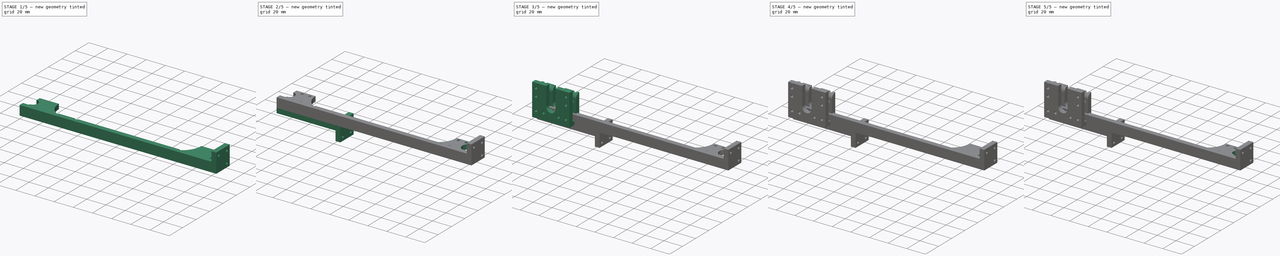
[diagram: build sequence overview — one tinted view per stage of 5, left to right]
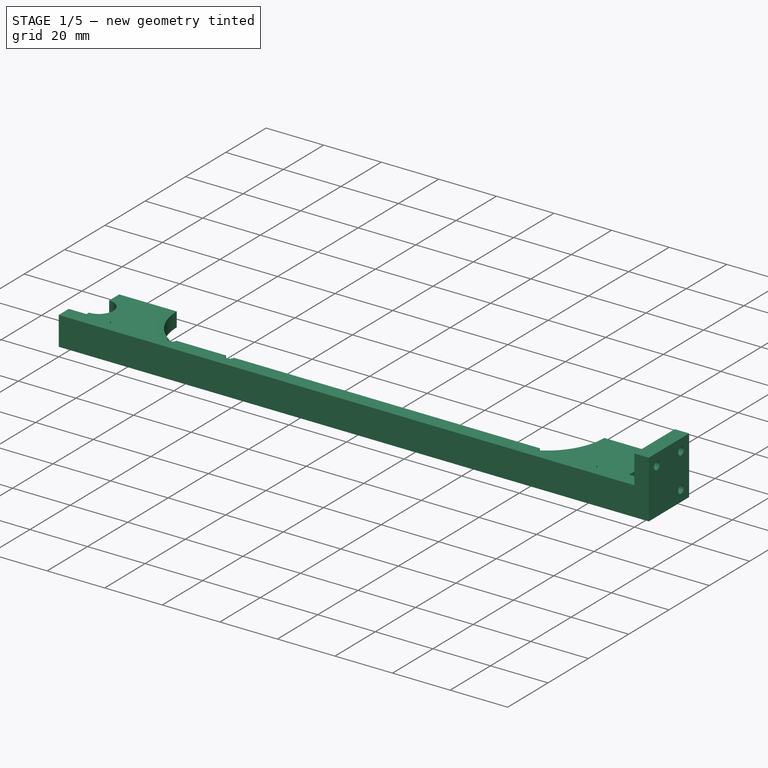
[diagram: stage 1 of 5 — iso view after this stage's code; geometry added in this stage tinted green]
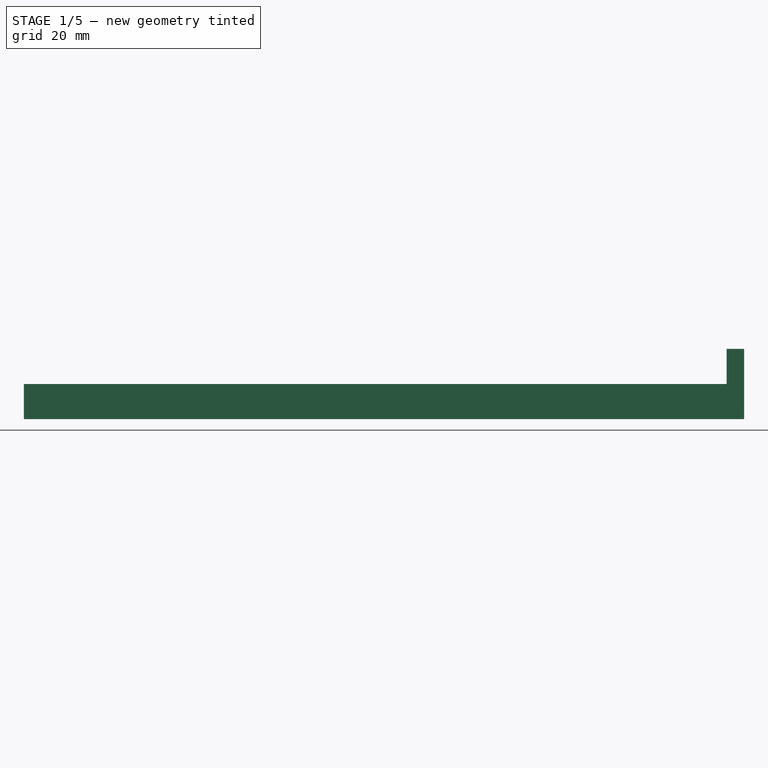
[diagram: stage 1 of 5 — front view after this stage's code; geometry added in this stage tinted green]
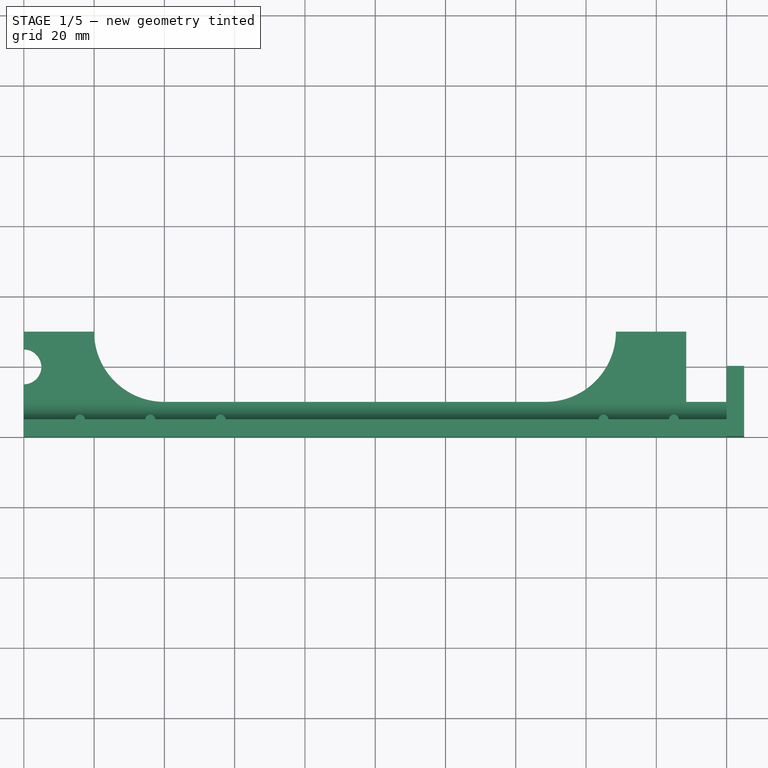
[diagram: stage 1 of 5 — top view after this stage's code; geometry added in this stage tinted green]
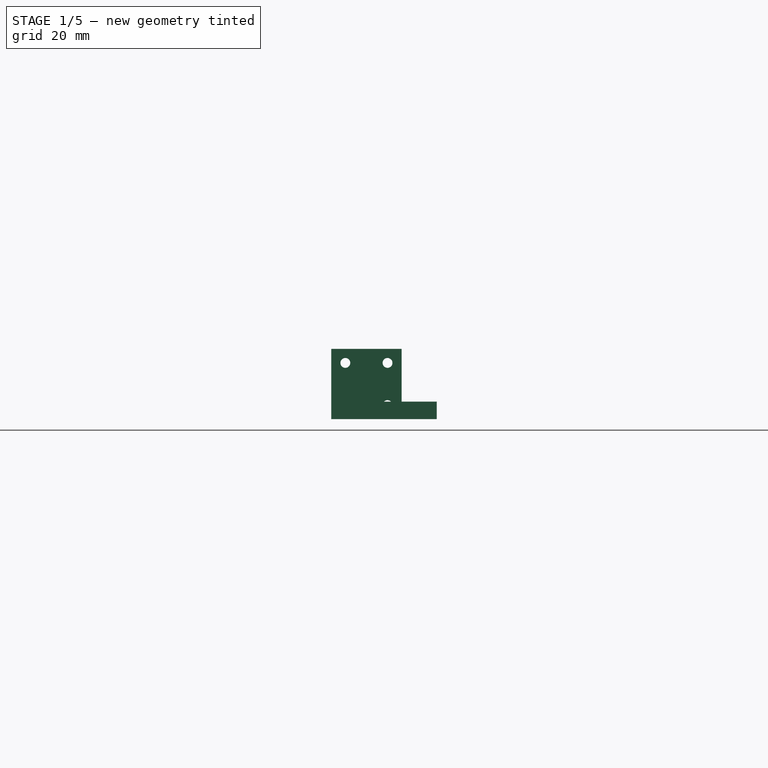
[diagram: stage 1 of 5 — right view after this stage's code; geometry added in this stage tinted green]
FCSTD DOCUMENT  (FreeCAD 0.20R29177 +426 (Git))
Label: kitchenCupHolderLineSupport
License: All rights reserved
LicenseURL: http://en.wikipedia.org/wiki/All_rights_reserved
objects: Sketcher::SketchObject×36, PartDesign::Pad×22, PartDesign::Pocket×10, PartDesign::Body×8, Spreadsheet::Sheet×1
note: 108 computed .brp shape members not serialized (recipe doc carries the construction recipe); baked Part::Feature solids carry a one-line shape summary decoded from their .brp

FEATURE [PartDesign::Body] Body005  label="Body002Top001Small"
  Group = -> [Sketch023,Pad013,Sketch024,Pad014,Sketch025,Pocket007,Sketch026,Pad015]
  Origin = -> Origin005
  Placement = pos=(-188.5,0,5) rot=(0,1,0;3.14159rad)
  Tip = -> Pad015
  expr: .Placement.Base.x = -Spreadsheet.midHeight
  expr: .Placement.Base.z = Spreadsheet.pad
FEATURE [Sketcher::SketchObject] Sketch029
  FullyConstrained = true
  MapMode = 5
  Placement = pos=(0,0,0) rot=(0.57735,0.57735,0.57735;2.0944rad)
  Support = -> [YZ_Plane006]
  expr: Constraints[5] = Spreadsheet.pad
  expr: Constraints[6] = Spreadsheet.pad
  expr: Constraints[7] = Spreadsheet.pad
  sketch-geometry (3):
    g0: LineSegment StartX=5 StartY=5 StartZ=0 EndX=10 EndY=5 EndZ=0
    g1: LineSegment StartX=5 StartY=10 StartZ=0 EndX=5 EndY=5 EndZ=0
    g2: ArcOfCircle CenterX=10 CenterY=10 CenterZ=0 NormalX=0 NormalY=0 NormalZ=1 AngleXU=0 Radius=5 StartAngle=3.14159 EndAngle=4.71239
  constraints (8):
    c: Coincident(g1,g0)
    c: Horizontal(g0)
    c: Vertical(g1)
    c: Tangent(g2,g1) = -1.5708
    c: Tangent(g0,g2) = -1.5708
    c: DistanceY(g-1,g0) = 5
    c: DistanceX(g-1,g0) = 5
    c: Radius(g2) = 5
FEATURE [Sketcher::SketchObject] Sketch030  label="Sketch003_BaseShape002"
  FullyConstrained = true
  MapMode = 5
  Support = -> [XY_Plane006]
  expr: Constraints[101] = Spreadsheet.screwHoleToEdgeX
  expr: Constraints[102] = Spreadsheet.screwHoleToEdge
  expr: Constraints[103] = Spreadsheet.screwHoleToEdgeX
  expr: Constraints[104] = Spreadsheet.screwHoleToEdge
  expr: Constraints[10] = Spreadsheet.width
  expr: Constraints[110] = Spreadsheet.screwHoleToEdgeX * 2
  expr: Constraints[116] = Spreadsheet.screwHoleToEdgeX * 2
  expr: Constraints[20] = Spreadsheet.RodSupportWidth
  expr: Constraints[21] = Spreadsheet.RodSupportWidth
  expr: Constraints[31] = Spreadsheet.RodSupportWidth
  expr: Constraints[32] = Spreadsheet.RodSupportWidth
  expr: Constraints[34] = Spreadsheet.bigRodR
  expr: Constraints[36] = Spreadsheet.smallRodR
  expr: Constraints[37] = Spreadsheet.RodSupportWidth / 2
  expr: Constraints[41] = Spreadsheet.m3ScrewRTight
  expr: Constraints[49] = Spreadsheet.width / 2
  expr: Constraints[9] = Spreadsheet.midHeight
  sketch-geometry (44):
    g0: LineSegment StartX=0 StartY=0 StartZ=0 EndX=188.5 EndY=0 EndZ=0
    g1: LineSegment StartX=188.5 StartY=0 StartZ=0 EndX=188.5 EndY=10 EndZ=0
    g2: LineSegment StartX=188.5 StartY=10 StartZ=0 EndX=0 EndY=10 EndZ=0
    g3: LineSegment StartX=0 StartY=10 StartZ=0 EndX=0 EndY=0 EndZ=0
    g4: LineSegment StartX=0 StartY=10 StartZ=0 EndX=20 EndY=10 EndZ=0
    g5: LineSegment StartX=20 StartY=10 StartZ=0 EndX=20 EndY=30 EndZ=0
    g6: LineSegment StartX=20 StartY=30 StartZ=0 EndX=0 EndY=30 EndZ=0
    g7: LineSegment StartX=0 StartY=30 StartZ=0 EndX=0 EndY=10 EndZ=0
    g8: LineSegment StartX=20 StartY=10 StartZ=0 EndX=40 EndY=10 EndZ=0
    g9: LineSegment StartX=40 StartY=10 StartZ=0 EndX=40 EndY=30 EndZ=0
    g10: LineSegment StartX=40 StartY=30 StartZ=0 EndX=20 EndY=30 EndZ=0
    g11: LineSegment StartX=20 StartY=30 StartZ=0 EndX=20 EndY=10 EndZ=0
    g12: Circle CenterX=0 CenterY=20 CenterZ=0 NormalX=0 NormalY=0 NormalZ=1 AngleXU=0 Radius=7
    g13: Circle CenterX=0 CenterY=20 CenterZ=0 NormalX=0 NormalY=0 NormalZ=1 AngleXU=0 Radius=5
    g14: LineSegment StartX=0 StartY=20 StartZ=0 EndX=40 EndY=20 EndZ=0
    g15: Circle CenterX=5 CenterY=27 CenterZ=0 NormalX=0 NormalY=0 NormalZ=1 AngleXU=0 Radius=1.4
    g16: LineSegment StartX=5 StartY=27 StartZ=0 EndX=5 EndY=30 EndZ=0
    g17: LineSegment StartX=5 StartY=27 StartZ=0 EndX=5 EndY=13 EndZ=0
    g18: LineSegment StartX=5 StartY=13 StartZ=0 EndX=5 EndY=5 EndZ=0
    g19: LineSegment StartX=5 StartY=5 StartZ=0 EndX=183.5 EndY=5 EndZ=0
    g20: LineSegment StartX=183.5 StartY=5 StartZ=0 EndX=188.5 EndY=5 EndZ=0
    g21: GeomPoint X=94.25 Y=5 Z=0
    g22: GeomPoint X=49.625 Y=5 Z=0
    g23: GeomPoint X=138.875 Y=5 Z=0
    g24: LineSegment StartX=49.625 StartY=5 StartZ=0 EndX=49.625 EndY=0 EndZ=0
    g25: LineSegment StartX=138.875 StartY=5 StartZ=0 EndX=138.875 EndY=0 EndZ=0
    g26: LineSegment StartX=188.5 StartY=10 StartZ=0 EndX=168.5 EndY=10 EndZ=0
    g27: LineSegment StartX=168.5 StartY=10 StartZ=0 EndX=168.5 EndY=30 EndZ=0
    g28: LineSegment StartX=168.5 StartY=30 StartZ=0 EndX=188.5 EndY=30 EndZ=0
    g29: LineSegment StartX=188.5 StartY=30 StartZ=0 EndX=188.5 EndY=10 EndZ=0
    g30: LineSegment StartX=168.5 StartY=30 StartZ=0 EndX=148.5 EndY=30 EndZ=0
    g31: LineSegment StartX=148.5 StartY=30 StartZ=0 EndX=148.5 EndY=10 EndZ=0
    g32: LineSegment StartX=148.5 StartY=10 StartZ=0 EndX=168.5 EndY=10 EndZ=0
    g33: LineSegment StartX=168.5 StartY=10 StartZ=0 EndX=168.5 EndY=30 EndZ=0
    g34: LineSegment StartX=40 StartY=20 StartZ=0 EndX=188.5 EndY=20 EndZ=0
    g35: Circle CenterX=188.5 CenterY=20 CenterZ=0 NormalX=0 NormalY=0 NormalZ=1 AngleXU=0 Radius=7
    g36: Circle CenterX=188.5 CenterY=20 CenterZ=0 NormalX=0 NormalY=0 NormalZ=1 AngleXU=0 Radius=5
    g37: LineSegment StartX=183.5 StartY=5 StartZ=0 EndX=183.5 EndY=27 EndZ=0
    g38: LineSegment StartX=183.5 StartY=27 StartZ=0 EndX=183.5 EndY=30 EndZ=0
    g39: LineSegment StartX=5 StartY=13 StartZ=0 EndX=183.5 EndY=13 EndZ=0
    g40: LineSegment StartX=15 StartY=27 StartZ=0 EndX=15 EndY=13 EndZ=0
    g41: LineSegment StartX=15 StartY=27 StartZ=0 EndX=5 EndY=27 EndZ=0
    g42: LineSegment StartX=183.5 StartY=27 StartZ=0 EndX=173.5 EndY=27 EndZ=0
    g43: LineSegment StartX=173.5 StartY=27 StartZ=0 EndX=173.5 EndY=13 EndZ=0
  constraints (117):
    c: Coincident(g0,g1)
    c: Coincident(g1,g2)
    c: Coincident(g2,g3)
    c: Coincident(g3,g0)
    c: Horizontal(g0)
    c: Horizontal(g2)
    c: Vertical(g1)
    c: Vertical(g3)
    c: Coincident(g0,g-1)
    c: DistanceX(g2,g2) = 188.5
    c: DistanceY(g1,g1) = 10
    c: Coincident(g4,g5)
    c: Coincident(g5,g6)
    c: Coincident(g6,g7)
    c: Coincident(g7,g4)
    c: Horizontal(g4)
    c: Horizontal(g6)
    c: Vertical(g5)
    c: Vertical(g7)
    c: Coincident(g4,g2)
    c: DistanceX(g6,g6) = 20
    c: DistanceY(g5,g5) = 20
    c: Coincident(g8,g9)
    c: Coincident(g9,g10)
    c: Coincident(g10,g11)
    c: Coincident(g11,g8)
    c: Horizontal(g8)
    c: Horizontal(g10)
    c: Vertical(g9)
    c: Vertical(g11)
    c: Coincident(g8,g4)
    c: DistanceX(g10,g10) = 20
    c: DistanceY(g9,g9) = 20
    c: PointOnObject(g12,g7)
    c: Radius(g12) = 7
    c: Coincident(g13,g12)
    c: Radius(g13) = 5
    c: DistanceY(g12,g6) = 10
    c: Coincident(g14,g12)
    c: PointOnObject(g14,g9)
    c: Horizontal(g14)
    c: Radius(g15) = 1.4
    c: Coincident(g16,g15)
    c: PointOnObject(g16,g6)
    c: Vertical(g16)
    c: Coincident(g17,g15)
    c: Symmetric(g15,g17,g14)
    c: Coincident(g18,g17)
    c: Vertical(g18)
    c: DistanceY(g0,g18) = 5
    c: Coincident(g19,g18)
    c: Horizontal(g19)
    c: Coincident(g20,g19)
    c: PointOnObject(g20,g1)
    c: Horizontal(g20)
    c: Symmetric(g18,g19,g21)
    c: Symmetric(g18,g21,g22)
    c: Symmetric(g21,g19,g23)
    c: Coincident(g24,g22)
    c: PointOnObject(g24,g0)
    c: Vertical(g24)
    c: Coincident(g25,g23)
    c: PointOnObject(g25,g0)
    c: Vertical(g25)
    c: Coincident(g26,g27)
    c: Coincident(g27,g28)
    c: Coincident(g28,g29)
    c: Coincident(g29,g26)
    c: Horizontal(g26)
    c: Horizontal(g28)
    c: Vertical(g27)
    c: Vertical(g29)
    c: Coincident(g26,g1)
    c: Equal(g28,g10)
    c: Equal(g27,g9)
    c: Coincident(g30,g31)
    c: Coincident(g31,g32)
    c: Coincident(g32,g33)
    c: Coincident(g33,g30)
    c: Horizontal(g30)
    c: Horizontal(g32)
    c: Vertical(g31)
    c: Vertical(g33)
    c: Coincident(g30,g27)
    c: PointOnObject(g31,g2)
    c: Equal(g30,g10)
    c: Coincident(g34,g14)
    c: PointOnObject(g34,g29)
    c: Horizontal(g34)
    c: Coincident(g35,g34)
    c: Coincident(g36,g34)
    c: Equal(g13,g36)
    c: Equal(g35,g12)
    c: Coincident(g37,g19)
    c: Vertical(g37)
    c: Coincident(g38,g37)
    c: PointOnObject(g38,g28)
    c: Vertical(g38)
    c: Coincident(g39,g17)
    c: PointOnObject(g39,g37)
    c: Horizontal(g39)
    c: DistanceX(g6,g16) = 5
    c: DistanceY(g15,g6) = 3
    c: DistanceX(g38,g28) = 5
    c: DistanceY(g38,g38) = 3
    c: PointOnObject(g40,g39)
    c: Vertical(g40)
    c: Coincident(g41,g40)
    c: Coincident(g41,g15)
    c: Horizontal(g41)
    c: DistanceX(g41,g41) = 10
    c: Coincident(g42,g37)
    c: Horizontal(g42)
    c: Coincident(g43,g42)
    c: PointOnObject(g43,g39)
    c: Vertical(g43)
    c: DistanceX(g42,g42) = 10
FEATURE [Sketcher::SketchObject] Sketch027
  ExternalGeometry = -> [Sketch030]
  FullyConstrained = true
  MapMode = 5
  Support = -> [XY_Plane006]
  expr: Constraints[11] = Spreadsheet.smallRodR
  expr: Constraints[12] = Spreadsheet.RodSupportWidth / 2
  expr: Constraints[14] = Spreadsheet.RodSupportWidth + Spreadsheet.width
  expr: Constraints[17] = Spreadsheet.RodSupportWidth
  expr: Constraints[6] = Spreadsheet.RodSupportWidth
  sketch-geometry (10):
    g0: LineSegment StartX=40 StartY=10 StartZ=0 EndX=148.5 EndY=10 EndZ=0
    g1: LineSegment StartX=188.5 StartY=0 StartZ=0 EndX=0 EndY=0 EndZ=0
    g2: LineSegment StartX=-9e-16 StartY=0 StartZ=0 EndX=-9e-16 EndY=15 EndZ=0
    g3: LineSegment StartX=20 StartY=30 StartZ=0 EndX=0 EndY=30 EndZ=0
    g4: ArcOfCircle CenterX=0 CenterY=20 CenterZ=0 NormalX=0 NormalY=0 NormalZ=1 AngleXU=0 Radius=5 StartAngle=4.71239 EndAngle=7.85398
    g5: LineSegment StartX=0 StartY=25 StartZ=0 EndX=0 EndY=30 EndZ=0
    g6: ArcOfCircle CenterX=40 CenterY=30 CenterZ=0 NormalX=0 NormalY=0 NormalZ=1 AngleXU=0 Radius=20 StartAngle=3.14159 EndAngle=4.71239
    g7: LineSegment StartX=188.5 StartY=30 StartZ=0 EndX=168.5 EndY=30 EndZ=0
    g8: LineSegment StartX=188.5 StartY=0 StartZ=0 EndX=188.5 EndY=30 EndZ=0
    g9: ArcOfCircle CenterX=148.5 CenterY=30 CenterZ=0 NormalX=0 NormalY=0 NormalZ=1 AngleXU=0 Radius=20 StartAngle=4.71239 EndAngle=6.28319
  constraints (26):
    c: Coincident(g1,g2)
    c: Horizontal(g0)
    c: Vertical(g2)
    c: PointOnObject(g5,g-2)
    c: Horizontal(g3)
    c: Coincident(g5,g3)
    c: DistanceX(g3,g3) = 20
    c: PointOnObject(g4,g2)
    c: Coincident(g2,g4)
    c: Coincident(g5,g4)
    c: Vertical(g5)
    c: Radius(g4) = 5
    c: DistanceY(g4,g3) = 10
    c: Coincident(g1,g-1)
    c: DistanceY(g1,g6) = 30
    c: Tangent(g6,g0) = -1.5708
    c: Coincident(g6,g3)
    c: DistanceY(g-3,g3) = 20
    c: Coincident(g8,g1)
    c: Coincident(g8,g7)
    c: Coincident(g1,g-3)
    c: Coincident(g7,g-5)
    c: Coincident(g9,g-6)
    c: Tangent(g9,g0) = -1.5708
    c: Coincident(g7,g9)
    c: Coincident(g7,g-5)
FEATURE [PartDesign::Pad] Pad016
  Direction = (0,0,1)
  Length = 5
  Length2 = 10
  Profile = -> Sketch027
  ReferenceAxis = -> Sketch027 [N_Axis]
  Type = 0
  expr: Length = Spreadsheet.pad
FEATURE [PartDesign::Body] Body006  label="Body001Mid001Small"
  Group = -> [Sketch027,Pad016,Sketch028,Pad017,Sketch029,Pad018,Sketch030,Sketch031,Pocket008]
  Origin = -> Origin006
  Placement = pos=(-188.5,0,0) rot=(0,0,1;0rad)
  Tip = -> Pocket008
  expr: .Placement.Base.x = -Spreadsheet.midHeight
  expr: .Placement.Base.z = 0
FEATURE [Sketcher::SketchObject] Sketch032
  FullyConstrained = true
  MapMode = 5
  Support = -> [XY_Plane007]
  expr: Constraints[12] = Spreadsheet.RodSupportWidth
  expr: Constraints[17] = Spreadsheet.bigRodR
  expr: Constraints[18] = Spreadsheet.RodSupportWidth / 2
  expr: Constraints[20] = Spreadsheet.RodSupportWidth + Spreadsheet.width
  expr: Constraints[23] = Spreadsheet.RodSupportWidth
  expr: Constraints[8] = Spreadsheet.bottomHeight
  expr: Constraints[9] = Spreadsheet.width
  sketch-geometry (8):
    g0: LineSegment StartX=40 StartY=10 StartZ=0 EndX=205 EndY=10 EndZ=0
    g1: LineSegment StartX=205 StartY=10 StartZ=0 EndX=205 EndY=0 EndZ=0
    g2: LineSegment StartX=205 StartY=0 StartZ=0 EndX=2.84e-14 EndY=0 EndZ=0
    g3: LineSegment StartX=1.74e-14 StartY=0 StartZ=0 EndX=1.74e-14 EndY=13 EndZ=0
    g4: LineSegment StartX=20 StartY=30 StartZ=0 EndX=0 EndY=30 EndZ=0
    g5: ArcOfCircle CenterX=0 CenterY=20 CenterZ=0 NormalX=0 NormalY=0 NormalZ=1 AngleXU=0 Radius=7 StartAngle=4.71239 EndAngle=7.85398
    g6: LineSegment StartX=0 StartY=27 StartZ=0 EndX=0 EndY=30 EndZ=0
    g7: ArcOfCircle CenterX=40 CenterY=30 CenterZ=0 NormalX=0 NormalY=0 NormalZ=1 AngleXU=0 Radius=20 StartAngle=3.14159 EndAngle=4.71239
  constraints (24):
    c: Coincident(g0,g1)
    c: Coincident(g1,g2)
    c: Coincident(g2,g3)
    c: Horizontal(g0)
    c: Horizontal(g2)
    c: Vertical(g1)
    c: Vertical(g3)
    c: PointOnObject(g6,g-2)
    c: DistanceX(g2,g2) = 205
    c: DistanceY(g1,g1) = 10
    c: Horizontal(g4)
    c: Coincident(g6,g4)
    c: DistanceX(g4,g4) = 20
    c: PointOnObject(g5,g3)
    c: Coincident(g3,g5)
    c: Coincident(g6,g5)
    c: Vertical(g6)
    c: Radius(g5) = 7
    c: DistanceY(g5,g4) = 10
    c: Coincident(g2,g-1)
    c: DistanceY(g2,g7) = 30
    c: Tangent(g7,g0) = -1.5708
    c: Coincident(g7,g4)
    c: DistanceY(g0,g4) = 20
FEATURE [PartDesign::Pad] Pad019
  Direction = (0,0,1)
  Length = 5
  Length2 = 10
  Profile = -> Sketch032
  ReferenceAxis = -> Sketch032 [N_Axis]
  Type = 0
  expr: Length = Spreadsheet.pad
FEATURE [Sketcher::SketchObject] Sketch033
  AttachmentOffset = pos=(0,0,5) rot=(0,0,1;0rad)
  FullyConstrained = true
  MapMode = 5
  Placement = pos=(0,0,5) rot=(0,0,1;0rad)
  Support = -> [XY_Plane007]
  expr: .AttachmentOffset.Base.z = Spreadsheet.pad
  expr: Constraints[10] = Spreadsheet.bottomHeight
  expr: Constraints[9] = Spreadsheet.pad
  sketch-geometry (4):
    g0: LineSegment StartX=0 StartY=0 StartZ=0 EndX=205 EndY=0 EndZ=0
    g1: LineSegment StartX=205 StartY=0 StartZ=0 EndX=205 EndY=5 EndZ=0
    g2: LineSegment StartX=205 StartY=5 StartZ=0 EndX=0 EndY=5 EndZ=0
    g3: LineSegment StartX=0 StartY=5 StartZ=0 EndX=0 EndY=0 EndZ=0
  constraints (11):
    c: Coincident(g0,g1)
    c: Coincident(g1,g2)
    c: Coincident(g2,g3)
    c: Coincident(g3,g0)
    c: Horizontal(g0)
    c: Horizontal(g2)
    c: Vertical(g1)
    c: Vertical(g3)
    c: Coincident(g0,g-1)
    c: DistanceY(g1,g1) = 5
    c: DistanceX(g2,g2) = 205
FEATURE [PartDesign::Pad] Pad020
  BaseFeature = -> Pad019
  Direction = (0,0,1)
  Length = 5
  Length2 = 10
  Profile = -> Sketch033
  ReferenceAxis = -> Sketch033 [N_Axis]
  Type = 0
  expr: Length = Spreadsheet.pad
FEATURE [Sketcher::SketchObject] Sketch034
  FullyConstrained = true
  MapMode = 5
  Placement = pos=(0,0,0) rot=(0.57735,0.57735,0.57735;2.0944rad)
  Support = -> [YZ_Plane007]
  expr: Constraints[5] = Spreadsheet.pad
  expr: Constraints[6] = Spreadsheet.pad
  expr: Constraints[7] = Spreadsheet.pad
  sketch-geometry (3):
    g0: LineSegment StartX=5 StartY=5 StartZ=0 EndX=10 EndY=5 EndZ=0
    g1: LineSegment StartX=5 StartY=10 StartZ=0 EndX=5 EndY=5 EndZ=0
    g2: ArcOfCircle CenterX=10 CenterY=10 CenterZ=0 NormalX=0 NormalY=0 NormalZ=1 AngleXU=0 Radius=5 StartAngle=3.14159 EndAngle=4.71239
  constraints (8):
    c: Coincident(g1,g0)
    c: Horizontal(g0)
    c: Vertical(g1)
    c: Tangent(g2,g1) = -1.5708
    c: Tangent(g0,g2) = -1.5708
    c: DistanceY(g-1,g0) = 5
    c: DistanceX(g-1,g0) = 5
    c: Radius(g2) = 5
FEATURE [PartDesign::Pad] Pad021
  BaseFeature = -> Pad020
  Direction = (1,-2e-16,3e-16)
  Length = 205
  Length2 = 10
  Profile = -> Sketch034
  ReferenceAxis = -> Sketch034 [N_Axis]
  Type = 0
  expr: Length = Spreadsheet.bottomHeight
FEATURE [Sketcher::SketchObject] Sketch035  label="Sketch003_BaseShape003"
  FullyConstrained = false
  MapMode = 5
  Support = -> [XY_Plane007]
  expr: Constraints[10] = Spreadsheet.width
  expr: Constraints[20] = Spreadsheet.RodSupportWidth
  expr: Constraints[21] = Spreadsheet.RodSupportWidth
  expr: Constraints[31] = Spreadsheet.RodSupportWidth
  expr: Constraints[32] = Spreadsheet.RodSupportWidth
  expr: Constraints[34] = Spreadsheet.bigRodR
  expr: Constraints[36] = Spreadsheet.smallRodR
  expr: Constraints[37] = Spreadsheet.RodSupportWidth / 2
  expr: Constraints[46] = Spreadsheet.screwHoleToEdgeX
  expr: Constraints[49] = Spreadsheet.width / 2
  expr: Constraints[9] = Spreadsheet.bottomHeight
  sketch-geometry (26):
    g0: LineSegment StartX=0 StartY=0 StartZ=0 EndX=205 EndY=0 EndZ=0
    g1: LineSegment StartX=205 StartY=0 StartZ=0 EndX=205 EndY=10 EndZ=0
    g2: LineSegment StartX=205 StartY=10 StartZ=0 EndX=0 EndY=10 EndZ=0
    g3: LineSegment StartX=0 StartY=10 StartZ=0 EndX=0 EndY=0 EndZ=0
    g4: LineSegment StartX=0 StartY=10 StartZ=0 EndX=20 EndY=10 EndZ=0
    g5: LineSegment StartX=20 StartY=10 StartZ=0 EndX=20 EndY=30 EndZ=0
    g6: LineSegment StartX=20 StartY=30 StartZ=0 EndX=0 EndY=30 EndZ=0
    g7: LineSegment StartX=0 StartY=30 StartZ=0 EndX=0 EndY=10 EndZ=0
    g8: LineSegment StartX=20 StartY=10 StartZ=0 EndX=40 EndY=10 EndZ=0
    g9: LineSegment StartX=40 StartY=10 StartZ=0 EndX=40 EndY=30 EndZ=0
    g10: LineSegment StartX=40 StartY=30 StartZ=0 EndX=20 EndY=30 EndZ=0
    g11: LineSegment StartX=20 StartY=30 StartZ=0 EndX=20 EndY=10 EndZ=0
    g12: Circle CenterX=0 CenterY=20 CenterZ=0 NormalX=0 NormalY=0 NormalZ=1 AngleXU=0 Radius=7
    g13: Circle CenterX=0 CenterY=20 CenterZ=0 NormalX=0 NormalY=0 NormalZ=1 AngleXU=0 Radius=5
    g14: LineSegment StartX=0 StartY=20 StartZ=0 EndX=40 EndY=20 EndZ=0
    g15: LineSegment StartX=5 StartY=28.0263 StartZ=0 EndX=0 EndY=28.0263 EndZ=0
    g16: LineSegment StartX=5 StartY=25 StartZ=0 EndX=5 EndY=30 EndZ=0
    g17: LineSegment StartX=5 StartY=25 StartZ=0 EndX=5 EndY=15 EndZ=0
    g18: LineSegment StartX=5 StartY=15 StartZ=0 EndX=5 EndY=5 EndZ=0
    g19: LineSegment StartX=5 StartY=5 StartZ=0 EndX=200 EndY=5 EndZ=0
    g20: LineSegment StartX=200 StartY=5 StartZ=0 EndX=205 EndY=5 EndZ=0
    g21: GeomPoint X=102.5 Y=5 Z=0
    g22: GeomPoint X=53.75 Y=5 Z=0
    g23: GeomPoint X=151.25 Y=5 Z=0
    g24: LineSegment StartX=53.75 StartY=5 StartZ=0 EndX=53.75 EndY=0 EndZ=0
    g25: LineSegment StartX=151.25 StartY=5 StartZ=0 EndX=151.25 EndY=0 EndZ=0
  constraints (65):
    c: Coincident(g0,g1)
    c: Coincident(g1,g2)
    c: Coincident(g2,g3)
    c: Coincident(g3,g0)
    c: Horizontal(g0)
    c: Horizontal(g2)
    c: Vertical(g1)
    c: Vertical(g3)
    c: Coincident(g0,g-1)
    c: DistanceX(g2,g2) = 205
    c: DistanceY(g1,g1) = 10
    c: Coincident(g4,g5)
    c: Coincident(g5,g6)
    c: Coincident(g6,g7)
    c: Coincident(g7,g4)
    c: Horizontal(g4)
    c: Horizontal(g6)
    c: Vertical(g5)
    c: Vertical(g7)
    c: Coincident(g4,g2)
    c: DistanceX(g6,g6) = 20
    c: DistanceY(g5,g5) = 20
    c: Coincident(g8,g9)
    c: Coincident(g9,g10)
    c: Coincident(g10,g11)
    c: Coincident(g11,g8)
    c: Horizontal(g8)
    c: Horizontal(g10)
    c: Vertical(g9)
    c: Vertical(g11)
    c: Coincident(g8,g4)
    c: DistanceX(g10,g10) = 20
    c: DistanceY(g9,g9) = 20
    c: PointOnObject(g12,g7)
    c: Radius(g12) = 7
    c: Coincident(g13,g12)
    c: Radius(g13) = 5
    c: DistanceY(g12,g6) = 10
    c: Coincident(g14,g12)
    c: PointOnObject(g14,g9)
    c: Horizontal(g14)
    c: PointOnObject(g15,g7)
    c: Horizontal(g15)
    c: PointOnObject(g16,g6)
    c: Vertical(g16)
    c: Equal(g16,g15)
    c: DistanceX(g15,g15) = 5
    c: Coincident(g18,g17)
    c: Vertical(g18)
    c: DistanceY(g0,g18) = 5
    c: Coincident(g19,g18)
    c: Horizontal(g19)
    c: Coincident(g20,g19)
    c: PointOnObject(g20,g1)
    c: Horizontal(g20)
    c: Equal(g20,g15)
    c: Symmetric(g18,g19,g21)
    c: Symmetric(g18,g21,g22)
    c: Symmetric(g21,g19,g23)
    c: Coincident(g24,g22)
    c: PointOnObject(g24,g0)
    c: Vertical(g24)
    c: Coincident(g25,g23)
    c: PointOnObject(g25,g0)
    c: Vertical(g25)
FEATURE [Sketcher::SketchObject] Sketch036
  FullyConstrained = true
  MapMode = 5
  Support = -> [XY_Plane007]
  expr: Constraints[14] = Spreadsheet.totalRodSideSupportWidth
  expr: Constraints[16] = Spreadsheet.m3ScrewRTight
  expr: Constraints[18] = Spreadsheet.toLastScrewHole
  expr: Constraints[19] = Spreadsheet.toSecondScrewHole
  expr: Constraints[21] = Spreadsheet.screwInBetween
  expr: Constraints[37] = Spreadsheet.onLongSupportHoleBetween
  expr: Constraints[38] = Spreadsheet.onLongSupportHoleBetween
  expr: Constraints[3] = Spreadsheet.toBaseScrewHole
  expr: Constraints[41] = Spreadsheet.bottomHeight
  expr: Constraints[46] = Spreadsheet.onLongSupportHoleBetween
  expr: Constraints[47] = Spreadsheet.onLongSupportHoleBetween
  expr: Constraints[4] = Spreadsheet.screwHoleToEdgeXBigHoleSide
  sketch-geometry (20):
    g0: Circle CenterX=8 CenterY=27 CenterZ=0 NormalX=0 NormalY=0 NormalZ=1 AngleXU=0 Radius=1.4
    g1: Circle CenterX=8 CenterY=5 CenterZ=0 NormalX=0 NormalY=0 NormalZ=1 AngleXU=0 Radius=1.4
    g2: LineSegment StartX=8 StartY=27 StartZ=0 EndX=8 EndY=5 EndZ=0
    g3: LineSegment StartX=8 StartY=27 StartZ=0 EndX=16 EndY=27 EndZ=0
    g4: LineSegment StartX=16 StartY=27 StartZ=0 EndX=16 EndY=13 EndZ=0
    g5: LineSegment StartX=16 StartY=13 StartZ=0 EndX=8 EndY=13 EndZ=0
    g6: LineSegment StartX=0 StartY=0 StartZ=0 EndX=0 EndY=30 EndZ=0
    g7: Circle CenterX=8 CenterY=13 CenterZ=0 NormalX=0 NormalY=0 NormalZ=1 AngleXU=0 Radius=1.4
    g8: Circle CenterX=16 CenterY=27 CenterZ=0 NormalX=0 NormalY=0 NormalZ=1 AngleXU=0 Radius=1.4
    g9: Circle CenterX=16 CenterY=13 CenterZ=0 NormalX=0 NormalY=0 NormalZ=1 AngleXU=0 Radius=1.4
    g10: LineSegment StartX=16 StartY=13 StartZ=0 EndX=16 EndY=5 EndZ=0
    g11: LineSegment StartX=8 StartY=5 StartZ=0 EndX=16 EndY=5 EndZ=0
    g12: Circle CenterX=16 CenterY=5 CenterZ=0 NormalX=0 NormalY=0 NormalZ=1 AngleXU=0 Radius=1.4
    g13: LineSegment StartX=16 StartY=5 StartZ=0 EndX=36 EndY=5 EndZ=0
    g14: LineSegment StartX=36 StartY=5 StartZ=0 EndX=56 EndY=5 EndZ=0
    g15: LineSegment StartX=56 StartY=5 StartZ=0 EndX=205 EndY=5 EndZ=0
    g16: Circle CenterX=36 CenterY=5 CenterZ=0 NormalX=0 NormalY=0 NormalZ=1 AngleXU=0 Radius=1.4
    g17: Circle CenterX=56 CenterY=5 CenterZ=0 NormalX=0 NormalY=0 NormalZ=1 AngleXU=0 Radius=1.4
    g18: Circle CenterX=185 CenterY=5 CenterZ=0 NormalX=0 NormalY=0 NormalZ=1 AngleXU=0 Radius=1.4
    g19: Circle CenterX=165 CenterY=5 CenterZ=0 NormalX=0 NormalY=0 NormalZ=1 AngleXU=0 Radius=1.4
  constraints (52):
    c: Coincident(g2,g0)
    c: Coincident(g2,g1)
    c: Vertical(g2)
    c: DistanceY(g-1,g1) = 5
    c: DistanceX(g-1,g0) = 8
    c: Coincident(g3,g0)
    c: Horizontal(g3)
    c: Coincident(g4,g3)
    c: Vertical(g4)
    c: Coincident(g5,g4)
    c: PointOnObject(g5,g2)
    c: Horizontal(g5)
    c: Coincident(g6,g-1)
    c: PointOnObject(g6,g-2)
    c: DistanceY(g6,g6) = 30
    c: Equal(g1,g0)
    c: Radius(g0) = 1.4
    c: Equal(g7,g0)
    c: DistanceY(g6,g0) = 27
    c: DistanceY(g6,g7) = 13
    c: Coincident(g5,g7)
    c: DistanceX(g3,g3) = 8
    c: Coincident(g8,g3)
    c: Coincident(g9,g4)
    c: Equal(g8,g0)
    c: Equal(g9,g0)
    c: Coincident(g10,g9)
    c: Vertical(g10)
    c: Coincident(g11,g1)
    c: Horizontal(g11)
    c: Coincident(g10,g11)
    c: Coincident(g12,g10)
    c: Equal(g12,g7)
    c: Coincident(g13,g12)
    c: Horizontal(g13)
    c: Coincident(g14,g13)
    c: Horizontal(g14)
    c: DistanceX(g13,g13) = 20
    c: DistanceX(g14,g14) = 20
    c: Coincident(g15,g14)
    c: Horizontal(g15)
    c: DistanceX(g6,g15) = 205
    c: Coincident(g16,g13)
    c: Coincident(g17,g14)
    c: PointOnObject(g18,g15)
    c: PointOnObject(g19,g15)
    c: DistanceX(g18,g15) = 20
    c: DistanceX(g19,g18) = 20
    c: Equal(g16,g0)
    c: Equal(g17,g0)
    c: Equal(g19,g0)
    c: Equal(g18,g0)
FEATURE [PartDesign::Pocket] Pocket009
  BaseFeature = -> Pad021
  Direction = (0,0,-1)
  Length = 5
  Length2 = 5
  Midplane = true
  Profile = -> Sketch036
  ReferenceAxis = -> Sketch036 [N_Axis]
  Type = 1
FEATURE [Sketcher::SketchObject] Sketch037
  AttachmentOffset = pos=(0,0,205) rot=(0,0,1;0rad)
  FullyConstrained = false
  MapMode = 5
  Placement = pos=(205,-4.55e-14,4.55e-14) rot=(0.57735,0.57735,0.57735;2.0944rad)
  Support = -> [YZ_Plane007]
  expr: .AttachmentOffset.Base.z = Spreadsheet.bottomHeight
  expr: Constraints[57] = Spreadsheet.m3ScrewRTight
  expr: Constraints[9] = Spreadsheet.footerSize
  sketch-geometry (25):
    g0: LineSegment StartX=0 StartY=0 StartZ=0 EndX=20 EndY=0 EndZ=0
    g1: LineSegment StartX=20 StartY=0 StartZ=0 EndX=20 EndY=20 EndZ=0
    g2: LineSegment StartX=20 StartY=20 StartZ=0 EndX=0 EndY=20 EndZ=0
    g3: LineSegment StartX=0 StartY=20 StartZ=0 EndX=0 EndY=0 EndZ=0
    g4: LineSegment StartX=8 StartY=12 StartZ=0 EndX=12 EndY=12 EndZ=0
    g5: LineSegment StartX=12 StartY=12 StartZ=0 EndX=12 EndY=8 EndZ=0
    g6: LineSegment StartX=12 StartY=8 StartZ=0 EndX=8 EndY=8 EndZ=0
    g7: LineSegment StartX=8 StartY=8 StartZ=0 EndX=8 EndY=12 EndZ=0
    g8: LineSegment StartX=8 StartY=12 StartZ=0 EndX=8 EndY=20 EndZ=0
    g9: LineSegment StartX=12 StartY=8 StartZ=0 EndX=20 EndY=8 EndZ=0
    g10: LineSegment StartX=8 StartY=8 StartZ=0 EndX=0 EndY=8 EndZ=0
    g11: LineSegment StartX=8 StartY=8 StartZ=0 EndX=8 EndY=0 EndZ=0
    g12: LineSegment StartX=8 StartY=16 StartZ=0 EndX=0 EndY=16 EndZ=0
    g13: LineSegment StartX=12 StartY=12 StartZ=0 EndX=12 EndY=20 EndZ=0
    g14: LineSegment StartX=12 StartY=16 StartZ=0 EndX=20 EndY=16 EndZ=0
    g15: LineSegment StartX=8 StartY=16 StartZ=0 EndX=12 EndY=16 EndZ=0
    g16: LineSegment StartX=16 StartY=8 StartZ=0 EndX=16 EndY=20 EndZ=0
    g17: LineSegment StartX=12 StartY=10 StartZ=0 EndX=20 EndY=10 EndZ=0
    g18: LineSegment StartX=4 StartY=16 StartZ=0 EndX=4 EndY=20 EndZ=0
    g19: Circle CenterX=4 CenterY=16 CenterZ=0 NormalX=0 NormalY=0 NormalZ=1 AngleXU=0 Radius=1.4
    g20: Circle CenterX=16 CenterY=16 CenterZ=0 NormalX=0 NormalY=0 NormalZ=1 AngleXU=0 Radius=1.4
    g21: LineSegment StartX=16 StartY=8 StartZ=0 EndX=16 EndY=0 EndZ=0
    g22: LineSegment StartX=20 StartY=4 StartZ=0 EndX=16 EndY=4 EndZ=0
    g23: Circle CenterX=16 CenterY=4 CenterZ=0 NormalX=0 NormalY=0 NormalZ=1 AngleXU=0 Radius=1.4
    g24: LineSegment StartX=9.84462 StartY=12 StartZ=0 EndX=9.84462 EndY=16 EndZ=0
  constraints (72):
    c: Coincident(g0,g1)
    c: Coincident(g1,g2)
    c: Coincident(g2,g3)
    c: Coincident(g3,g0)
    c: Horizontal(g0)
    c: Horizontal(g2)
    c: Vertical(g1)
    c: Vertical(g3)
    c: Coincident(g0,g-1)
    c: DistanceX(g2,g2) = 20
    c: Equal(g2,g1)
    c: Coincident(g4,g5)
    c: Coincident(g5,g6)
    c: Coincident(g6,g7)
    c: Coincident(g7,g4)
    c: Horizontal(g4)
    c: Horizontal(g6)
    c: Vertical(g5)
    c: Vertical(g7)
    c: Coincident(g8,g4)
    c: PointOnObject(g8,g2)
    c: Vertical(g8)
    c: Coincident(g9,g5)
    c: PointOnObject(g9,g1)
    c: Horizontal(g9)
    c: Equal(g4,g7)
    c: Coincident(g10,g6)
    c: PointOnObject(g10,g3)
    c: Horizontal(g10)
    c: Coincident(g11,g6)
    c: PointOnObject(g11,g0)
    c: Vertical(g11)
    c: Equal(g8,g10)
    c: PointOnObject(g12,g3)
    c: Horizontal(g12)
    c: Symmetric(g8,g4,g12)
    c: Coincident(g13,g4)
    c: PointOnObject(g13,g2)
    c: Vertical(g13)
    c: PointOnObject(g14,g13)
    c: PointOnObject(g14,g1)
    c: Horizontal(g14)
    c: Coincident(g15,g14)
    c: Horizontal(g15)
    c: PointOnObject(g16,g2)
    c: Vertical(g16)
    c: Symmetric(g5,g9,g16)
    c: PointOnObject(g17,g1)
    c: Horizontal(g17)
    c: Symmetric(g4,g5,g17)
    c: PointOnObject(g18,g2)
    c: Vertical(g18)
    c: Symmetric(g12,g12,g18)
    c: Coincident(g19,g18)
    c: PointOnObject(g20,g14)
    c: PointOnObject(g20,g16)
    c: Equal(g19,g20)
    c: Radius(g19) = 1.4
    c: Coincident(g12,g15)
    c: Coincident(g21,g16)
    c: PointOnObject(g21,g0)
    c: Vertical(g21)
    c: PointOnObject(g22,g1)
    c: Horizontal(g22)
    c: Symmetric(g16,g21,g22)
    c: Coincident(g23,g22)
    c: Equal(g20,g23)
    c: Equal(g11,g10)
    c: PointOnObject(g24,g4)
    c: PointOnObject(g24,g15)
    c: Vertical(g24)
    c: Equal(g24,g4)
FEATURE [PartDesign::Pad] Pad022
  BaseFeature = -> Pocket009
  Direction = (1,-2e-16,3e-16)
  Length = 5
  Length2 = 10
  Profile = -> Sketch037
  ReferenceAxis = -> Sketch037 [N_Axis]
  Reversed = true
  Type = 0
  expr: Length = Spreadsheet.pad
FEATURE [PartDesign::Body] Body007  label="Body007BottomSmall"
  Group = -> [Sketch032,Pad019,Sketch033,Pad020,Sketch034,Pad021,Sketch035,Sketch036,Pocket009,Sketch037,Pad022]
  Origin = -> Origin007
  Tip = -> Pad022
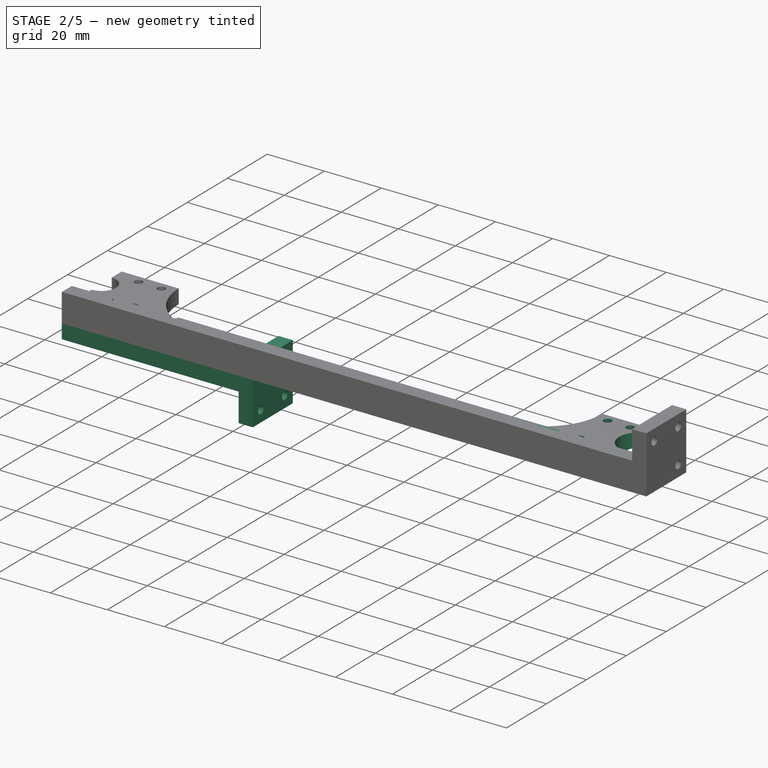
[diagram: stage 2 of 5 — iso view after this stage's code; geometry added in this stage tinted green]
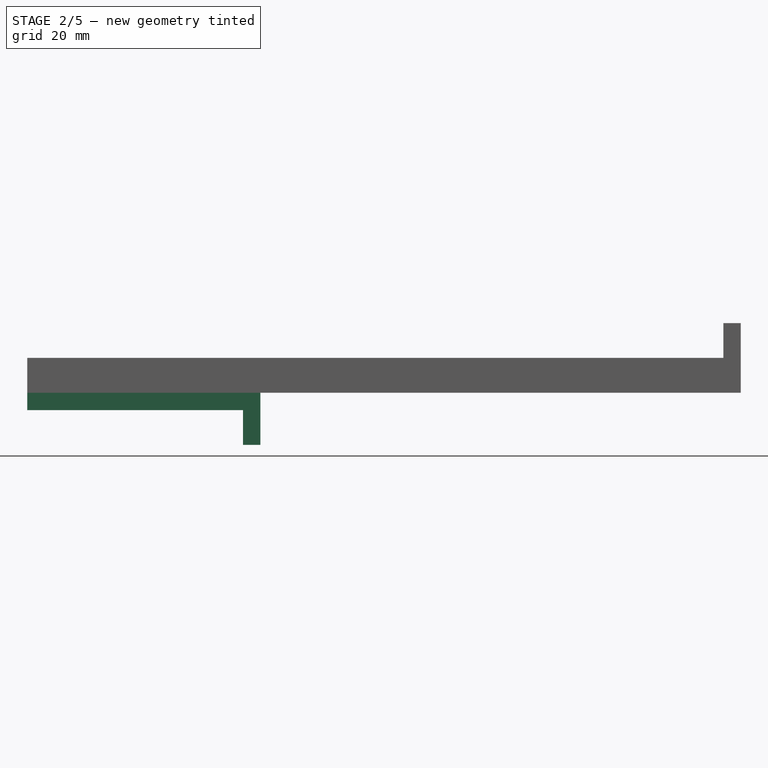
[diagram: stage 2 of 5 — front view after this stage's code; geometry added in this stage tinted green]
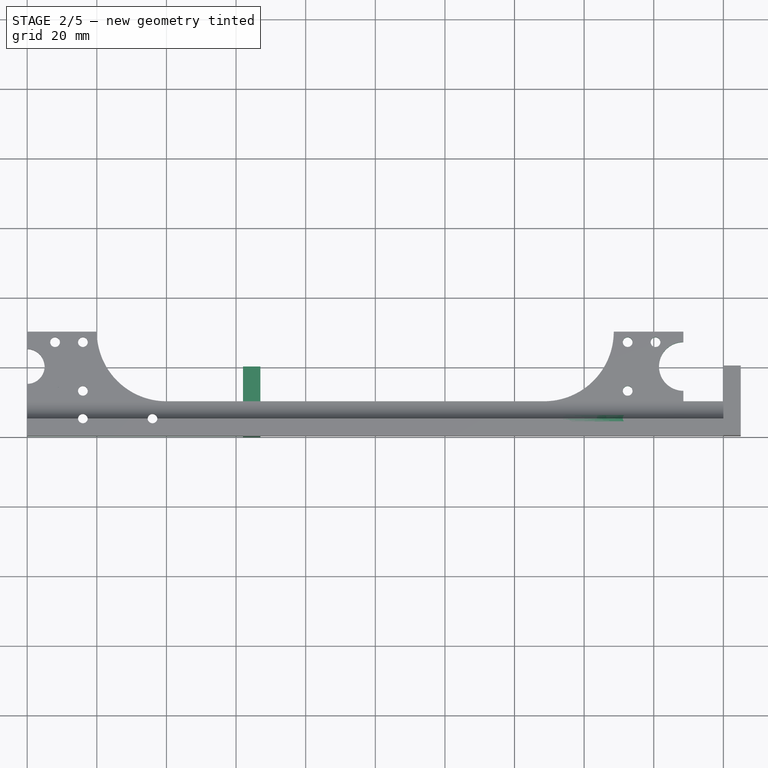
[diagram: stage 2 of 5 — top view after this stage's code; geometry added in this stage tinted green]
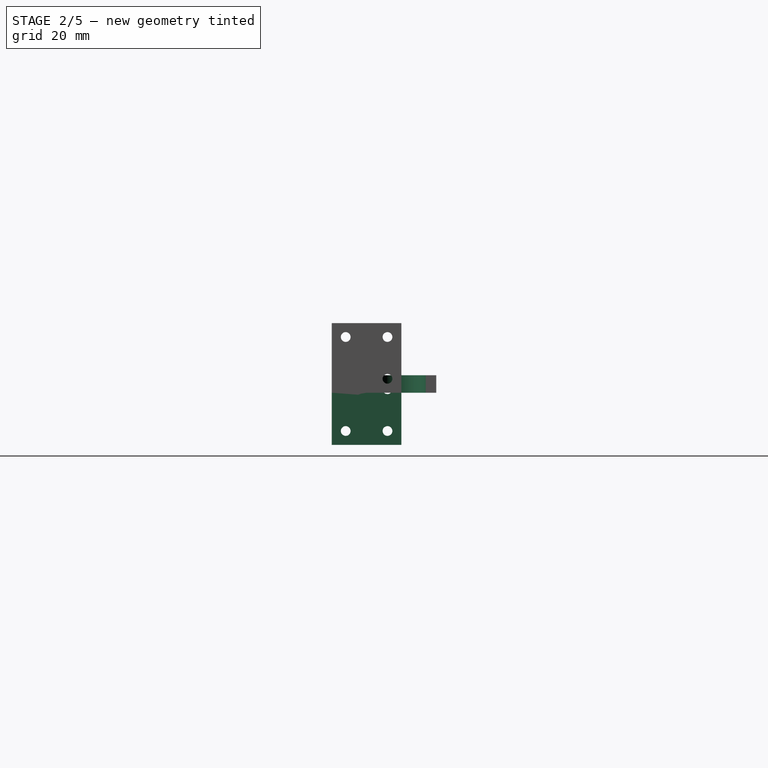
[diagram: stage 2 of 5 — right view after this stage's code; geometry added in this stage tinted green]
FEATURE [PartDesign::Body] Body004  label="Body003RodConnector001Small"
  Group = -> [Sketch020,Pad012,Sketch021,Pocket005,Sketch022,Pocket006]
  Origin = -> Origin004
  Placement = pos=(-20,34,2.5) rot=(1,0,0;1.5708rad)
  Tip = -> Pocket006
  expr: .Placement.Base.x = -Spreadsheet.RodSupportWidth
  expr: .Placement.Base.y = Spreadsheet.connectorTotalDepth
FEATURE [Sketcher::SketchObject] Sketch023
  FullyConstrained = true
  MapMode = 5
  Support = -> [XY_Plane005]
  expr: Constraints[12] = Spreadsheet.RodSupportWidth
  expr: Constraints[17] = Spreadsheet.smallRodR
  expr: Constraints[18] = Spreadsheet.RodSupportWidth / 2
  expr: Constraints[20] = Spreadsheet.RodSupportWidth + Spreadsheet.width
  expr: Constraints[23] = Spreadsheet.RodSupportWidth
  expr: Constraints[8] = Spreadsheet.topHeight
  expr: Constraints[9] = Spreadsheet.width
  sketch-geometry (8):
    g0: LineSegment StartX=40 StartY=10 StartZ=0 EndX=67 EndY=10 EndZ=0
    g1: LineSegment StartX=67 StartY=10 StartZ=0 EndX=67 EndY=0 EndZ=0
    g2: LineSegment StartX=67 StartY=0 StartZ=0 EndX=0 EndY=0 EndZ=0
    g3: LineSegment StartX=0 StartY=0 StartZ=0 EndX=0 EndY=15 EndZ=0
    g4: LineSegment StartX=20 StartY=30 StartZ=0 EndX=1.599e-13 EndY=30 EndZ=0
    g5: ArcOfCircle CenterX=0 CenterY=20 CenterZ=0 NormalX=0 NormalY=0 NormalZ=1 AngleXU=0 Radius=5 StartAngle=4.71239 EndAngle=7.85398
    g6: LineSegment StartX=1.614e-13 StartY=25 StartZ=0 EndX=1.614e-13 EndY=30 EndZ=0
    g7: ArcOfCircle CenterX=40 CenterY=30 CenterZ=0 NormalX=0 NormalY=0 NormalZ=1 AngleXU=0 Radius=20 StartAngle=3.14159 EndAngle=4.71239
  constraints (24):
    c: Coincident(g0,g1)
    c: Coincident(g1,g2)
    c: Coincident(g2,g3)
    c: Horizontal(g0)
    c: Horizontal(g2)
    c: Vertical(g1)
    c: Vertical(g3)
    c: PointOnObject(g6,g-2)
    c: DistanceX(g2,g2) = 67
    c: DistanceY(g1,g1) = 10
    c: Horizontal(g4)
    c: Coincident(g6,g4)
    c: DistanceX(g4,g4) = 20
    c: PointOnObject(g5,g3)
    c: Coincident(g3,g5)
    c: Coincident(g6,g5)
    c: Vertical(g6)
    c: Radius(g5) = 5
    c: DistanceY(g5,g4) = 10
    c: Coincident(g2,g-1)
    c: DistanceY(g2,g7) = 30
    c: Tangent(g7,g0) = -1.5708
    c: Coincident(g7,g4)
    c: DistanceY(g0,g4) = 20
FEATURE [PartDesign::Pad] Pad013
  Direction = (0,0,1)
  Length = 5
  Length2 = 10
  Profile = -> Sketch023
  ReferenceAxis = -> Sketch023 [N_Axis]
  Type = 0
  expr: Length = Spreadsheet.pad
FEATURE [Sketcher::SketchObject] Sketch024
  FullyConstrained = true
  MapMode = 5
  Placement = pos=(0,0,0) rot=(0.57735,0.57735,0.57735;2.0944rad)
  Support = -> [YZ_Plane005]
  expr: Constraints[10] = Spreadsheet.pad
  expr: Constraints[8] = Spreadsheet.pad
  expr: Constraints[9] = Spreadsheet.pad * 2
  sketch-geometry (4):
    g0: LineSegment StartX=10 StartY=0 StartZ=0 EndX=0 EndY=0 EndZ=0
    g1: LineSegment StartX=0 StartY=0 StartZ=0 EndX=0 EndY=-5 EndZ=0
    g2: LineSegment StartX=0 StartY=-5 StartZ=0 EndX=5 EndY=-5 EndZ=0
    g3: ArcOfCircle CenterX=10 CenterY=-5 CenterZ=0 NormalX=0 NormalY=0 NormalZ=1 AngleXU=0 Radius=5 StartAngle=1.5708 EndAngle=3.14159
  constraints (11):
    c: Horizontal(g0)
    c: Vertical(g1)
    c: Horizontal(g2)
    c: Coincident(g1,g0)
    c: Coincident(g1,g2)
    c: Coincident(g3,g2)
    c: Tangent(g3,g0) = -1.5708
    c: Coincident(g0,g-1)
    c: DistanceX(g2,g2) = 5
    c: DistanceX(g0,g0) = 10
    c: DistanceY(g1,g1) = 5
FEATURE [PartDesign::Pad] Pad014
  BaseFeature = -> Pad013
  Direction = (1,-2e-16,3e-16)
  Length = 67
  Length2 = 10
  Profile = -> Sketch024
  ReferenceAxis = -> Sketch024 [N_Axis]
  Type = 0
  expr: Length = Spreadsheet.topHeight
FEATURE [Sketcher::SketchObject] Sketch025
  FullyConstrained = false
  MapMode = 5
  Support = -> [XY_Plane005]
  expr: Constraints[10] = Spreadsheet.RodSupportWidth + Spreadsheet.width
  expr: Constraints[13] = Spreadsheet.toSecondScrewHole
  expr: Constraints[31] = Spreadsheet.screwInBetween
  expr: Constraints[32] = Spreadsheet.onLongSupportHoleBetween
  expr: Constraints[33] = Spreadsheet.toLastScrewHole
  expr: Constraints[4] = Spreadsheet.screwHoleToEdgeXBigHoleSide
  expr: Constraints[5] = Spreadsheet.toBaseScrewHole
  expr: Constraints[9] = Spreadsheet.m3ScrewRTight
  sketch-geometry (13):
    g0: Circle CenterX=8 CenterY=27 CenterZ=0 NormalX=0 NormalY=0 NormalZ=1 AngleXU=0 Radius=1.4
    g1: Circle CenterX=8 CenterY=13 CenterZ=0 NormalX=0 NormalY=0 NormalZ=1 AngleXU=0 Radius=1.4
    g2: Circle CenterX=8 CenterY=5 CenterZ=0 NormalX=0 NormalY=0 NormalZ=1 AngleXU=0 Radius=1.4
    g3: LineSegment StartX=8 StartY=27 StartZ=0 EndX=8 EndY=5 EndZ=0
    g4: LineSegment StartX=8 StartY=27 StartZ=0 EndX=8 EndY=30 EndZ=0
    g5: LineSegment StartX=8 StartY=5 StartZ=0 EndX=57 EndY=5 EndZ=0
    g6: LineSegment StartX=8 StartY=27 StartZ=0 EndX=16 EndY=27 EndZ=0
    g7: LineSegment StartX=16 StartY=27 StartZ=0 EndX=16 EndY=5 EndZ=0
    g8: LineSegment StartX=8 StartY=13 StartZ=0 EndX=16 EndY=13 EndZ=0
    g9: Circle CenterX=16 CenterY=27 CenterZ=0 NormalX=0 NormalY=0 NormalZ=1 AngleXU=0 Radius=1.4
    g10: Circle CenterX=16 CenterY=13 CenterZ=0 NormalX=0 NormalY=0 NormalZ=1 AngleXU=0 Radius=1.4
    g11: Circle CenterX=16 CenterY=5 CenterZ=0 NormalX=0 NormalY=0 NormalZ=1 AngleXU=0 Radius=1.4
    g12: Circle CenterX=36 CenterY=5 CenterZ=0 NormalX=0 NormalY=0 NormalZ=1 AngleXU=0 Radius=1.4
  constraints (34):
    c: Equal(g1,g2)
    c: Equal(g1,g0)
    c: Coincident(g3,g0)
    c: Vertical(g3)
    c: DistanceX(g-1,g0) = 8
    c: DistanceY(g-1,g3) = 5
    c: Coincident(g2,g3)
    c: Coincident(g4,g0)
    c: Vertical(g4)
    c: Radius(g0) = 1.4
    c: DistanceY(g-1,g4) = 30
    c: Coincident(g5,g2)
    c: Horizontal(g5)
    c: DistanceY(g-1,g1) = 13
    c: PointOnObject(g1,g3)
    c: Coincident(g6,g0)
    c: Horizontal(g6)
    c: PointOnObject(g7,g5)
    c: Vertical(g7)
    c: Coincident(g8,g1)
    c: PointOnObject(g8,g7)
    c: Horizontal(g8)
    c: Coincident(g6,g7)
    c: Coincident(g9,g6)
    c: Coincident(g10,g8)
    c: Coincident(g11,g7)
    c: PointOnObject(g12,g5)
    c: Equal(g0,g9)
    c: Equal(g10,g0)
    c: Equal(g11,g1)
    c: Equal(g12,g0)
    c: DistanceX(g6,g6) = 8
    c: DistanceX(g11,g12) = 20
    c: DistanceY(g-1,g0) = 27
FEATURE [PartDesign::Pocket] Pocket007
  BaseFeature = -> Pad014
  Direction = (0,0,-1)
  Length = 5
  Length2 = 5
  Midplane = true
  Profile = -> Sketch025
  ReferenceAxis = -> Sketch025 [N_Axis]
  Type = 1
FEATURE [Sketcher::SketchObject] Sketch026
  AttachmentOffset = pos=(0,0,67) rot=(0,0,1;0rad)
  FullyConstrained = false
  MapMode = 5
  Placement = pos=(67,-1.49e-14,1.49e-14) rot=(0.57735,0.57735,0.57735;2.0944rad)
  Support = -> [YZ_Plane005]
  expr: .AttachmentOffset.Base.z = Spreadsheet.topHeight
  expr: Constraints[75] = Spreadsheet.m3ScrewRTight
  expr: Constraints[76] = Spreadsheet.m3ScrewRTight
  expr: Constraints[78] = Spreadsheet.pad
  expr: Constraints[7] = Spreadsheet.footerSize
  sketch-geometry (27):
    g0: LineSegment StartX=0 StartY=-15 StartZ=0 EndX=20 EndY=-15 EndZ=0
    g1: LineSegment StartX=20 StartY=-15 StartZ=0 EndX=20 EndY=5 EndZ=0
    g2: LineSegment StartX=20 StartY=5 StartZ=0 EndX=0 EndY=5 EndZ=0
    g3: LineSegment StartX=0 StartY=5 StartZ=0 EndX=0 EndY=-15 EndZ=0
    g4: LineSegment StartX=8 StartY=-3 StartZ=0 EndX=12 EndY=-3 EndZ=0
    g5: LineSegment StartX=12 StartY=-3 StartZ=0 EndX=12 EndY=-7 EndZ=0
    g6: LineSegment StartX=12 StartY=-7 StartZ=0 EndX=8 EndY=-7 EndZ=0
    g7: LineSegment StartX=8 StartY=-7 StartZ=0 EndX=8 EndY=-3 EndZ=0
    g8: LineSegment StartX=8 StartY=-3 StartZ=0 EndX=8 EndY=5 EndZ=0
    g9: LineSegment StartX=12 StartY=-7 StartZ=0 EndX=20 EndY=-7 EndZ=0
    g10: LineSegment StartX=8 StartY=-7 StartZ=0 EndX=0 EndY=-7 EndZ=0
    g11: LineSegment StartX=8 StartY=-7 StartZ=0 EndX=8 EndY=-15 EndZ=0
    g12: LineSegment StartX=8 StartY=1 StartZ=0 EndX=0 EndY=1 EndZ=0
    g13: LineSegment StartX=12 StartY=-3 StartZ=0 EndX=12 EndY=5 EndZ=0
    g14: LineSegment StartX=12 StartY=1 StartZ=0 EndX=20 EndY=1 EndZ=0
    g15: LineSegment StartX=8 StartY=1 StartZ=0 EndX=12 EndY=1 EndZ=0
    g16: LineSegment StartX=16 StartY=-7 StartZ=0 EndX=16 EndY=5 EndZ=0
    g17: LineSegment StartX=12 StartY=-5 StartZ=0 EndX=20 EndY=-5 EndZ=0
    g18: LineSegment StartX=4 StartY=1 StartZ=0 EndX=4 EndY=5 EndZ=0
    g19: Circle CenterX=16 CenterY=1 CenterZ=0 NormalX=0 NormalY=0 NormalZ=1 AngleXU=0 Radius=1.4
    g20: LineSegment StartX=16 StartY=-7 StartZ=0 EndX=16 EndY=-15 EndZ=0
    g21: LineSegment StartX=20 StartY=-11 StartZ=0 EndX=16 EndY=-11 EndZ=0
    g22: Circle CenterX=16 CenterY=-11 CenterZ=0 NormalX=0 NormalY=0 NormalZ=1 AngleXU=0 Radius=1.4
    g23: LineSegment StartX=9.84462 StartY=-3 StartZ=0 EndX=9.84462 EndY=1 EndZ=0
    g24: LineSegment StartX=16 StartY=-11 StartZ=0 EndX=0 EndY=-11 EndZ=0
    g25: LineSegment StartX=4 StartY=1 StartZ=0 EndX=4 EndY=-11 EndZ=0
    g26: Circle CenterX=4 CenterY=-11 CenterZ=0 NormalX=0 NormalY=0 NormalZ=1 AngleXU=0 Radius=1.4
  constraints (79):
    c: Coincident(g0,g1)
    c: Coincident(g1,g2)
    c: Coincident(g2,g3)
    c: Horizontal(g0)
    c: Horizontal(g2)
    c: Vertical(g1)
    c: Vertical(g3)
    c: DistanceX(g2,g2) = 20
    c: Equal(g2,g1)
    c: Coincident(g4,g5)
    c: Coincident(g5,g6)
    c: Coincident(g6,g7)
    c: Coincident(g7,g4)
    c: Horizontal(g4)
    c: Horizontal(g6)
    c: Vertical(g5)
    c: Vertical(g7)
    c: Coincident(g8,g4)
    c: PointOnObject(g8,g2)
    c: Vertical(g8)
    c: Coincident(g9,g5)
    c: PointOnObject(g9,g1)
    c: Horizontal(g9)
    c: Equal(g4,g7)
    c: Coincident(g10,g6)
    c: PointOnObject(g10,g3)
    c: Horizontal(g10)
    c: Coincident(g11,g6)
    c: PointOnObject(g11,g0)
    c: Vertical(g11)
    c: Equal(g8,g10)
    c: PointOnObject(g12,g3)
    c: Horizontal(g12)
    c: Symmetric(g8,g4,g12)
    c: Coincident(g13,g4)
    c: PointOnObject(g13,g2)
    c: Vertical(g13)
    c: PointOnObject(g14,g13)
    c: PointOnObject(g14,g1)
    c: Horizontal(g14)
    c: Coincident(g15,g14)
    c: Horizontal(g15)
    c: PointOnObject(g16,g2)
    c: Vertical(g16)
    c: Symmetric(g5,g9,g16)
    c: PointOnObject(g17,g1)
    c: Horizontal(g17)
    c: Symmetric(g4,g5,g17)
    c: PointOnObject(g18,g2)
    c: Vertical(g18)
    c: Symmetric(g12,g12,g18)
    c: PointOnObject(g19,g14)
    c: PointOnObject(g19,g16)
    c: Coincident(g12,g15)
    c: Coincident(g20,g16)
    c: PointOnObject(g20,g0)
    c: Vertical(g20)
    c: PointOnObject(g21,g1)
    c: Horizontal(g21)
    c: Symmetric(g16,g20,g21)
    c: Coincident(g22,g21)
    c: Equal(g19,g22)
    c: Equal(g11,g10)
    c: PointOnObject(g23,g4)
    c: PointOnObject(g23,g15)
    c: Vertical(g23)
    c: Equal(g23,g4)
    c: Coincident(g0,g3)
    c: Coincident(g24,g22)
    c: PointOnObject(g24,g3)
    c: Horizontal(g24)
    c: Coincident(g25,g18)
    c: Vertical(g25)
    c: PointOnObject(g25,g24)
    c: Coincident(g26,g25)
    c: Radius(g26) = 1.4
    c: Radius(g22) = 1.4
    c: PointOnObject(g2,g-2)
    c: DistanceY(g-1,g2) = 5
FEATURE [PartDesign::Pad] Pad015
  BaseFeature = -> Pocket007
  Direction = (1,-2e-16,3e-16)
  Length = 5
  Length2 = 10
  Profile = -> Sketch026
  ReferenceAxis = -> Sketch026 [N_Axis]
  Reversed = true
  Type = 0
  expr: Length = Spreadsheet.pad
FEATURE [Sketcher::SketchObject] Sketch028
  AttachmentOffset = pos=(0,0,5) rot=(0,0,1;0rad)
  ExternalGeometry = -> [Sketch030]
  FullyConstrained = true
  MapMode = 5
  Placement = pos=(0,0,5) rot=(0,0,1;0rad)
  Support = -> [XY_Plane006]
  expr: .AttachmentOffset.Base.z = Spreadsheet.pad
  expr: Constraints[10] = Spreadsheet.midHeight
  expr: Constraints[4] = Spreadsheet.pad
  sketch-geometry (4):
    g0: LineSegment StartX=0 StartY=0 StartZ=0 EndX=188.5 EndY=0 EndZ=0
    g1: LineSegment StartX=188.5 StartY=5 StartZ=0 EndX=0 EndY=5 EndZ=0
    g2: LineSegment StartX=0 StartY=5 StartZ=0 EndX=0 EndY=0 EndZ=0
    g3: LineSegment StartX=188.5 StartY=0 StartZ=0 EndX=188.5 EndY=5 EndZ=0
  constraints (11):
    c: Coincident(g2,g0)
    c: Coincident(g0,g-1)
    c: Coincident(g3,g0)
    c: Coincident(g3,g1)
    c: DistanceY(g3,g3) = 5
    c: Vertical(g3)
    c: Horizontal(g0)
    c: Horizontal(g1)
    c: Coincident(g2,g1)
    c: Vertical(g2)
    c: DistanceX(g1,g1) = 188.5
FEATURE [PartDesign::Pad] Pad017
  BaseFeature = -> Pad016
  Direction = (0,0,1)
  Length = 5
  Length2 = 10
  Profile = -> Sketch028
  ReferenceAxis = -> Sketch028 [N_Axis]
  Type = 0
  expr: Length = Spreadsheet.pad
FEATURE [PartDesign::Pad] Pad018
  BaseFeature = -> Pad017
  Direction = (1,-2e-16,3e-16)
  Length = 188.5
  Length2 = 10
  Profile = -> Sketch029
  ReferenceAxis = -> Sketch029 [N_Axis]
  Type = 0
  expr: Length = Spreadsheet.midHeight
FEATURE [Sketcher::SketchObject] Sketch031
  FullyConstrained = true
  MapMode = 5
  Support = -> [XY_Plane006]
  expr: Constraints[52] = Spreadsheet.totalRodSideSupportWidth
  expr: Constraints[53] = Spreadsheet.width / 2
  expr: Constraints[54] = Spreadsheet.screwHoleToEdgeXBigHoleSide
  expr: Constraints[55] = Spreadsheet.toSecondScrewHole
  expr: Constraints[56] = Spreadsheet.m3ScrewRTight
  expr: Constraints[58] = Spreadsheet.screwInBetween
  expr: Constraints[62] = Spreadsheet.midHeight
  expr: Constraints[63] = Spreadsheet.screwHoleToEdgeXBigHoleSide
  expr: Constraints[66] = Spreadsheet.screwInBetween
  expr: Constraints[67] = Spreadsheet.width + Spreadsheet.RodSupportWidth / 2
  expr: Constraints[68] = Spreadsheet.smallRodR
  expr: Constraints[69] = Spreadsheet.bigRodR
  expr: Constraints[84] = Spreadsheet.screwInBetween
  expr: Constraints[85] = Spreadsheet.onLongSupportHoleBetween
  expr: Constraints[89] = Spreadsheet.onLongSupportHoleBetween
  expr: Constraints[90] = Spreadsheet.toLastScrewHole
  sketch-geometry (36):
    g0: Circle CenterX=8 CenterY=5 CenterZ=0 NormalX=0 NormalY=0 NormalZ=1 AngleXU=0 Radius=1.4
    g1: Circle CenterX=8 CenterY=13 CenterZ=0 NormalX=0 NormalY=0 NormalZ=1 AngleXU=0 Radius=1.4
    g2: Circle CenterX=0 CenterY=20 CenterZ=0 NormalX=0 NormalY=0 NormalZ=1 AngleXU=0 Radius=5
    g3: Circle CenterX=188.5 CenterY=20 CenterZ=0 NormalX=0 NormalY=0 NormalZ=1 AngleXU=0 Radius=7
    g4: Circle CenterX=172.5 CenterY=27 CenterZ=0 NormalX=0 NormalY=0 NormalZ=1 AngleXU=0 Radius=1.4
    g5: Circle CenterX=8 CenterY=27 CenterZ=0 NormalX=0 NormalY=0 NormalZ=1 AngleXU=0 Radius=1.4
    g6: Circle CenterX=16 CenterY=27 CenterZ=0 NormalX=0 NormalY=0 NormalZ=1 AngleXU=0 Radius=1.4
    g7: Circle CenterX=180.5 CenterY=5 CenterZ=0 NormalX=0 NormalY=0 NormalZ=1 AngleXU=0 Radius=1.4
    g8: Circle CenterX=180.5 CenterY=13 CenterZ=0 NormalX=0 NormalY=0 NormalZ=1 AngleXU=0 Radius=1.4
    g9: Circle CenterX=16 CenterY=13 CenterZ=0 NormalX=0 NormalY=0 NormalZ=1 AngleXU=0 Radius=1.4
    g10: LineSegment StartX=8 StartY=5 StartZ=0 EndX=180.5 EndY=5 EndZ=0
    g11: LineSegment StartX=8 StartY=5 StartZ=0 EndX=8 EndY=13 EndZ=0
    g12: LineSegment StartX=8 StartY=13 StartZ=0 EndX=16 EndY=13 EndZ=0
    g13: LineSegment StartX=16 StartY=13 StartZ=0 EndX=16 EndY=27 EndZ=0
    g14: LineSegment StartX=16 StartY=27 StartZ=0 EndX=8 EndY=27 EndZ=0
    g15: LineSegment StartX=8 StartY=27 StartZ=0 EndX=8 EndY=13 EndZ=0
    g16: LineSegment StartX=172.5 StartY=27 StartZ=0 EndX=180.5 EndY=27 EndZ=0
    g17: LineSegment StartX=180.5 StartY=27 StartZ=0 EndX=180.5 EndY=13 EndZ=0
    g18: LineSegment StartX=180.5 StartY=13 StartZ=0 EndX=172.5 EndY=13 EndZ=0
    g19: LineSegment StartX=172.5 StartY=13 StartZ=0 EndX=172.5 EndY=27 EndZ=0
    g20: LineSegment StartX=172.5 StartY=27 StartZ=0 EndX=16 EndY=27 EndZ=0
    g21: LineSegment StartX=16 StartY=13 StartZ=0 EndX=172.5 EndY=13 EndZ=0
    g22: LineSegment StartX=0 StartY=20 StartZ=0 EndX=0 EndY=0 EndZ=0
    g23: LineSegment StartX=188.5 StartY=20 StartZ=0 EndX=188.5 EndY=0 EndZ=0
    g24: LineSegment StartX=0 StartY=20 StartZ=0 EndX=188.5 EndY=20 EndZ=0
    g25: LineSegment StartX=0 StartY=20 StartZ=0 EndX=0 EndY=30 EndZ=0
    g26: LineSegment StartX=0 StartY=30 StartZ=0 EndX=8 EndY=30 EndZ=0
    g27: LineSegment StartX=8 StartY=30 StartZ=0 EndX=8 EndY=27 EndZ=0
    g28: LineSegment StartX=180.5 StartY=13 StartZ=0 EndX=180.5 EndY=5 EndZ=0
    g29: Circle CenterX=180.5 CenterY=27 CenterZ=0 NormalX=0 NormalY=0 NormalZ=1 AngleXU=0 Radius=1.4
    g30: Circle CenterX=172.5 CenterY=13 CenterZ=0 NormalX=0 NormalY=0 NormalZ=1 AngleXU=0 Radius=1.4
    g31: Circle CenterX=16 CenterY=5 CenterZ=0 NormalX=0 NormalY=0 NormalZ=1 AngleXU=0 Radius=1.4
    g32: Circle CenterX=36 CenterY=5 CenterZ=0 NormalX=0 NormalY=0 NormalZ=1 AngleXU=0 Radius=1.4
    g33: Circle CenterX=172.5 CenterY=5 CenterZ=0 NormalX=0 NormalY=0 NormalZ=1 AngleXU=0 Radius=1.4
    g34: Circle CenterX=152.5 CenterY=5 CenterZ=0 NormalX=0 NormalY=0 NormalZ=1 AngleXU=0 Radius=1.4
    g35: LineSegment StartX=172.5 StartY=13 StartZ=0 EndX=172.5 EndY=5 EndZ=0
  constraints (91):
    c: Equal(g0,g1)
    c: Equal(g4,g0)
    c: Equal(g5,g4)
    c: Equal(g6,g5)
    c: Equal(g6,g7)
    c: Equal(g9,g5)
    c: Coincident(g10,g0)
    c: Coincident(g10,g7)
    c: Horizontal(g10)
    c: Coincident(g11,g0)
    c: Coincident(g11,g1)
    c: Coincident(g12,g1)
    c: Coincident(g12,g9)
    c: Coincident(g13,g9)
    c: Coincident(g13,g6)
    c: Vertical(g13)
    c: Coincident(g14,g6)
    c: Coincident(g14,g5)
    c: Horizontal(g14)
    c: Coincident(g15,g5)
    c: Coincident(g15,g1)
    c: Vertical(g15)
    c: Coincident(g16,g4)
    c: Horizontal(g16)
    c: Coincident(g17,g8)
    c: Vertical(g17)
    c: Coincident(g18,g8)
    c: Horizontal(g18)
    c: Coincident(g19,g4)
    c: Vertical(g19)
    c: Coincident(g20,g4)
    c: Coincident(g20,g6)
    c: Horizontal(g20)
    c: Coincident(g21,g9)
    c: Horizontal(g21)
    c: Coincident(g22,g2)
    c: Coincident(g22,g-1)
    c: Vertical(g22)
    c: Coincident(g23,g3)
    c: PointOnObject(g23,g-1)
    c: Vertical(g23)
    c: Coincident(g24,g2)
    c: Coincident(g24,g3)
    c: Horizontal(g24)
    c: Horizontal(g12)
    c: Coincident(g25,g2)
    c: PointOnObject(g25,g-2)
    c: Coincident(g26,g25)
    c: Horizontal(g26)
    c: Coincident(g27,g26)
    c: Coincident(g27,g5)
    c: Vertical(g27)
    c: DistanceY(g22,g25) = 30
    c: DistanceY(g22,g0) = 5
    c: DistanceX(g22,g5) = 8
    c: DistanceY(g22,g1) = 13
    c: Radius(g5) = 1.4
    c: Vertical(g11)
    c: DistanceX(g14,g14) = 8
    c: Coincident(g28,g8)
    c: Coincident(g28,g7)
    c: Vertical(g28)
    c: DistanceX(g22,g23) = 188.5
    c: DistanceX(g7,g23) = 8
    c: Equal(g7,g8)
    c: Equal(g29,g8)
    c: DistanceX(g16,g16) = 8
    c: DistanceY(g22,g2) = 20
    c: Radius(g2) = 5
    c: Radius(g3) = 7
    c: Coincident(g18,g21)
    c: Coincident(g19,g18)
    c: Coincident(g16,g29)
    c: Coincident(g17,g29)
    c: Coincident(g30,g18)
    c: Equal(g8,g30)
    c: PointOnObject(g31,g10)
    c: PointOnObject(g32,g10)
    c: PointOnObject(g33,g10)
    c: PointOnObject(g34,g10)
    c: Equal(g31,g0)
    c: Equal(g32,g0)
    c: Equal(g34,g0)
    c: Equal(g33,g0)
    c: DistanceX(g0,g31) = 8
    c: DistanceX(g31,g32) = 20
    c: Coincident(g35,g30)
    c: Coincident(g35,g33)
    c: Vertical(g35)
    c: DistanceX(g34,g33) = 20
    c: DistanceY(g22,g5) = 27
FEATURE [PartDesign::Pocket] Pocket008
  BaseFeature = -> Pad018
  Direction = (0,0,-1)
  Length = 5
  Length2 = 5
  Midplane = true
  Profile = -> Sketch031
  ReferenceAxis = -> Sketch031 [N_Axis]
  Type = 1
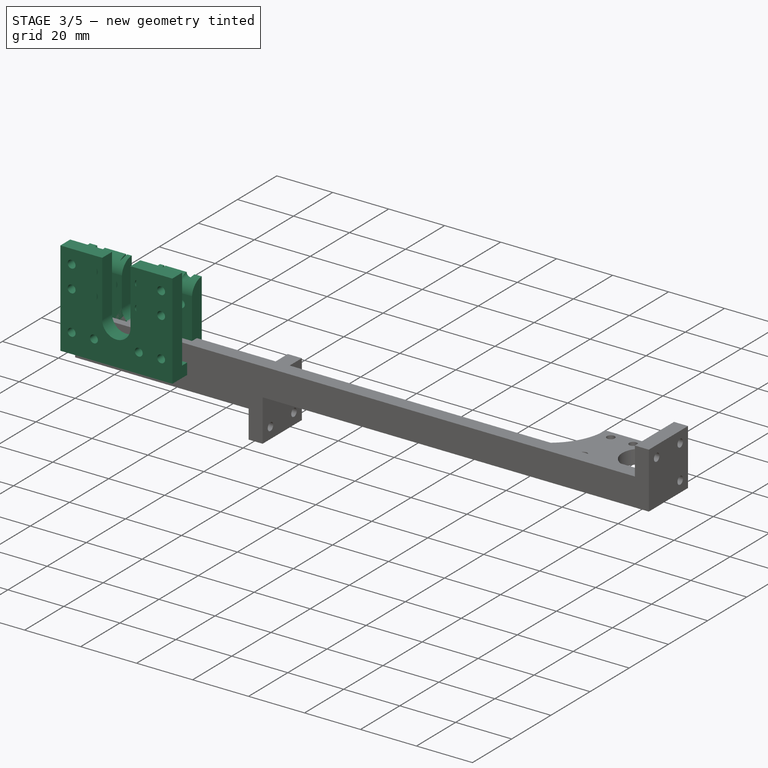
[diagram: stage 3 of 5 — iso view after this stage's code; geometry added in this stage tinted green]
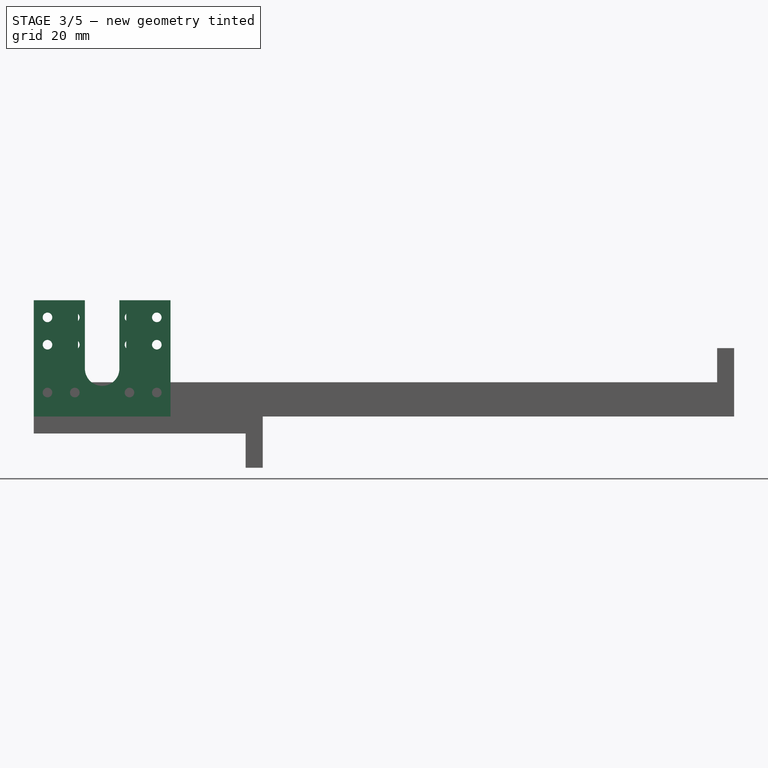
[diagram: stage 3 of 5 — front view after this stage's code; geometry added in this stage tinted green]
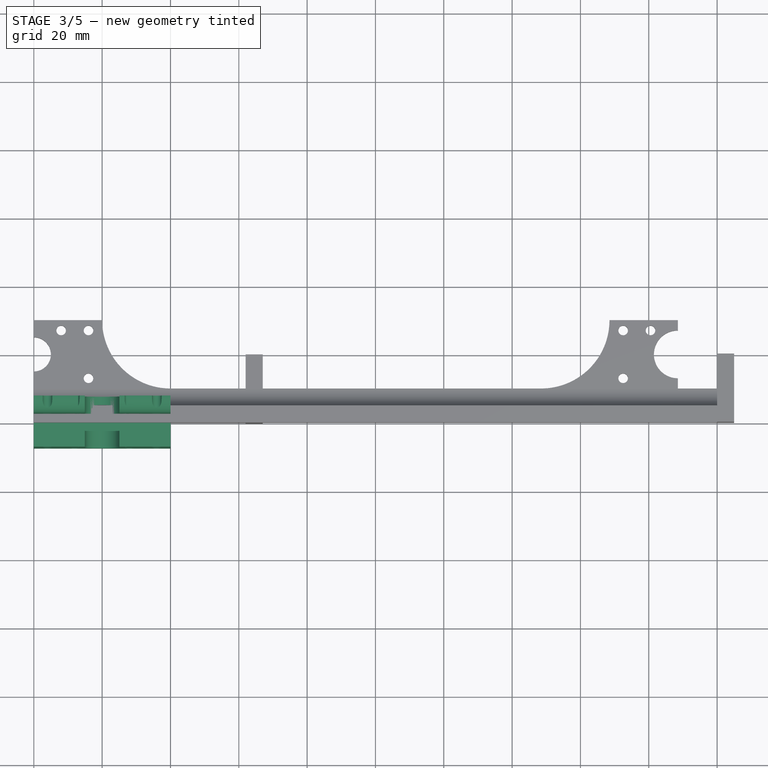
[diagram: stage 3 of 5 — top view after this stage's code; geometry added in this stage tinted green]
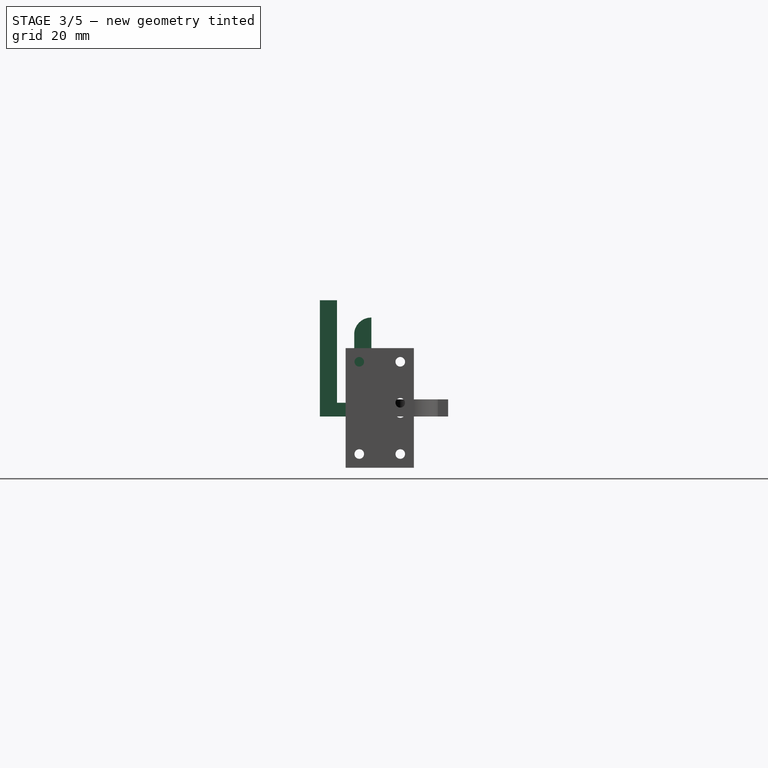
[diagram: stage 3 of 5 — right view after this stage's code; geometry added in this stage tinted green]
FEATURE [PartDesign::Body] Body002  label="Body002TopBig"
  Group = -> [Sketch011,Pad007,Sketch013,Pad009,Sketch015,Pocket002,Sketch016,Pad010]
  Origin = -> Origin002
  Placement = pos=(-188.5,0,5) rot=(0,1,0;3.14159rad)
  Tip = -> Pad010
  expr: .Placement.Base.x = -Spreadsheet.midHeight
  expr: .Placement.Base.z = Spreadsheet.pad
FEATURE [Sketcher::SketchObject] Sketch017
  FullyConstrained = true
  MapMode = 5
  Placement = pos=(0,0,0) rot=(0.57735,0.57735,0.57735;2.0944rad)
  Support = -> [YZ_Plane003]
  expr: Constraints[13] = Spreadsheet.connectorTotalDepth
  expr: Constraints[14] = Spreadsheet.connectorInnerDepth
  expr: Constraints[15] = Spreadsheet.connectorInnerDepth
  expr: Constraints[16] = Spreadsheet.pad
  expr: Constraints[17] = Spreadsheet.pad
  expr: Constraints[22] = Spreadsheet.connectorWidth
  sketch-geometry (8):
    g0: LineSegment StartX=-7.525 StartY=1e-16 StartZ=0 EndX=-7.525 EndY=34 EndZ=0
    g1: LineSegment StartX=-7.525 StartY=34 StartZ=0 EndX=-2.525 EndY=34 EndZ=0
    g2: LineSegment StartX=-2.525 StartY=34 StartZ=0 EndX=-2.525 EndY=4 EndZ=0
    g3: LineSegment StartX=-2.525 StartY=4 StartZ=0 EndX=2.525 EndY=4 EndZ=0
    g4: LineSegment StartX=2.525 StartY=4 StartZ=0 EndX=2.525 EndY=34 EndZ=0
    g5: LineSegment StartX=2.525 StartY=34 StartZ=0 EndX=7.525 EndY=34 EndZ=0
    g6: LineSegment StartX=7.525 StartY=34 StartZ=0 EndX=7.525 EndY=0 EndZ=0
    g7: LineSegment StartX=7.525 StartY=0 StartZ=0 EndX=-7.525 EndY=1e-16 EndZ=0
  constraints (23):
    c: Horizontal(g1)
    c: Coincident(g2,g1)
    c: Vertical(g2)
    c: Coincident(g3,g2)
    c: Horizontal(g3)
    c: Coincident(g4,g3)
    c: Vertical(g4)
    c: Coincident(g5,g4)
    c: Horizontal(g5)
    c: Coincident(g6,g5)
    c: PointOnObject(g6,g-1)
    c: Vertical(g6)
    c: Coincident(g7,g6)
    c: DistanceY(g0,g0) = 34
    c: DistanceY(g2,g2) = 30
    c: DistanceY(g4,g4) = 30
    c: DistanceX(g1,g1) = 5
    c: DistanceX(g5,g5) = 5
    c: Coincident(g0,g1)
    c: Vertical(g0)
    c: Coincident(g0,g7)
    c: Symmetric(g6,g0,g-2)
    c: DistanceX(g3,g3) = 5.05
FEATURE [PartDesign::Pad] Pad011
  Direction = (1,-2e-16,3e-16)
  Length = 40
  Length2 = 10
  Placement = pos=(0,0,0) rot=(0.57735,0.57735,0.57735;2.0944rad)
  Profile = -> Sketch017
  ReferenceAxis = -> Sketch017 [N_Axis]
  Type = 0
  expr: Length = Spreadsheet.RodSupportWidth * 2
FEATURE [Sketcher::SketchObject] Sketch018
  AttachmentOffset = pos=(20,0,0) rot=(0,0,1;0rad)
  FullyConstrained = true
  MapMode = 5
  Placement = pos=(20,0,0) rot=(1,0,0;1.5708rad)
  Support = -> [XZ_Plane003]
  expr: .AttachmentOffset.Base.x = Spreadsheet.RodSupportWidth
  expr: Constraints[12] = Spreadsheet.connectorBackDepth + Spreadsheet.totalRodSideSupportWidth - Spreadsheet.toLastScrewHole
  expr: Constraints[13] = Spreadsheet.toLastScrewHole - Spreadsheet.toSecondScrewHole
  expr: Constraints[22] = Spreadsheet.screwHoleToEdgeXBigHoleSide
  expr: Constraints[25] = Spreadsheet.screwInBetween
  expr: Constraints[26] = Spreadsheet.toSecondScrewHole - Spreadsheet.toBaseScrewHole
  expr: Constraints[48] = Spreadsheet.m3ScrewRTight
  expr: Constraints[59] = Spreadsheet.bigRodR + Spreadsheet.connectorAdj
  expr: Constraints[60] = Spreadsheet.connectorBackDepth + Spreadsheet.RodSupportWidth / 2
  expr: Constraints[61] = Spreadsheet.connectorTotalDepth
  sketch-geometry (25):
    g0: LineSegment StartX=-16 StartY=21 StartZ=0 EndX=16 EndY=21 EndZ=0
    g1: LineSegment StartX=16 StartY=21 StartZ=0 EndX=16 EndY=7 EndZ=0
    g2: LineSegment StartX=16 StartY=7 StartZ=0 EndX=-16 EndY=7 EndZ=0
    g3: LineSegment StartX=-16 StartY=7 StartZ=0 EndX=-16 EndY=21 EndZ=0
    g4: LineSegment StartX=8 StartY=21 StartZ=0 EndX=8 EndY=7 EndZ=0
    g5: LineSegment StartX=-8 StartY=21 StartZ=0 EndX=-8 EndY=7 EndZ=0
    g6: LineSegment StartX=-16 StartY=21 StartZ=0 EndX=16 EndY=21 EndZ=0
    g7: LineSegment StartX=16 StartY=21 StartZ=0 EndX=16 EndY=29 EndZ=0
    g8: LineSegment StartX=16 StartY=29 StartZ=0 EndX=-16 EndY=29 EndZ=0
    g9: LineSegment StartX=-16 StartY=29 StartZ=0 EndX=-16 EndY=21 EndZ=0
    g10: LineSegment StartX=-8 StartY=21 StartZ=0 EndX=-8 EndY=29 EndZ=0
    g11: LineSegment StartX=8 StartY=21 StartZ=0 EndX=8 EndY=29 EndZ=0
    g12: Circle CenterX=-16 CenterY=21 CenterZ=0 NormalX=0 NormalY=0 NormalZ=1 AngleXU=0 Radius=1.4
    g13: Circle CenterX=-16 CenterY=7 CenterZ=0 NormalX=0 NormalY=0 NormalZ=1 AngleXU=0 Radius=1.4
    g14: Circle CenterX=-8 CenterY=7 CenterZ=0 NormalX=0 NormalY=0 NormalZ=1 AngleXU=0 Radius=1.4
    g15: Circle CenterX=-16 CenterY=29 CenterZ=0 NormalX=0 NormalY=0 NormalZ=1 AngleXU=0 Radius=1.4
    g16: Circle CenterX=16 CenterY=29 CenterZ=0 NormalX=0 NormalY=0 NormalZ=1 AngleXU=0 Radius=1.4
    g17: Circle CenterX=16 CenterY=21 CenterZ=0 NormalX=0 NormalY=0 NormalZ=1 AngleXU=0 Radius=1.4
    g18: Circle CenterX=16 CenterY=7 CenterZ=0 NormalX=0 NormalY=0 NormalZ=1 AngleXU=0 Radius=1.4
    g19: Circle CenterX=8 CenterY=7 CenterZ=0 NormalX=0 NormalY=0 NormalZ=1 AngleXU=0 Radius=1.4
    g20: LineSegment StartX=0 StartY=7 StartZ=0 EndX=0 EndY=21 EndZ=0
    g21: ArcOfCircle CenterX=0 CenterY=14 CenterZ=0 NormalX=0 NormalY=0 NormalZ=1 AngleXU=0 Radius=7.05 StartAngle=3.14159 EndAngle=6.28319
    g22: LineSegment StartX=-7.05 StartY=14 StartZ=0 EndX=-7.05 EndY=34 EndZ=0
    g23: LineSegment StartX=-7.05 StartY=34 StartZ=0 EndX=7.05 EndY=34 EndZ=0
    g24: LineSegment StartX=7.05 StartY=34 StartZ=0 EndX=7.05 EndY=14 EndZ=0
  constraints (64):
    c: Coincident(g0,g1)
    c: Coincident(g1,g2)
    c: Coincident(g2,g3)
    c: Coincident(g3,g0)
    c: Horizontal(g0)
    c: Vertical(g1)
    c: Vertical(g3)
    c: PointOnObject(g4,g0)
    c: PointOnObject(g4,g2)
    c: Vertical(g4)
    c: PointOnObject(g5,g0)
    c: Vertical(g5)
    c: DistanceY(g-1,g1) = 7
    c: DistanceY(g1,g0) = 14
    c: Coincident(g6,g7)
    c: Coincident(g7,g8)
    c: Coincident(g8,g9)
    c: Coincident(g9,g6)
    c: Vertical(g7)
    c: Coincident(g6,g0)
    c: Coincident(g6,g0)
    c: Symmetric(g7,g8,g-2)
    c: DistanceX(g-1,g4) = 8
    c: Symmetric(g4,g5,g-2)
    c: Symmetric(g1,g2,g-2)
    c: DistanceX(g4,g1) = 8
    c: DistanceY(g0,g7) = 8
    c: Coincident(g10,g5)
    c: PointOnObject(g10,g8)
    c: Vertical(g10)
    c: Coincident(g11,g4)
    c: Vertical(g11)
    c: PointOnObject(g11,g8)
    c: Coincident(g12,g0)
    c: Coincident(g13,g2)
    c: Coincident(g14,g5)
    c: Coincident(g15,g8)
    c: Coincident(g16,g7)
    c: Coincident(g17,g0)
    c: Coincident(g18,g1)
    c: Coincident(g19,g4)
    c: Equal(g12,g15)
    c: Equal(g13,g15)
    c: Equal(g14,g15)
    c: Equal(g19,g15)
    c: Equal(g16,g15)
    c: Equal(g17,g15)
    c: Equal(g18,g15)
    c: Radius(g15) = 1.4
    c: PointOnObject(g20,g2)
    c: PointOnObject(g20,g0)
    c: Vertical(g20)
    c: PointOnObject(g20,g-2)
    c: PointOnObject(g21,g20)
    c: Vertical(g22)
    c: Coincident(g23,g22)
    c: Horizontal(g23)
    c: Coincident(g24,g23)
    c: Vertical(g24)
    c: Radius(g21) = 7.05
    c: DistanceY(g-1,g21) = 14
    c: DistanceY(g-1,g23) = 34
    c: Tangent(g21,g22) = 1.5708
    c: Tangent(g21,g24) = 1.5708
FEATURE [PartDesign::Pocket] Pocket003
  BaseFeature = -> Pad011
  Direction = (0,1,2e-16)
  Length = 5
  Length2 = 5
  Midplane = true
  Placement = pos=(0,0,0) rot=(0.57735,0.57735,0.57735;2.0944rad)
  Profile = -> Sketch018
  ReferenceAxis = -> Sketch018 [N_Axis]
  Type = 1
FEATURE [Sketcher::SketchObject] Sketch019
  FullyConstrained = true
  MapMode = 5
  Placement = pos=(0,0,0) rot=(0.57735,0.57735,0.57735;2.0944rad)
  Support = -> [YZ_Plane003]
  expr: Constraints[12] = Spreadsheet.pad + Spreadsheet.connectorAdj
  expr: Constraints[6] = Spreadsheet.connectorTotalDepth
  expr: Constraints[7] = Spreadsheet.pad / 2
  expr: Constraints[8] = Spreadsheet.pad
  expr: Constraints[9] = Spreadsheet.pad + Spreadsheet.connectorAdj
  sketch-geometry (4):
    g0: LineSegment StartX=2.5 StartY=34 StartZ=0 EndX=7.55 EndY=34 EndZ=0
    g1: LineSegment StartX=7.55 StartY=34 StartZ=0 EndX=7.55 EndY=28.95 EndZ=0
    g2: LineSegment StartX=2.5 StartY=34 StartZ=0 EndX=2.5 EndY=23.9503 EndZ=0
    g3: ArcOfCircle CenterX=7.5 CenterY=23.9503 CenterZ=0 NormalX=0 NormalY=0 NormalZ=1 AngleXU=0 Radius=5 StartAngle=1.5608 EndAngle=3.14159
  constraints (13):
    c: Horizontal(g0)
    c: Coincident(g1,g0)
    c: Vertical(g1)
    c: Coincident(g2,g0)
    c: Tangent(g3,g2) = -1.5708
    c: Coincident(g3,g1)
    c: DistanceY(g-1,g0) = 34
    c: DistanceX(g-1,g0) = 2.5
    c: Radius(g3) = 5
    c: DistanceX(g0,g0) = 5.05
    c: Coincident(g3,g2)
    c: Vertical(g2)
    c: DistanceY(g1,g1) = 5.05
FEATURE [PartDesign::Pocket] Pocket004
  BaseFeature = -> Pocket003
  Direction = (-1,2e-16,-3e-16)
  Length = 5
  Length2 = 5
  Placement = pos=(0,0,0) rot=(0.57735,0.57735,0.57735;2.0944rad)
  Profile = -> Sketch019
  ReferenceAxis = -> Sketch019 [N_Axis]
  Reversed = true
  Type = 1
FEATURE [PartDesign::Body] Body003  label="Body003RodConnectorBig"
  Group = -> [Sketch017,Pad011,Sketch018,Pocket003,Sketch019,Pocket004]
  Origin = -> Origin003
  Placement = pos=(-208.5,34,2.5) rot=(1,0,0;1.5708rad)
  Tip = -> Pocket004
  expr: .Placement.Base.x = -Spreadsheet.midHeight - Spreadsheet.RodSupportWidth
  expr: .Placement.Base.y = Spreadsheet.connectorTotalDepth
FEATURE [Sketcher::SketchObject] Sketch020
  FullyConstrained = true
  MapMode = 5
  Placement = pos=(0,0,0) rot=(0.57735,0.57735,0.57735;2.0944rad)
  Support = -> [YZ_Plane004]
  expr: Constraints[13] = Spreadsheet.connectorTotalDepth
  expr: Constraints[14] = Spreadsheet.connectorInnerDepth
  expr: Constraints[15] = Spreadsheet.connectorInnerDepth
  expr: Constraints[16] = Spreadsheet.pad
  expr: Constraints[17] = Spreadsheet.pad
  expr: Constraints[22] = Spreadsheet.connectorWidth
  sketch-geometry (8):
    g0: LineSegment StartX=-7.525 StartY=1e-16 StartZ=0 EndX=-7.525 EndY=34 EndZ=0
    g1: LineSegment StartX=-7.525 StartY=34 StartZ=0 EndX=-2.525 EndY=34 EndZ=0
    g2: LineSegment StartX=-2.525 StartY=34 StartZ=0 EndX=-2.525 EndY=4 EndZ=0
    g3: LineSegment StartX=-2.525 StartY=4 StartZ=0 EndX=2.525 EndY=4 EndZ=0
    g4: LineSegment StartX=2.525 StartY=4 StartZ=0 EndX=2.525 EndY=34 EndZ=0
    g5: LineSegment StartX=2.525 StartY=34 StartZ=0 EndX=7.525 EndY=34 EndZ=0
    g6: LineSegment StartX=7.525 StartY=34 StartZ=0 EndX=7.525 EndY=0 EndZ=0
    g7: LineSegment StartX=7.525 StartY=0 StartZ=0 EndX=-7.525 EndY=1e-16 EndZ=0
  constraints (23):
    c: Horizontal(g1)
    c: Coincident(g2,g1)
    c: Vertical(g2)
    c: Coincident(g3,g2)
    c: Horizontal(g3)
    c: Coincident(g4,g3)
    c: Vertical(g4)
    c: Coincident(g5,g4)
    c: Horizontal(g5)
    c: Coincident(g6,g5)
    c: PointOnObject(g6,g-1)
    c: Vertical(g6)
    c: Coincident(g7,g6)
    c: DistanceY(g0,g0) = 34
    c: DistanceY(g2,g2) = 30
    c: DistanceY(g4,g4) = 30
    c: DistanceX(g1,g1) = 5
    c: DistanceX(g5,g5) = 5
    c: Coincident(g0,g1)
    c: Vertical(g0)
    c: Coincident(g0,g7)
    c: Symmetric(g6,g0,g-2)
    c: DistanceX(g3,g3) = 5.05
FEATURE [PartDesign::Pad] Pad012
  Direction = (1,-2e-16,3e-16)
  Length = 40
  Length2 = 10
  Placement = pos=(0,0,0) rot=(0.57735,0.57735,0.57735;2.0944rad)
  Profile = -> Sketch020
  ReferenceAxis = -> Sketch020 [N_Axis]
  Type = 0
  expr: Length = Spreadsheet.RodSupportWidth * 2
FEATURE [Sketcher::SketchObject] Sketch021
  AttachmentOffset = pos=(20,0,0) rot=(0,0,1;0rad)
  FullyConstrained = true
  MapMode = 5
  Placement = pos=(20,0,0) rot=(1,0,0;1.5708rad)
  Support = -> [XZ_Plane004]
  expr: .AttachmentOffset.Base.x = Spreadsheet.RodSupportWidth
  expr: Constraints[12] = Spreadsheet.connectorBackDepth + Spreadsheet.totalRodSideSupportWidth - Spreadsheet.toLastScrewHole
  expr: Constraints[13] = Spreadsheet.toLastScrewHole - Spreadsheet.toSecondScrewHole
  expr: Constraints[22] = Spreadsheet.screwHoleToEdgeXBigHoleSide
  expr: Constraints[25] = Spreadsheet.screwInBetween
  expr: Constraints[26] = Spreadsheet.toSecondScrewHole - Spreadsheet.toBaseScrewHole
  expr: Constraints[48] = Spreadsheet.m3ScrewRTight
  expr: Constraints[59] = Spreadsheet.smallRodR + Spreadsheet.connectorAdj
  expr: Constraints[60] = Spreadsheet.connectorBackDepth + Spreadsheet.RodSupportWidth / 2
  expr: Constraints[61] = Spreadsheet.connectorTotalDepth
  sketch-geometry (29):
    g0: LineSegment StartX=-16 StartY=21 StartZ=0 EndX=16 EndY=21 EndZ=0
    g1: LineSegment StartX=16 StartY=21 StartZ=0 EndX=16 EndY=7 EndZ=0
    g2: LineSegment StartX=16 StartY=7 StartZ=0 EndX=-16 EndY=7 EndZ=0
    g3: LineSegment StartX=-16 StartY=7 StartZ=0 EndX=-16 EndY=21 EndZ=0
    g4: LineSegment StartX=8 StartY=21 StartZ=0 EndX=8 EndY=7 EndZ=0
    g5: LineSegment StartX=-8 StartY=21 StartZ=0 EndX=-8 EndY=7 EndZ=0
    g6: LineSegment StartX=-16 StartY=21 StartZ=0 EndX=16 EndY=21 EndZ=0
    g7: LineSegment StartX=16 StartY=21 StartZ=0 EndX=16 EndY=29 EndZ=0
    g8: LineSegment StartX=16 StartY=29 StartZ=0 EndX=-16 EndY=29 EndZ=0
    g9: LineSegment StartX=-16 StartY=29 StartZ=0 EndX=-16 EndY=21 EndZ=0
    g10: LineSegment StartX=-8 StartY=21 StartZ=0 EndX=-8 EndY=29 EndZ=0
    g11: LineSegment StartX=8 StartY=21 StartZ=0 EndX=8 EndY=29 EndZ=0
    g12: Circle CenterX=-16 CenterY=21 CenterZ=0 NormalX=0 NormalY=0 NormalZ=1 AngleXU=0 Radius=1.4
    g13: Circle CenterX=-16 CenterY=7 CenterZ=0 NormalX=0 NormalY=0 NormalZ=1 AngleXU=0 Radius=1.4
    g14: Circle CenterX=-8 CenterY=7 CenterZ=0 NormalX=0 NormalY=0 NormalZ=1 AngleXU=0 Radius=1.4
    g15: Circle CenterX=-16 CenterY=29 CenterZ=0 NormalX=0 NormalY=0 NormalZ=1 AngleXU=0 Radius=1.4
    g16: Circle CenterX=16 CenterY=29 CenterZ=0 NormalX=0 NormalY=0 NormalZ=1 AngleXU=0 Radius=1.4
    g17: Circle CenterX=16 CenterY=21 CenterZ=0 NormalX=0 NormalY=0 NormalZ=1 AngleXU=0 Radius=1.4
    g18: Circle CenterX=16 CenterY=7 CenterZ=0 NormalX=0 NormalY=0 NormalZ=1 AngleXU=0 Radius=1.4
    g19: Circle CenterX=8 CenterY=7 CenterZ=0 NormalX=0 NormalY=0 NormalZ=1 AngleXU=0 Radius=1.4
    g20: LineSegment StartX=0 StartY=7 StartZ=0 EndX=0 EndY=21 EndZ=0
    g21: ArcOfCircle CenterX=0 CenterY=14 CenterZ=0 NormalX=0 NormalY=0 NormalZ=1 AngleXU=0 Radius=5.05 StartAngle=3.14159 EndAngle=6.28319
    g22: LineSegment StartX=-5.05 StartY=14 StartZ=0 EndX=-5.05 EndY=34 EndZ=0
    g23: LineSegment StartX=-5.05 StartY=34 StartZ=0 EndX=5.05 EndY=34 EndZ=0
    g24: LineSegment StartX=5.05 StartY=34 StartZ=0 EndX=5.05 EndY=14 EndZ=0
    g25: Circle CenterX=-8 CenterY=21 CenterZ=0 NormalX=0 NormalY=0 NormalZ=1 AngleXU=0 Radius=1.4
    g26: Circle CenterX=-8 CenterY=29 CenterZ=0 NormalX=0 NormalY=0 NormalZ=1 AngleXU=0 Radius=1.4
    g27: Circle CenterX=8 CenterY=29 CenterZ=0 NormalX=0 NormalY=0 NormalZ=1 AngleXU=0 Radius=1.4
    g28: Circle CenterX=8 CenterY=21 CenterZ=0 NormalX=0 NormalY=0 NormalZ=1 AngleXU=0 Radius=1.4
  constraints (72):
    c: Coincident(g0,g1)
    c: Coincident(g1,g2)
    c: Coincident(g2,g3)
    c: Coincident(g3,g0)
    c: Horizontal(g0)
    c: Vertical(g1)
    c: Vertical(g3)
    c: PointOnObject(g4,g0)
    c: PointOnObject(g4,g2)
    c: Vertical(g4)
    c: PointOnObject(g5,g0)
    c: Vertical(g5)
    c: DistanceY(g-1,g1) = 7
    c: DistanceY(g1,g0) = 14
    c: Coincident(g6,g7)
    c: Coincident(g7,g8)
    c: Coincident(g8,g9)
    c: Coincident(g9,g6)
    c: Vertical(g7)
    c: Coincident(g6,g0)
    c: Coincident(g6,g0)
    c: Symmetric(g7,g8,g-2)
    c: DistanceX(g-1,g4) = 8
    c: Symmetric(g4,g5,g-2)
    c: Symmetric(g1,g2,g-2)
    c: DistanceX(g4,g1) = 8
    c: DistanceY(g0,g7) = 8
    c: Coincident(g10,g5)
    c: PointOnObject(g10,g8)
    c: Vertical(g10)
    c: Coincident(g11,g4)
    c: Vertical(g11)
    c: PointOnObject(g11,g8)
    c: Coincident(g12,g0)
    c: Coincident(g13,g2)
    c: Coincident(g14,g5)
    c: Coincident(g15,g8)
    c: Coincident(g16,g7)
    c: Coincident(g17,g0)
    c: Coincident(g18,g1)
    c: Coincident(g19,g4)
    c: Equal(g12,g15)
    c: Equal(g13,g15)
    c: Equal(g14,g15)
    c: Equal(g19,g15)
    c: Equal(g16,g15)
    c: Equal(g17,g15)
    c: Equal(g18,g15)
    c: Radius(g15) = 1.4
    c: PointOnObject(g20,g2)
    c: PointOnObject(g20,g0)
    c: Vertical(g20)
    c: PointOnObject(g20,g-2)
    c: PointOnObject(g21,g20)
    c: Vertical(g22)
    c: Coincident(g23,g22)
    c: Horizontal(g23)
    c: Coincident(g24,g23)
    c: Vertical(g24)
    c: Radius(g21) = 5.05
    c: DistanceY(g-1,g21) = 14
    c: DistanceY(g-1,g23) = 34
    c: Tangent(g21,g22) = 1.5708
    c: Tangent(g21,g24) = 1.5708
    c: Coincident(g25,g5)
    c: Coincident(g26,g10)
    c: Coincident(g27,g11)
    c: Coincident(g28,g4)
    c: Equal(g26,g15)
    c: Equal(g25,g15)
    c: Equal(g28,g15)
    c: Equal(g27,g15)
FEATURE [PartDesign::Pocket] Pocket005
  BaseFeature = -> Pad012
  Direction = (0,1,2e-16)
  Length = 5
  Length2 = 5
  Midplane = true
  Placement = pos=(0,0,0) rot=(0.57735,0.57735,0.57735;2.0944rad)
  Profile = -> Sketch021
  ReferenceAxis = -> Sketch021 [N_Axis]
  Type = 1
FEATURE [Sketcher::SketchObject] Sketch022
  FullyConstrained = true
  MapMode = 5
  Placement = pos=(0,0,0) rot=(0.57735,0.57735,0.57735;2.0944rad)
  Support = -> [YZ_Plane004]
  expr: Constraints[12] = Spreadsheet.pad + Spreadsheet.connectorAdj
  expr: Constraints[6] = Spreadsheet.connectorTotalDepth
  expr: Constraints[7] = Spreadsheet.pad / 2
  expr: Constraints[8] = Spreadsheet.pad
  expr: Constraints[9] = Spreadsheet.pad + Spreadsheet.connectorAdj
  sketch-geometry (4):
    g0: LineSegment StartX=2.5 StartY=34 StartZ=0 EndX=7.55 EndY=34 EndZ=0
    g1: LineSegment StartX=7.55 StartY=34 StartZ=0 EndX=7.55 EndY=28.95 EndZ=0
    g2: LineSegment StartX=2.5 StartY=34 StartZ=0 EndX=2.5 EndY=23.9503 EndZ=0
    g3: ArcOfCircle CenterX=7.5 CenterY=23.9503 CenterZ=0 NormalX=0 NormalY=0 NormalZ=1 AngleXU=0 Radius=5 StartAngle=1.5608 EndAngle=3.14159
  constraints (13):
    c: Horizontal(g0)
    c: Coincident(g1,g0)
    c: Vertical(g1)
    c: Coincident(g2,g0)
    c: Tangent(g3,g2) = -1.5708
    c: Coincident(g3,g1)
    c: DistanceY(g-1,g0) = 34
    c: DistanceX(g-1,g0) = 2.5
    c: Radius(g3) = 5
    c: DistanceX(g0,g0) = 5.05
    c: Coincident(g3,g2)
    c: Vertical(g2)
    c: DistanceY(g1,g1) = 5.05
FEATURE [PartDesign::Pocket] Pocket006
  BaseFeature = -> Pocket005
  Direction = (-1,2e-16,-3e-16)
  Length = 5
  Length2 = 5
  Placement = pos=(0,0,0) rot=(0.57735,0.57735,0.57735;2.0944rad)
  Profile = -> Sketch022
  ReferenceAxis = -> Sketch022 [N_Axis]
  Reversed = true
  Type = 1
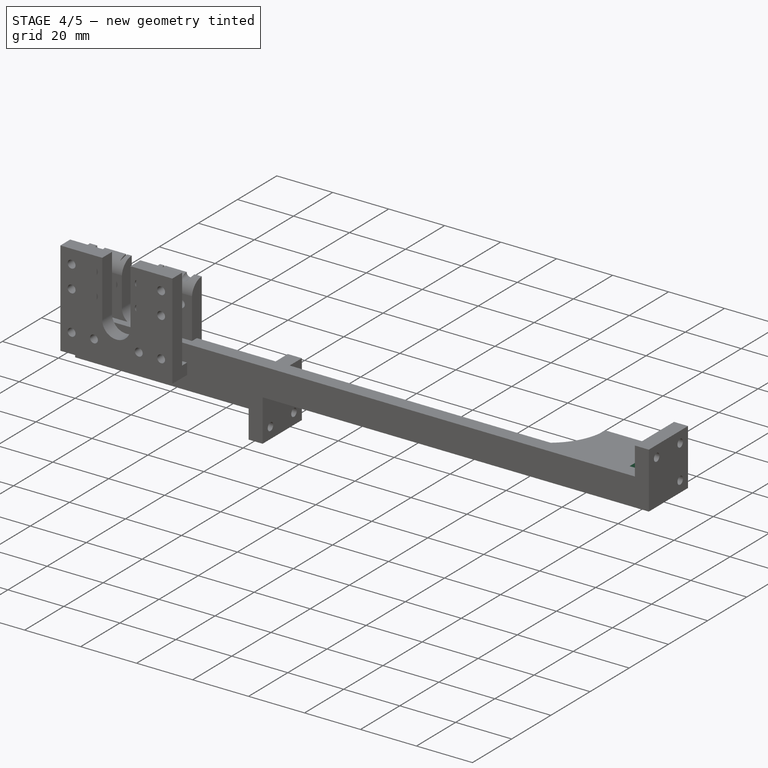
[diagram: stage 4 of 5 — iso view after this stage's code; geometry added in this stage tinted green]
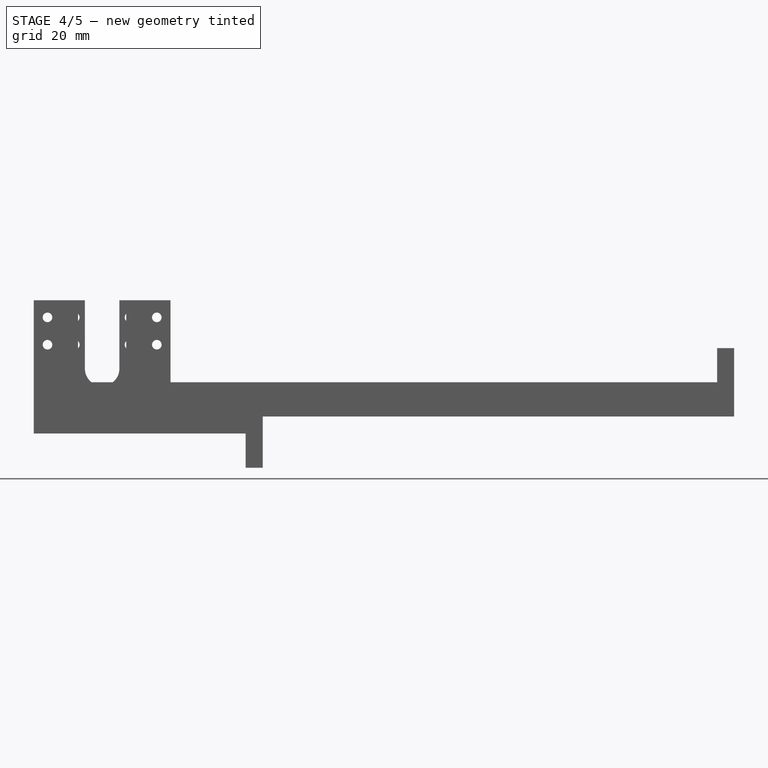
[diagram: stage 4 of 5 — front view after this stage's code; geometry added in this stage tinted green]
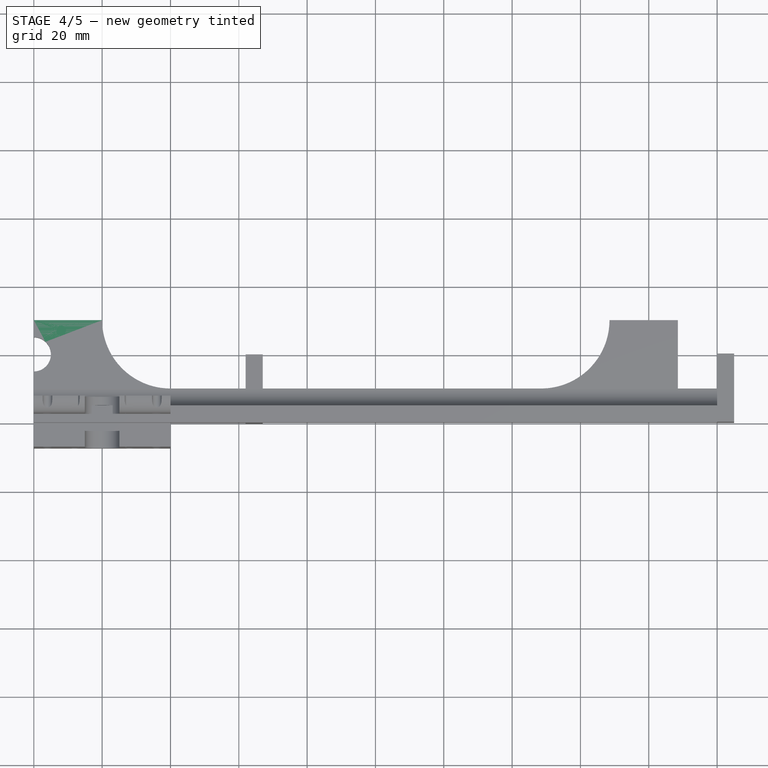
[diagram: stage 4 of 5 — top view after this stage's code; geometry added in this stage tinted green]
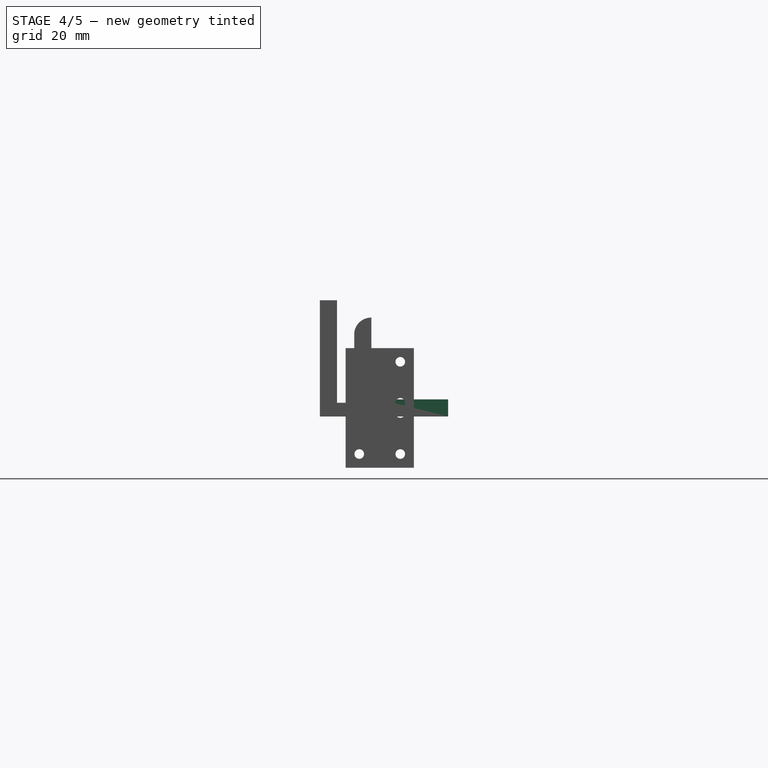
[diagram: stage 4 of 5 — right view after this stage's code; geometry added in this stage tinted green]
FEATURE [PartDesign::Body] Body
  Group = -> [Sketch,Pad,Sketch001,Pad001,Sketch002,Pad002,Sketch003,Sketch004,Pocket,Sketch005,Pad003]
  Origin = -> Origin
  Tip = -> Pad003
FEATURE [Sketcher::SketchObject] Sketch008
  FullyConstrained = true
  MapMode = 5
  Placement = pos=(0,0,0) rot=(0.57735,0.57735,0.57735;2.0944rad)
  Support = -> [YZ_Plane001]
  expr: Constraints[5] = Spreadsheet.pad
  expr: Constraints[6] = Spreadsheet.pad
  expr: Constraints[7] = Spreadsheet.pad
  sketch-geometry (3):
    g0: LineSegment StartX=5 StartY=5 StartZ=0 EndX=10 EndY=5 EndZ=0
    g1: LineSegment StartX=5 StartY=10 StartZ=0 EndX=5 EndY=5 EndZ=0
    g2: ArcOfCircle CenterX=10 CenterY=10 CenterZ=0 NormalX=0 NormalY=0 NormalZ=1 AngleXU=0 Radius=5 StartAngle=3.14159 EndAngle=4.71239
  constraints (8):
    c: Coincident(g1,g0)
    c: Horizontal(g0)
    c: Vertical(g1)
    c: Tangent(g2,g1) = -1.5708
    c: Tangent(g0,g2) = -1.5708
    c: DistanceY(g-1,g0) = 5
    c: DistanceX(g-1,g0) = 5
    c: Radius(g2) = 5
FEATURE [Sketcher::SketchObject] Sketch009  label="Sketch003_BaseShape001"
  FullyConstrained = true
  MapMode = 5
  Support = -> [XY_Plane001]
  expr: Constraints[101] = Spreadsheet.screwHoleToEdgeX
  expr: Constraints[102] = Spreadsheet.screwHoleToEdge
  expr: Constraints[103] = Spreadsheet.screwHoleToEdgeX
  expr: Constraints[104] = Spreadsheet.screwHoleToEdge
  expr: Constraints[10] = Spreadsheet.width
  expr: Constraints[110] = Spreadsheet.screwHoleToEdgeX * 2
  expr: Constraints[116] = Spreadsheet.screwHoleToEdgeX * 2
  expr: Constraints[20] = Spreadsheet.RodSupportWidth
  expr: Constraints[21] = Spreadsheet.RodSupportWidth
  expr: Constraints[31] = Spreadsheet.RodSupportWidth
  expr: Constraints[32] = Spreadsheet.RodSupportWidth
  expr: Constraints[34] = Spreadsheet.bigRodR
  expr: Constraints[36] = Spreadsheet.smallRodR
  expr: Constraints[37] = Spreadsheet.RodSupportWidth / 2
  expr: Constraints[41] = Spreadsheet.m3ScrewRTight
  expr: Constraints[49] = Spreadsheet.width / 2
  expr: Constraints[9] = Spreadsheet.midHeight
  sketch-geometry (44):
    g0: LineSegment StartX=0 StartY=0 StartZ=0 EndX=188.5 EndY=0 EndZ=0
    g1: LineSegment StartX=188.5 StartY=0 StartZ=0 EndX=188.5 EndY=10 EndZ=0
    g2: LineSegment StartX=188.5 StartY=10 StartZ=0 EndX=0 EndY=10 EndZ=0
    g3: LineSegment StartX=0 StartY=10 StartZ=0 EndX=0 EndY=0 EndZ=0
    g4: LineSegment StartX=0 StartY=10 StartZ=0 EndX=20 EndY=10 EndZ=0
    g5: LineSegment StartX=20 StartY=10 StartZ=0 EndX=20 EndY=30 EndZ=0
    g6: LineSegment StartX=20 StartY=30 StartZ=0 EndX=0 EndY=30 EndZ=0
    g7: LineSegment StartX=0 StartY=30 StartZ=0 EndX=0 EndY=10 EndZ=0
    g8: LineSegment StartX=20 StartY=10 StartZ=0 EndX=40 EndY=10 EndZ=0
    g9: LineSegment StartX=40 StartY=10 StartZ=0 EndX=40 EndY=30 EndZ=0
    g10: LineSegment StartX=40 StartY=30 StartZ=0 EndX=20 EndY=30 EndZ=0
    g11: LineSegment StartX=20 StartY=30 StartZ=0 EndX=20 EndY=10 EndZ=0
    g12: Circle CenterX=0 CenterY=20 CenterZ=0 NormalX=0 NormalY=0 NormalZ=1 AngleXU=0 Radius=7
    g13: Circle CenterX=0 CenterY=20 CenterZ=0 NormalX=0 NormalY=0 NormalZ=1 AngleXU=0 Radius=5
    g14: LineSegment StartX=0 StartY=20 StartZ=0 EndX=40 EndY=20 EndZ=0
    g15: Circle CenterX=5 CenterY=27 CenterZ=0 NormalX=0 NormalY=0 NormalZ=1 AngleXU=0 Radius=1.4
    g16: LineSegment StartX=5 StartY=27 StartZ=0 EndX=5 EndY=30 EndZ=0
    g17: LineSegment StartX=5 StartY=27 StartZ=0 EndX=5 EndY=13 EndZ=0
    g18: LineSegment StartX=5 StartY=13 StartZ=0 EndX=5 EndY=5 EndZ=0
    g19: LineSegment StartX=5 StartY=5 StartZ=0 EndX=183.5 EndY=5 EndZ=0
    g20: LineSegment StartX=183.5 StartY=5 StartZ=0 EndX=188.5 EndY=5 EndZ=0
    g21: GeomPoint X=94.25 Y=5 Z=0
    g22: GeomPoint X=49.625 Y=5 Z=0
    g23: GeomPoint X=138.875 Y=5 Z=0
    g24: LineSegment StartX=49.625 StartY=5 StartZ=0 EndX=49.625 EndY=0 EndZ=0
    g25: LineSegment StartX=138.875 StartY=5 StartZ=0 EndX=138.875 EndY=0 EndZ=0
    g26: LineSegment StartX=188.5 StartY=10 StartZ=0 EndX=168.5 EndY=10 EndZ=0
    g27: LineSegment StartX=168.5 StartY=10 StartZ=0 EndX=168.5 EndY=30 EndZ=0
    g28: LineSegment StartX=168.5 StartY=30 StartZ=0 EndX=188.5 EndY=30 EndZ=0
    g29: LineSegment StartX=188.5 StartY=30 StartZ=0 EndX=188.5 EndY=10 EndZ=0
    g30: LineSegment StartX=168.5 StartY=30 StartZ=0 EndX=148.5 EndY=30 EndZ=0
    g31: LineSegment StartX=148.5 StartY=30 StartZ=0 EndX=148.5 EndY=10 EndZ=0
    g32: LineSegment StartX=148.5 StartY=10 StartZ=0 EndX=168.5 EndY=10 EndZ=0
    g33: LineSegment StartX=168.5 StartY=10 StartZ=0 EndX=168.5 EndY=30 EndZ=0
    g34: LineSegment StartX=40 StartY=20 StartZ=0 EndX=188.5 EndY=20 EndZ=0
    g35: Circle CenterX=188.5 CenterY=20 CenterZ=0 NormalX=0 NormalY=0 NormalZ=1 AngleXU=0 Radius=7
    g36: Circle CenterX=188.5 CenterY=20 CenterZ=0 NormalX=0 NormalY=0 NormalZ=1 AngleXU=0 Radius=5
    g37: LineSegment StartX=183.5 StartY=5 StartZ=0 EndX=183.5 EndY=27 EndZ=0
    g38: LineSegment StartX=183.5 StartY=27 StartZ=0 EndX=183.5 EndY=30 EndZ=0
    g39: LineSegment StartX=5 StartY=13 StartZ=0 EndX=183.5 EndY=13 EndZ=0
    g40: LineSegment StartX=15 StartY=27 StartZ=0 EndX=15 EndY=13 EndZ=0
    g41: LineSegment StartX=15 StartY=27 StartZ=0 EndX=5 EndY=27 EndZ=0
    g42: LineSegment StartX=183.5 StartY=27 StartZ=0 EndX=173.5 EndY=27 EndZ=0
    g43: LineSegment StartX=173.5 StartY=27 StartZ=0 EndX=173.5 EndY=13 EndZ=0
  constraints (117):
    c: Coincident(g0,g1)
    c: Coincident(g1,g2)
    c: Coincident(g2,g3)
    c: Coincident(g3,g0)
    c: Horizontal(g0)
    c: Horizontal(g2)
    c: Vertical(g1)
    c: Vertical(g3)
    c: Coincident(g0,g-1)
    c: DistanceX(g2,g2) = 188.5
    c: DistanceY(g1,g1) = 10
    c: Coincident(g4,g5)
    c: Coincident(g5,g6)
    c: Coincident(g6,g7)
    c: Coincident(g7,g4)
    c: Horizontal(g4)
    c: Horizontal(g6)
    c: Vertical(g5)
    c: Vertical(g7)
    c: Coincident(g4,g2)
    c: DistanceX(g6,g6) = 20
    c: DistanceY(g5,g5) = 20
    c: Coincident(g8,g9)
    c: Coincident(g9,g10)
    c: Coincident(g10,g11)
    c: Coincident(g11,g8)
    c: Horizontal(g8)
    c: Horizontal(g10)
    c: Vertical(g9)
    c: Vertical(g11)
    c: Coincident(g8,g4)
    c: DistanceX(g10,g10) = 20
    c: DistanceY(g9,g9) = 20
    c: PointOnObject(g12,g7)
    c: Radius(g12) = 7
    c: Coincident(g13,g12)
    c: Radius(g13) = 5
    c: DistanceY(g12,g6) = 10
    c: Coincident(g14,g12)
    c: PointOnObject(g14,g9)
    c: Horizontal(g14)
    c: Radius(g15) = 1.4
    c: Coincident(g16,g15)
    c: PointOnObject(g16,g6)
    c: Vertical(g16)
    c: Coincident(g17,g15)
    c: Symmetric(g15,g17,g14)
    c: Coincident(g18,g17)
    c: Vertical(g18)
    c: DistanceY(g0,g18) = 5
    c: Coincident(g19,g18)
    c: Horizontal(g19)
    c: Coincident(g20,g19)
    c: PointOnObject(g20,g1)
    c: Horizontal(g20)
    c: Symmetric(g18,g19,g21)
    c: Symmetric(g18,g21,g22)
    c: Symmetric(g21,g19,g23)
    c: Coincident(g24,g22)
    c: PointOnObject(g24,g0)
    c: Vertical(g24)
    c: Coincident(g25,g23)
    c: PointOnObject(g25,g0)
    c: Vertical(g25)
    c: Coincident(g26,g27)
    c: Coincident(g27,g28)
    c: Coincident(g28,g29)
    c: Coincident(g29,g26)
    c: Horizontal(g26)
    c: Horizontal(g28)
    c: Vertical(g27)
    c: Vertical(g29)
    c: Coincident(g26,g1)
    c: Equal(g28,g10)
    c: Equal(g27,g9)
    c: Coincident(g30,g31)
    c: Coincident(g31,g32)
    c: Coincident(g32,g33)
    c: Coincident(g33,g30)
    c: Horizontal(g30)
    c: Horizontal(g32)
    c: Vertical(g31)
    c: Vertical(g33)
    c: Coincident(g30,g27)
    c: PointOnObject(g31,g2)
    c: Equal(g30,g10)
    c: Coincident(g34,g14)
    c: PointOnObject(g34,g29)
    c: Horizontal(g34)
    c: Coincident(g35,g34)
    c: Coincident(g36,g34)
    c: Equal(g13,g36)
    c: Equal(g35,g12)
    c: Coincident(g37,g19)
    c: Vertical(g37)
    c: Coincident(g38,g37)
    c: PointOnObject(g38,g28)
    c: Vertical(g38)
    c: Coincident(g39,g17)
    c: PointOnObject(g39,g37)
    c: Horizontal(g39)
    c: DistanceX(g6,g16) = 5
    c: DistanceY(g15,g6) = 3
    c: DistanceX(g38,g28) = 5
    c: DistanceY(g38,g38) = 3
    c: PointOnObject(g40,g39)
    c: Vertical(g40)
    c: Coincident(g41,g40)
    c: Coincident(g41,g15)
    c: Horizontal(g41)
    c: DistanceX(g41,g41) = 10
    c: Coincident(g42,g37)
    c: Horizontal(g42)
    c: Coincident(g43,g42)
    c: PointOnObject(g43,g39)
    c: Vertical(g43)
    c: DistanceX(g42,g42) = 10
FEATURE [Sketcher::SketchObject] Sketch006
  ExternalGeometry = -> [Sketch009]
  FullyConstrained = true
  MapMode = 5
  Support = -> [XY_Plane001]
  expr: Constraints[11] = Spreadsheet.smallRodR
  expr: Constraints[12] = Spreadsheet.RodSupportWidth / 2
  expr: Constraints[14] = Spreadsheet.RodSupportWidth + Spreadsheet.width
  expr: Constraints[17] = Spreadsheet.RodSupportWidth
  expr: Constraints[6] = Spreadsheet.RodSupportWidth
  sketch-geometry (10):
    g0: LineSegment StartX=40 StartY=10 StartZ=0 EndX=148.5 EndY=10 EndZ=0
    g1: LineSegment StartX=188.5 StartY=0 StartZ=0 EndX=0 EndY=0 EndZ=0
    g2: LineSegment StartX=-9e-16 StartY=0 StartZ=0 EndX=-9e-16 EndY=15 EndZ=0
    g3: LineSegment StartX=20 StartY=30 StartZ=0 EndX=0 EndY=30 EndZ=0
    g4: ArcOfCircle CenterX=0 CenterY=20 CenterZ=0 NormalX=0 NormalY=0 NormalZ=1 AngleXU=0 Radius=5 StartAngle=4.71239 EndAngle=7.85398
    g5: LineSegment StartX=1.5e-15 StartY=25 StartZ=0 EndX=1.5e-15 EndY=30 EndZ=0
    g6: ArcOfCircle CenterX=40 CenterY=30 CenterZ=0 NormalX=0 NormalY=0 NormalZ=1 AngleXU=0 Radius=20 StartAngle=3.14159 EndAngle=4.71239
    g7: LineSegment StartX=188.5 StartY=30 StartZ=0 EndX=168.5 EndY=30 EndZ=0
    g8: LineSegment StartX=188.5 StartY=0 StartZ=0 EndX=188.5 EndY=30 EndZ=0
    g9: ArcOfCircle CenterX=148.5 CenterY=30 CenterZ=0 NormalX=0 NormalY=0 NormalZ=1 AngleXU=0 Radius=20 StartAngle=4.71239 EndAngle=6.28319
  constraints (26):
    c: Coincident(g1,g2)
    c: Horizontal(g0)
    c: Vertical(g2)
    c: PointOnObject(g5,g-2)
    c: Horizontal(g3)
    c: Coincident(g5,g3)
    c: DistanceX(g3,g3) = 20
    c: PointOnObject(g4,g2)
    c: Coincident(g2,g4)
    c: Coincident(g5,g4)
    c: Vertical(g5)
    c: Radius(g4) = 5
    c: DistanceY(g4,g3) = 10
    c: Coincident(g1,g-1)
    c: DistanceY(g1,g6) = 30
    c: Tangent(g6,g0) = -1.5708
    c: Coincident(g6,g3)
    c: DistanceY(g-3,g3) = 20
    c: Coincident(g8,g1)
    c: Coincident(g8,g7)
    c: Coincident(g1,g-3)
    c: Coincident(g7,g-5)
    c: Coincident(g9,g-6)
    c: Tangent(g9,g0) = -1.5708
    c: Coincident(g7,g9)
    c: Coincident(g7,g-5)
FEATURE [PartDesign::Pad] Pad004
  Direction = (0,0,1)
  Length = 5
  Length2 = 10
  Profile = -> Sketch006
  ReferenceAxis = -> Sketch006 [N_Axis]
  Type = 0
  expr: Length = Spreadsheet.pad
FEATURE [Sketcher::SketchObject] Sketch007
  AttachmentOffset = pos=(0,0,5) rot=(0,0,1;0rad)
  ExternalGeometry = -> [Sketch009]
  FullyConstrained = true
  MapMode = 5
  Placement = pos=(0,0,5) rot=(0,0,1;0rad)
  Support = -> [XY_Plane001]
  expr: .AttachmentOffset.Base.z = Spreadsheet.pad
  expr: Constraints[10] = Spreadsheet.midHeight
  expr: Constraints[4] = Spreadsheet.pad
  sketch-geometry (4):
    g0: LineSegment StartX=0 StartY=0 StartZ=0 EndX=188.5 EndY=0 EndZ=0
    g1: LineSegment StartX=188.5 StartY=5 StartZ=0 EndX=0 EndY=5 EndZ=0
    g2: LineSegment StartX=0 StartY=5 StartZ=0 EndX=0 EndY=0 EndZ=0
    g3: LineSegment StartX=188.5 StartY=0 StartZ=0 EndX=188.5 EndY=5 EndZ=0
  constraints (11):
    c: Coincident(g2,g0)
    c: Coincident(g0,g-1)
    c: Coincident(g3,g0)
    c: Coincident(g3,g1)
    c: DistanceY(g3,g3) = 5
    c: Vertical(g3)
    c: Horizontal(g0)
    c: Horizontal(g1)
    c: Coincident(g2,g1)
    c: Vertical(g2)
    c: DistanceX(g1,g1) = 188.5
FEATURE [PartDesign::Pad] Pad005
  BaseFeature = -> Pad004
  Direction = (0,0,1)
  Length = 5
  Length2 = 10
  Profile = -> Sketch007
  ReferenceAxis = -> Sketch007 [N_Axis]
  Type = 0
  expr: Length = Spreadsheet.pad
FEATURE [PartDesign::Pad] Pad006
  BaseFeature = -> Pad005
  Direction = (1,-2e-16,3e-16)
  Length = 188.5
  Length2 = 10
  Profile = -> Sketch008
  ReferenceAxis = -> Sketch008 [N_Axis]
  Type = 0
  expr: Length = Spreadsheet.midHeight
FEATURE [PartDesign::Body] Body001  label="Body001Mid"
  Group = -> [Sketch006,Pad004,Sketch007,Pad005,Sketch008,Pad006,Sketch009,Sketch010,Pocket001]
  Origin = -> Origin001
  Placement = pos=(-188.5,0,0) rot=(0,0,1;0rad)
  Tip = -> Pocket001
  expr: .Placement.Base.x = -Spreadsheet.midHeight
  expr: .Placement.Base.z = 0
FEATURE [Sketcher::SketchObject] Sketch011
  FullyConstrained = true
  MapMode = 5
  Support = -> [XY_Plane002]
  expr: Constraints[12] = Spreadsheet.RodSupportWidth
  expr: Constraints[17] = Spreadsheet.bigRodR
  expr: Constraints[18] = Spreadsheet.RodSupportWidth / 2
  expr: Constraints[20] = Spreadsheet.RodSupportWidth + Spreadsheet.width
  expr: Constraints[23] = Spreadsheet.RodSupportWidth
  expr: Constraints[8] = Spreadsheet.topHeight
  expr: Constraints[9] = Spreadsheet.width
  sketch-geometry (8):
    g0: LineSegment StartX=40 StartY=10 StartZ=0 EndX=67 EndY=10 EndZ=0
    g1: LineSegment StartX=67 StartY=10 StartZ=0 EndX=67 EndY=0 EndZ=0
    g2: LineSegment StartX=67 StartY=0 StartZ=0 EndX=0 EndY=0 EndZ=0
    g3: LineSegment StartX=0 StartY=0 StartZ=0 EndX=0 EndY=13 EndZ=0
    g4: LineSegment StartX=20 StartY=30 StartZ=0 EndX=3.6e-15 EndY=30 EndZ=0
    g5: ArcOfCircle CenterX=0 CenterY=20 CenterZ=0 NormalX=0 NormalY=0 NormalZ=1 AngleXU=0 Radius=7 StartAngle=4.71239 EndAngle=7.85398
    g6: LineSegment StartX=3.6e-15 StartY=27 StartZ=0 EndX=3.6e-15 EndY=30 EndZ=0
    g7: ArcOfCircle CenterX=40 CenterY=30 CenterZ=0 NormalX=0 NormalY=0 NormalZ=1 AngleXU=0 Radius=20 StartAngle=3.14159 EndAngle=4.71239
  constraints (24):
    c: Coincident(g0,g1)
    c: Coincident(g1,g2)
    c: Coincident(g2,g3)
    c: Horizontal(g0)
    c: Horizontal(g2)
    c: Vertical(g1)
    c: Vertical(g3)
    c: PointOnObject(g6,g-2)
    c: DistanceX(g2,g2) = 67
    c: DistanceY(g1,g1) = 10
    c: Horizontal(g4)
    c: Coincident(g6,g4)
    c: DistanceX(g4,g4) = 20
    c: PointOnObject(g5,g3)
    c: Coincident(g3,g5)
    c: Coincident(g6,g5)
    c: Vertical(g6)
    c: Radius(g5) = 7
    c: DistanceY(g5,g4) = 10
    c: Coincident(g2,g-1)
    c: DistanceY(g2,g7) = 30
    c: Tangent(g7,g0) = -1.5708
    c: Coincident(g7,g4)
    c: DistanceY(g0,g4) = 20
FEATURE [PartDesign::Pad] Pad007
  Direction = (0,0,1)
  Length = 5
  Length2 = 10
  Profile = -> Sketch011
  ReferenceAxis = -> Sketch011 [N_Axis]
  Type = 0
  expr: Length = Spreadsheet.pad
FEATURE [Sketcher::SketchObject] Sketch013
  FullyConstrained = true
  MapMode = 5
  Placement = pos=(0,0,0) rot=(0.57735,0.57735,0.57735;2.0944rad)
  Support = -> [YZ_Plane002]
  expr: Constraints[10] = Spreadsheet.pad
  expr: Constraints[8] = Spreadsheet.pad
  expr: Constraints[9] = Spreadsheet.pad * 2
  sketch-geometry (4):
    g0: LineSegment StartX=10 StartY=0 StartZ=0 EndX=0 EndY=0 EndZ=0
    g1: LineSegment StartX=0 StartY=0 StartZ=0 EndX=0 EndY=-5 EndZ=0
    g2: LineSegment StartX=0 StartY=-5 StartZ=0 EndX=5 EndY=-5 EndZ=0
    g3: ArcOfCircle CenterX=10 CenterY=-5 CenterZ=0 NormalX=0 NormalY=0 NormalZ=1 AngleXU=0 Radius=5 StartAngle=1.5708 EndAngle=3.14159
  constraints (11):
    c: Horizontal(g0)
    c: Vertical(g1)
    c: Horizontal(g2)
    c: Coincident(g1,g0)
    c: Coincident(g1,g2)
    c: Coincident(g3,g2)
    c: Tangent(g3,g0) = -1.5708
    c: Coincident(g0,g-1)
    c: DistanceX(g2,g2) = 5
    c: DistanceX(g0,g0) = 10
    c: DistanceY(g1,g1) = 5
FEATURE [PartDesign::Pad] Pad009
  BaseFeature = -> Pad007
  Direction = (1,-2e-16,3e-16)
  Length = 67
  Length2 = 10
  Profile = -> Sketch013
  ReferenceAxis = -> Sketch013 [N_Axis]
  Type = 0
  expr: Length = Spreadsheet.topHeight
FEATURE [Sketcher::SketchObject] Sketch015
  FullyConstrained = false
  MapMode = 5
  Support = -> [XY_Plane002]
  expr: Constraints[10] = Spreadsheet.RodSupportWidth + Spreadsheet.width
  expr: Constraints[13] = Spreadsheet.toSecondScrewHole
  expr: Constraints[31] = Spreadsheet.screwInBetween
  expr: Constraints[32] = Spreadsheet.onLongSupportHoleBetween
  expr: Constraints[33] = Spreadsheet.toLastScrewHole
  expr: Constraints[4] = Spreadsheet.screwHoleToEdgeXBigHoleSide
  expr: Constraints[5] = Spreadsheet.toBaseScrewHole
  expr: Constraints[9] = Spreadsheet.m3ScrewRTight
  sketch-geometry (13):
    g0: Circle CenterX=8 CenterY=27 CenterZ=0 NormalX=0 NormalY=0 NormalZ=1 AngleXU=0 Radius=1.4
    g1: Circle CenterX=8 CenterY=13 CenterZ=0 NormalX=0 NormalY=0 NormalZ=1 AngleXU=0 Radius=1.4
    g2: Circle CenterX=8 CenterY=5 CenterZ=0 NormalX=0 NormalY=0 NormalZ=1 AngleXU=0 Radius=1.4
    g3: LineSegment StartX=8 StartY=27 StartZ=0 EndX=8 EndY=5 EndZ=0
    g4: LineSegment StartX=8 StartY=27 StartZ=0 EndX=8 EndY=30 EndZ=0
    g5: LineSegment StartX=8 StartY=5 StartZ=0 EndX=57 EndY=5 EndZ=0
    g6: LineSegment StartX=8 StartY=27 StartZ=0 EndX=16 EndY=27 EndZ=0
    g7: LineSegment StartX=16 StartY=27 StartZ=0 EndX=16 EndY=5 EndZ=0
    g8: LineSegment StartX=8 StartY=13 StartZ=0 EndX=16 EndY=13 EndZ=0
    g9: Circle CenterX=16 CenterY=27 CenterZ=0 NormalX=0 NormalY=0 NormalZ=1 AngleXU=0 Radius=1.4
    g10: Circle CenterX=16 CenterY=13 CenterZ=0 NormalX=0 NormalY=0 NormalZ=1 AngleXU=0 Radius=1.4
    g11: Circle CenterX=16 CenterY=5 CenterZ=0 NormalX=0 NormalY=0 NormalZ=1 AngleXU=0 Radius=1.4
    g12: Circle CenterX=36 CenterY=5 CenterZ=0 NormalX=0 NormalY=0 NormalZ=1 AngleXU=0 Radius=1.4
  constraints (34):
    c: Equal(g1,g2)
    c: Equal(g1,g0)
    c: Coincident(g3,g0)
    c: Vertical(g3)
    c: DistanceX(g-1,g0) = 8
    c: DistanceY(g-1,g3) = 5
    c: Coincident(g2,g3)
    c: Coincident(g4,g0)
    c: Vertical(g4)
    c: Radius(g0) = 1.4
    c: DistanceY(g-1,g4) = 30
    c: Coincident(g5,g2)
    c: Horizontal(g5)
    c: DistanceY(g-1,g1) = 13
    c: PointOnObject(g1,g3)
    c: Coincident(g6,g0)
    c: Horizontal(g6)
    c: PointOnObject(g7,g5)
    c: Vertical(g7)
    c: Coincident(g8,g1)
    c: PointOnObject(g8,g7)
    c: Horizontal(g8)
    c: Coincident(g6,g7)
    c: Coincident(g9,g6)
    c: Coincident(g10,g8)
    c: Coincident(g11,g7)
    c: PointOnObject(g12,g5)
    c: Equal(g0,g9)
    c: Equal(g10,g0)
    c: Equal(g11,g1)
    c: Equal(g12,g0)
    c: DistanceX(g6,g6) = 8
    c: DistanceX(g11,g12) = 20
    c: DistanceY(g-1,g0) = 27
FEATURE [PartDesign::Pocket] Pocket002
  BaseFeature = -> Pad009
  Direction = (0,0,-1)
  Length = 5
  Length2 = 5
  Midplane = true
  Profile = -> Sketch015
  ReferenceAxis = -> Sketch015 [N_Axis]
  Type = 1
FEATURE [Sketcher::SketchObject] Sketch016
  AttachmentOffset = pos=(0,0,67) rot=(0,0,1;0rad)
  FullyConstrained = false
  MapMode = 5
  Placement = pos=(67,-1.49e-14,1.49e-14) rot=(0.57735,0.57735,0.57735;2.0944rad)
  Support = -> [YZ_Plane002]
  expr: .AttachmentOffset.Base.z = Spreadsheet.topHeight
  expr: Constraints[75] = Spreadsheet.m3ScrewRTight
  expr: Constraints[76] = Spreadsheet.m3ScrewRTight
  expr: Constraints[78] = Spreadsheet.pad
  expr: Constraints[7] = Spreadsheet.footerSize
  sketch-geometry (27):
    g0: LineSegment StartX=0 StartY=-15 StartZ=0 EndX=20 EndY=-15 EndZ=0
    g1: LineSegment StartX=20 StartY=-15 StartZ=0 EndX=20 EndY=5 EndZ=0
    g2: LineSegment StartX=20 StartY=5 StartZ=0 EndX=0 EndY=5 EndZ=0
    g3: LineSegment StartX=0 StartY=5 StartZ=0 EndX=0 EndY=-15 EndZ=0
    g4: LineSegment StartX=8 StartY=-3 StartZ=0 EndX=12 EndY=-3 EndZ=0
    g5: LineSegment StartX=12 StartY=-3 StartZ=0 EndX=12 EndY=-7 EndZ=0
    g6: LineSegment StartX=12 StartY=-7 StartZ=0 EndX=8 EndY=-7 EndZ=0
    g7: LineSegment StartX=8 StartY=-7 StartZ=0 EndX=8 EndY=-3 EndZ=0
    g8: LineSegment StartX=8 StartY=-3 StartZ=0 EndX=8 EndY=5 EndZ=0
    g9: LineSegment StartX=12 StartY=-7 StartZ=0 EndX=20 EndY=-7 EndZ=0
    g10: LineSegment StartX=8 StartY=-7 StartZ=0 EndX=0 EndY=-7 EndZ=0
    g11: LineSegment StartX=8 StartY=-7 StartZ=0 EndX=8 EndY=-15 EndZ=0
    g12: LineSegment StartX=8 StartY=1 StartZ=0 EndX=0 EndY=1 EndZ=0
    g13: LineSegment StartX=12 StartY=-3 StartZ=0 EndX=12 EndY=5 EndZ=0
    g14: LineSegment StartX=12 StartY=1 StartZ=0 EndX=20 EndY=1 EndZ=0
    g15: LineSegment StartX=8 StartY=1 StartZ=0 EndX=12 EndY=1 EndZ=0
    g16: LineSegment StartX=16 StartY=-7 StartZ=0 EndX=16 EndY=5 EndZ=0
    g17: LineSegment StartX=12 StartY=-5 StartZ=0 EndX=20 EndY=-5 EndZ=0
    g18: LineSegment StartX=4 StartY=1 StartZ=0 EndX=4 EndY=5 EndZ=0
    g19: Circle CenterX=16 CenterY=1 CenterZ=0 NormalX=0 NormalY=0 NormalZ=1 AngleXU=0 Radius=1.4
    g20: LineSegment StartX=16 StartY=-7 StartZ=0 EndX=16 EndY=-15 EndZ=0
    g21: LineSegment StartX=20 StartY=-11 StartZ=0 EndX=16 EndY=-11 EndZ=0
    g22: Circle CenterX=16 CenterY=-11 CenterZ=0 NormalX=0 NormalY=0 NormalZ=1 AngleXU=0 Radius=1.4
    g23: LineSegment StartX=9.84462 StartY=-3 StartZ=0 EndX=9.84462 EndY=1 EndZ=0
    g24: LineSegment StartX=16 StartY=-11 StartZ=0 EndX=0 EndY=-11 EndZ=0
    g25: LineSegment StartX=4 StartY=1 StartZ=0 EndX=4 EndY=-11 EndZ=0
    g26: Circle CenterX=4 CenterY=-11 CenterZ=0 NormalX=0 NormalY=0 NormalZ=1 AngleXU=0 Radius=1.4
  constraints (79):
    c: Coincident(g0,g1)
    c: Coincident(g1,g2)
    c: Coincident(g2,g3)
    c: Horizontal(g0)
    c: Horizontal(g2)
    c: Vertical(g1)
    c: Vertical(g3)
    c: DistanceX(g2,g2) = 20
    c: Equal(g2,g1)
    c: Coincident(g4,g5)
    c: Coincident(g5,g6)
    c: Coincident(g6,g7)
    c: Coincident(g7,g4)
    c: Horizontal(g4)
    c: Horizontal(g6)
    c: Vertical(g5)
    c: Vertical(g7)
    c: Coincident(g8,g4)
    c: PointOnObject(g8,g2)
    c: Vertical(g8)
    c: Coincident(g9,g5)
    c: PointOnObject(g9,g1)
    c: Horizontal(g9)
    c: Equal(g4,g7)
    c: Coincident(g10,g6)
    c: PointOnObject(g10,g3)
    c: Horizontal(g10)
    c: Coincident(g11,g6)
    c: PointOnObject(g11,g0)
    c: Vertical(g11)
    c: Equal(g8,g10)
    c: PointOnObject(g12,g3)
    c: Horizontal(g12)
    c: Symmetric(g8,g4,g12)
    c: Coincident(g13,g4)
    c: PointOnObject(g13,g2)
    c: Vertical(g13)
    c: PointOnObject(g14,g13)
    c: PointOnObject(g14,g1)
    c: Horizontal(g14)
    c: Coincident(g15,g14)
    c: Horizontal(g15)
    c: PointOnObject(g16,g2)
    c: Vertical(g16)
    c: Symmetric(g5,g9,g16)
    c: PointOnObject(g17,g1)
    c: Horizontal(g17)
    c: Symmetric(g4,g5,g17)
    c: PointOnObject(g18,g2)
    c: Vertical(g18)
    c: Symmetric(g12,g12,g18)
    c: PointOnObject(g19,g14)
    c: PointOnObject(g19,g16)
    c: Coincident(g12,g15)
    c: Coincident(g20,g16)
    c: PointOnObject(g20,g0)
    c: Vertical(g20)
    c: PointOnObject(g21,g1)
    c: Horizontal(g21)
    c: Symmetric(g16,g20,g21)
    c: Coincident(g22,g21)
    c: Equal(g19,g22)
    c: Equal(g11,g10)
    c: PointOnObject(g23,g4)
    c: PointOnObject(g23,g15)
    c: Vertical(g23)
    c: Equal(g23,g4)
    c: Coincident(g0,g3)
    c: Coincident(g24,g22)
    c: PointOnObject(g24,g3)
    c: Horizontal(g24)
    c: Coincident(g25,g18)
    c: Vertical(g25)
    c: PointOnObject(g25,g24)
    c: Coincident(g26,g25)
    c: Radius(g26) = 1.4
    c: Radius(g22) = 1.4
    c: PointOnObject(g2,g-2)
    c: DistanceY(g-1,g2) = 5
FEATURE [PartDesign::Pad] Pad010
  BaseFeature = -> Pocket002
  Direction = (1,-2e-16,3e-16)
  Length = 5
  Length2 = 10
  Profile = -> Sketch016
  ReferenceAxis = -> Sketch016 [N_Axis]
  Reversed = true
  Type = 0
  expr: Length = Spreadsheet.pad
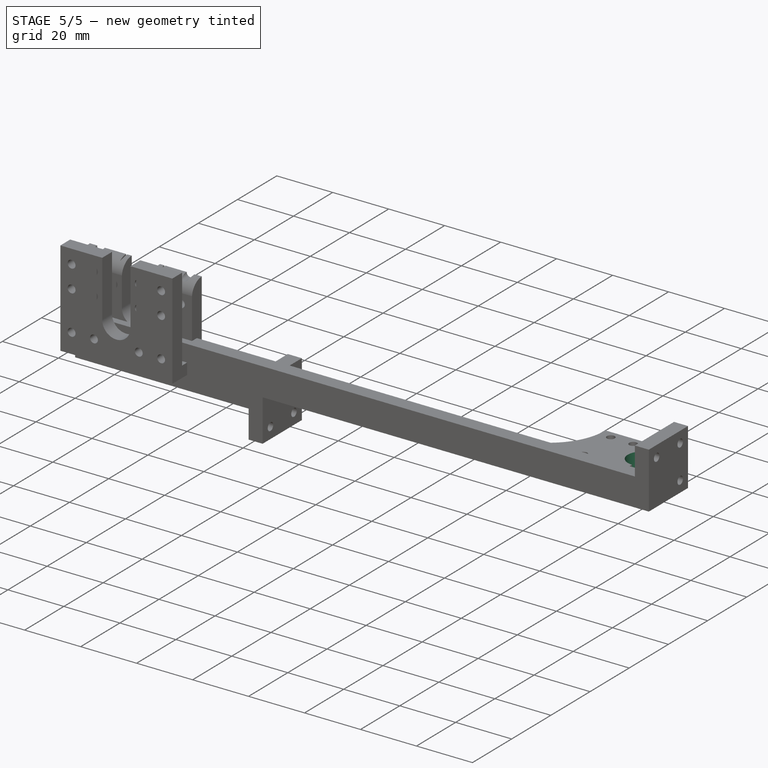
[diagram: stage 5 of 5 — iso view after this stage's code; geometry added in this stage tinted green]
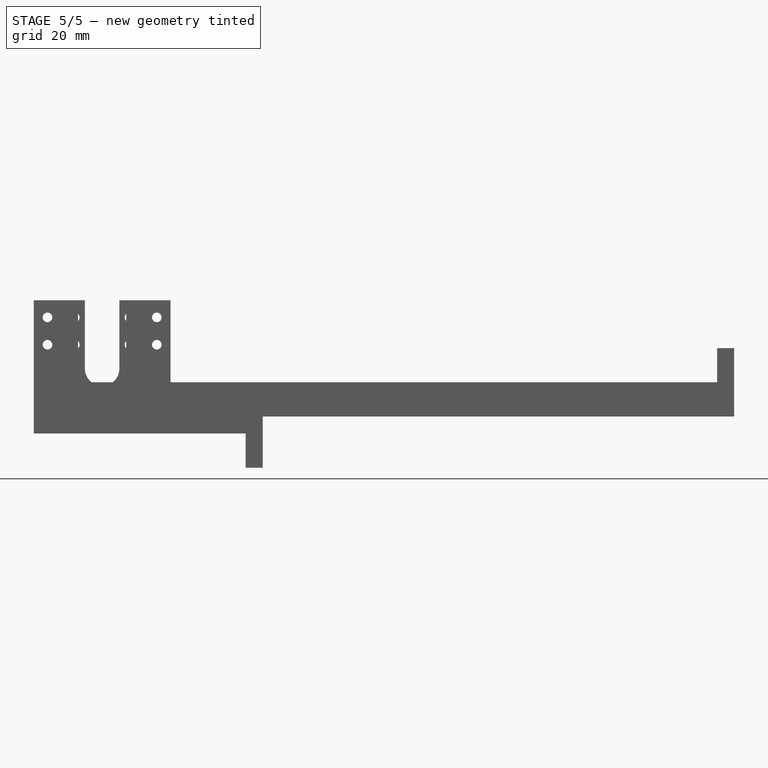
[diagram: stage 5 of 5 — front view after this stage's code; geometry added in this stage tinted green]
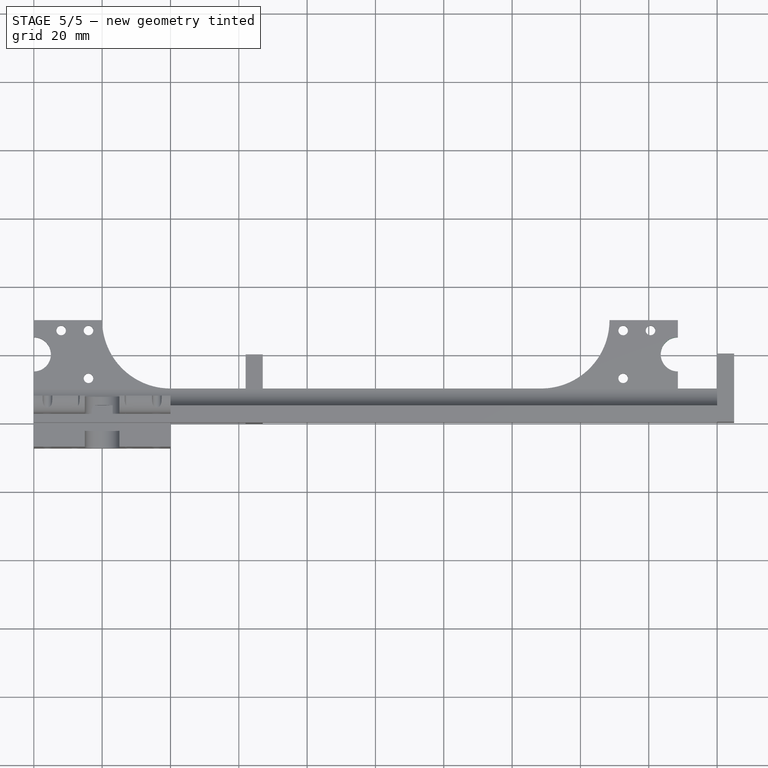
[diagram: stage 5 of 5 — top view after this stage's code; geometry added in this stage tinted green]
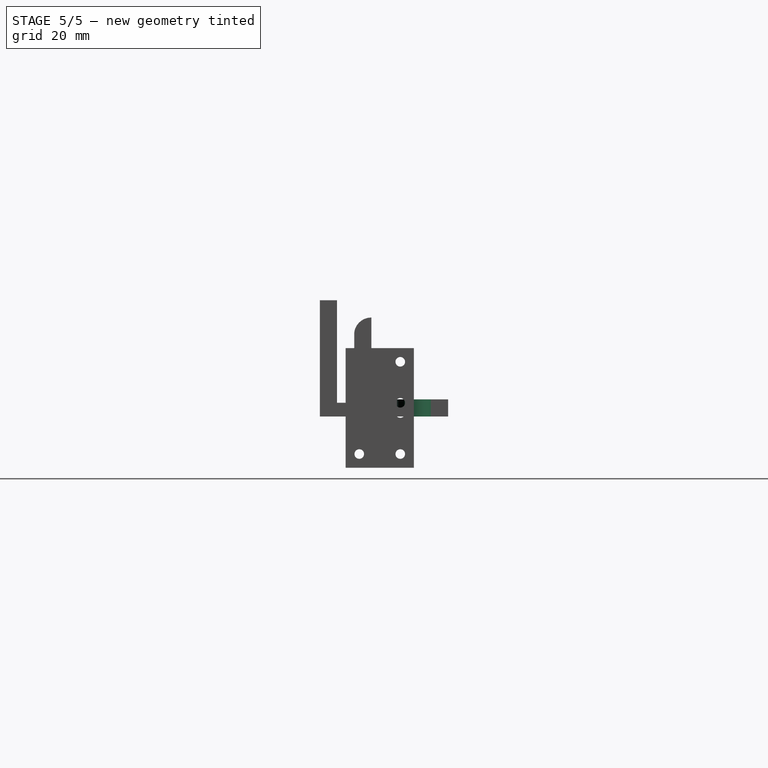
[diagram: stage 5 of 5 — right view after this stage's code; geometry added in this stage tinted green]
FEATURE [Spreadsheet::Sheet] Spreadsheet
  cells = A2=bigRodR; B2(bigRodR)=7; A3=smallRodR; B3(smallRodR)=5; A6=bottomHeight; B6(bottomHeight)==200 + 5; A7=width; B7(width)=10; A8=pad; B8(pad)=5; A10=RodSupportWidth; B10(RodSupportWidth)=20; A13=m3ScrewRTight; B13(m3ScrewRTight)=1.4; A15=footerSize; B15(footerSize)=20; A19=midHeight; B19(midHeight)==bottomHeight - 20 + bigRodR / 2; C19=was-30, change to -20; D19=178.5 to 188; A21=screwHoleToEdge; B21(screwHoleToEdge)=3; A22=screwHoleToEdgeX; B22(screwHoleToEdgeX)=5; A23=screwHoleToEdgeXBigHoleSide; B23(screwHoleToEdgeXBigHoleSide)==screwHoleToEdgeX + 3; A24=screwInBetween; B24(screwInBetween)==screwHoleToEdgeX * 2 - 2; A26=topHeight; B26(topHeight)==65 + 2; A31=totalRodSideSupportWidth; B31(totalRodSideSupportWidth)==width + RodSupportWidth; A32=toBaseScrewHole; B32(toBaseScrewHole)==width / 2; A33=toSecondScrewHole; B33(toSecondScrewHole)==width + screwHoleToEdge; A34=toLastScrewHole; B34(toLastScrewHole)==width + RodSupportWidth - screwHoleToEdge; A36=onLongSupportHoleBetween; B36(onLongSupportHoleBetween)=20; A41=connectorAdj; B41(connectorAdj)=0.05; A42=connectorWidth; B42(connectorWidth)==pad + connectorAdj; A43=connectorBackDepth; B43(connectorBackDepth)=4; A45=connectorInnerDepth; B45(connectorInnerDepth)==RodSupportWidth + width; A46=connectorTotalDepth; B46(connectorTotalDepth)==connectorInnerDepth + connectorBackDepth
FEATURE [Sketcher::SketchObject] Sketch
  FullyConstrained = true
  MapMode = 5
  Support = -> [XY_Plane]
  expr: Constraints[12] = Spreadsheet.RodSupportWidth
  expr: Constraints[17] = Spreadsheet.smallRodR
  expr: Constraints[18] = Spreadsheet.RodSupportWidth / 2
  expr: Constraints[20] = Spreadsheet.RodSupportWidth + Spreadsheet.width
  expr: Constraints[23] = Spreadsheet.RodSupportWidth
  expr: Constraints[8] = Spreadsheet.bottomHeight
  expr: Constraints[9] = Spreadsheet.width
  sketch-geometry (8):
    g0: LineSegment StartX=40 StartY=10 StartZ=0 EndX=205 EndY=10 EndZ=0
    g1: LineSegment StartX=205 StartY=10 StartZ=0 EndX=205 EndY=0 EndZ=0
    g2: LineSegment StartX=205 StartY=0 StartZ=0 EndX=0 EndY=0 EndZ=0
    g3: LineSegment StartX=3.5e-15 StartY=0 StartZ=0 EndX=3.5e-15 EndY=15 EndZ=0
    g4: LineSegment StartX=20 StartY=30 StartZ=0 EndX=7.1e-15 EndY=30 EndZ=0
    g5: ArcOfCircle CenterX=0 CenterY=20 CenterZ=0 NormalX=0 NormalY=0 NormalZ=1 AngleXU=0 Radius=5 StartAngle=4.71239 EndAngle=7.85398
    g6: LineSegment StartX=7.1e-15 StartY=25 StartZ=0 EndX=7.1e-15 EndY=30 EndZ=0
    g7: ArcOfCircle CenterX=40 CenterY=30 CenterZ=0 NormalX=0 NormalY=0 NormalZ=1 AngleXU=0 Radius=20 StartAngle=3.14159 EndAngle=4.71239
  constraints (24):
    c: Coincident(g0,g1)
    c: Coincident(g1,g2)
    c: Coincident(g2,g3)
    c: Horizontal(g0)
    c: Horizontal(g2)
    c: Vertical(g1)
    c: Vertical(g3)
    c: PointOnObject(g6,g-2)
    c: DistanceX(g2,g2) = 205
    c: DistanceY(g1,g1) = 10
    c: Horizontal(g4)
    c: Coincident(g6,g4)
    c: DistanceX(g4,g4) = 20
    c: PointOnObject(g5,g3)
    c: Coincident(g3,g5)
    c: Coincident(g6,g5)
    c: Vertical(g6)
    c: Radius(g5) = 5
    c: DistanceY(g5,g4) = 10
    c: Coincident(g2,g-1)
    c: DistanceY(g2,g7) = 30
    c: Tangent(g7,g0) = -1.5708
    c: Coincident(g7,g4)
    c: DistanceY(g0,g4) = 20
FEATURE [PartDesign::Pad] Pad
  Direction = (0,0,1)
  Length = 5
  Length2 = 10
  Profile = -> Sketch
  ReferenceAxis = -> Sketch [N_Axis]
  Type = 0
  expr: Length = Spreadsheet.pad
FEATURE [Sketcher::SketchObject] Sketch001
  AttachmentOffset = pos=(0,0,5) rot=(0,0,1;0rad)
  FullyConstrained = true
  MapMode = 5
  Placement = pos=(0,0,5) rot=(0,0,1;0rad)
  Support = -> [XY_Plane]
  expr: .AttachmentOffset.Base.z = Spreadsheet.pad
  expr: Constraints[10] = Spreadsheet.bottomHeight
  expr: Constraints[9] = Spreadsheet.pad
  sketch-geometry (4):
    g0: LineSegment StartX=0 StartY=0 StartZ=0 EndX=205 EndY=0 EndZ=0
    g1: LineSegment StartX=205 StartY=0 StartZ=0 EndX=205 EndY=5 EndZ=0
    g2: LineSegment StartX=205 StartY=5 StartZ=0 EndX=0 EndY=5 EndZ=0
    g3: LineSegment StartX=0 StartY=5 StartZ=0 EndX=0 EndY=0 EndZ=0
  constraints (11):
    c: Coincident(g0,g1)
    c: Coincident(g1,g2)
    c: Coincident(g2,g3)
    c: Coincident(g3,g0)
    c: Horizontal(g0)
    c: Horizontal(g2)
    c: Vertical(g1)
    c: Vertical(g3)
    c: Coincident(g0,g-1)
    c: DistanceY(g1,g1) = 5
    c: DistanceX(g2,g2) = 205
FEATURE [PartDesign::Pad] Pad001
  BaseFeature = -> Pad
  Direction = (0,0,1)
  Length = 5
  Length2 = 10
  Profile = -> Sketch001
  ReferenceAxis = -> Sketch001 [N_Axis]
  Type = 0
  expr: Length = Spreadsheet.pad
FEATURE [Sketcher::SketchObject] Sketch002
  FullyConstrained = true
  MapMode = 5
  Placement = pos=(0,0,0) rot=(0.57735,0.57735,0.57735;2.0944rad)
  Support = -> [YZ_Plane]
  expr: Constraints[5] = Spreadsheet.pad
  expr: Constraints[6] = Spreadsheet.pad
  expr: Constraints[7] = Spreadsheet.pad
  sketch-geometry (3):
    g0: LineSegment StartX=5 StartY=5 StartZ=0 EndX=10 EndY=5 EndZ=0
    g1: LineSegment StartX=5 StartY=10 StartZ=0 EndX=5 EndY=5 EndZ=0
    g2: ArcOfCircle CenterX=10 CenterY=10 CenterZ=0 NormalX=0 NormalY=0 NormalZ=1 AngleXU=0 Radius=5 StartAngle=3.14159 EndAngle=4.71239
  constraints (8):
    c: Coincident(g1,g0)
    c: Horizontal(g0)
    c: Vertical(g1)
    c: Tangent(g2,g1) = -1.5708
    c: Tangent(g0,g2) = -1.5708
    c: DistanceY(g-1,g0) = 5
    c: DistanceX(g-1,g0) = 5
    c: Radius(g2) = 5
FEATURE [PartDesign::Pad] Pad002
  BaseFeature = -> Pad001
  Direction = (1,-2e-16,3e-16)
  Length = 205
  Length2 = 10
  Profile = -> Sketch002
  ReferenceAxis = -> Sketch002 [N_Axis]
  Type = 0
  expr: Length = Spreadsheet.bottomHeight
FEATURE [Sketcher::SketchObject] Sketch003  label="Sketch003_BaseShape"
  FullyConstrained = false
  MapMode = 5
  Support = -> [XY_Plane]
  expr: Constraints[10] = Spreadsheet.width
  expr: Constraints[20] = Spreadsheet.RodSupportWidth
  expr: Constraints[21] = Spreadsheet.RodSupportWidth
  expr: Constraints[31] = Spreadsheet.RodSupportWidth
  expr: Constraints[32] = Spreadsheet.RodSupportWidth
  expr: Constraints[34] = Spreadsheet.bigRodR
  expr: Constraints[36] = Spreadsheet.smallRodR
  expr: Constraints[37] = Spreadsheet.RodSupportWidth / 2
  expr: Constraints[46] = Spreadsheet.screwHoleToEdgeX
  expr: Constraints[49] = Spreadsheet.width / 2
  expr: Constraints[9] = Spreadsheet.bottomHeight
  sketch-geometry (26):
    g0: LineSegment StartX=0 StartY=0 StartZ=0 EndX=205 EndY=0 EndZ=0
    g1: LineSegment StartX=205 StartY=0 StartZ=0 EndX=205 EndY=10 EndZ=0
    g2: LineSegment StartX=205 StartY=10 StartZ=0 EndX=0 EndY=10 EndZ=0
    g3: LineSegment StartX=0 StartY=10 StartZ=0 EndX=0 EndY=0 EndZ=0
    g4: LineSegment StartX=0 StartY=10 StartZ=0 EndX=20 EndY=10 EndZ=0
    g5: LineSegment StartX=20 StartY=10 StartZ=0 EndX=20 EndY=30 EndZ=0
    g6: LineSegment StartX=20 StartY=30 StartZ=0 EndX=0 EndY=30 EndZ=0
    g7: LineSegment StartX=0 StartY=30 StartZ=0 EndX=0 EndY=10 EndZ=0
    g8: LineSegment StartX=20 StartY=10 StartZ=0 EndX=40 EndY=10 EndZ=0
    g9: LineSegment StartX=40 StartY=10 StartZ=0 EndX=40 EndY=30 EndZ=0
    g10: LineSegment StartX=40 StartY=30 StartZ=0 EndX=20 EndY=30 EndZ=0
    g11: LineSegment StartX=20 StartY=30 StartZ=0 EndX=20 EndY=10 EndZ=0
    g12: Circle CenterX=0 CenterY=20 CenterZ=0 NormalX=0 NormalY=0 NormalZ=1 AngleXU=0 Radius=7
    g13: Circle CenterX=0 CenterY=20 CenterZ=0 NormalX=0 NormalY=0 NormalZ=1 AngleXU=0 Radius=5
    g14: LineSegment StartX=0 StartY=20 StartZ=0 EndX=40 EndY=20 EndZ=0
    g15: LineSegment StartX=5 StartY=28.0263 StartZ=0 EndX=0 EndY=28.0263 EndZ=0
    g16: LineSegment StartX=5 StartY=25 StartZ=0 EndX=5 EndY=30 EndZ=0
    g17: LineSegment StartX=5 StartY=25 StartZ=0 EndX=5 EndY=15 EndZ=0
    g18: LineSegment StartX=5 StartY=15 StartZ=0 EndX=5 EndY=5 EndZ=0
    g19: LineSegment StartX=5 StartY=5 StartZ=0 EndX=200 EndY=5 EndZ=0
    g20: LineSegment StartX=200 StartY=5 StartZ=0 EndX=205 EndY=5 EndZ=0
    g21: GeomPoint X=102.5 Y=5 Z=0
    g22: GeomPoint X=53.75 Y=5 Z=0
    g23: GeomPoint X=151.25 Y=5 Z=0
    g24: LineSegment StartX=53.75 StartY=5 StartZ=0 EndX=53.75 EndY=0 EndZ=0
    g25: LineSegment StartX=151.25 StartY=5 StartZ=0 EndX=151.25 EndY=0 EndZ=0
  constraints (65):
    c: Coincident(g0,g1)
    c: Coincident(g1,g2)
    c: Coincident(g2,g3)
    c: Coincident(g3,g0)
    c: Horizontal(g0)
    c: Horizontal(g2)
    c: Vertical(g1)
    c: Vertical(g3)
    c: Coincident(g0,g-1)
    c: DistanceX(g2,g2) = 205
    c: DistanceY(g1,g1) = 10
    c: Coincident(g4,g5)
    c: Coincident(g5,g6)
    c: Coincident(g6,g7)
    c: Coincident(g7,g4)
    c: Horizontal(g4)
    c: Horizontal(g6)
    c: Vertical(g5)
    c: Vertical(g7)
    c: Coincident(g4,g2)
    c: DistanceX(g6,g6) = 20
    c: DistanceY(g5,g5) = 20
    c: Coincident(g8,g9)
    c: Coincident(g9,g10)
    c: Coincident(g10,g11)
    c: Coincident(g11,g8)
    c: Horizontal(g8)
    c: Horizontal(g10)
    c: Vertical(g9)
    c: Vertical(g11)
    c: Coincident(g8,g4)
    c: DistanceX(g10,g10) = 20
    c: DistanceY(g9,g9) = 20
    c: PointOnObject(g12,g7)
    c: Radius(g12) = 7
    c: Coincident(g13,g12)
    c: Radius(g13) = 5
    c: DistanceY(g12,g6) = 10
    c: Coincident(g14,g12)
    c: PointOnObject(g14,g9)
    c: Horizontal(g14)
    c: PointOnObject(g15,g7)
    c: Horizontal(g15)
    c: PointOnObject(g16,g6)
    c: Vertical(g16)
    c: Equal(g16,g15)
    c: DistanceX(g15,g15) = 5
    c: Coincident(g18,g17)
    c: Vertical(g18)
    c: DistanceY(g0,g18) = 5
    c: Coincident(g19,g18)
    c: Horizontal(g19)
    c: Coincident(g20,g19)
    c: PointOnObject(g20,g1)
    c: Horizontal(g20)
    c: Equal(g20,g15)
    c: Symmetric(g18,g19,g21)
    c: Symmetric(g18,g21,g22)
    c: Symmetric(g21,g19,g23)
    c: Coincident(g24,g22)
    c: PointOnObject(g24,g0)
    c: Vertical(g24)
    c: Coincident(g25,g23)
    c: PointOnObject(g25,g0)
    c: Vertical(g25)
FEATURE [Sketcher::SketchObject] Sketch004
  FullyConstrained = true
  MapMode = 5
  Support = -> [XY_Plane]
  expr: Constraints[14] = Spreadsheet.totalRodSideSupportWidth
  expr: Constraints[16] = Spreadsheet.m3ScrewRTight
  expr: Constraints[18] = Spreadsheet.toLastScrewHole
  expr: Constraints[19] = Spreadsheet.toSecondScrewHole
  expr: Constraints[21] = Spreadsheet.screwInBetween
  expr: Constraints[37] = Spreadsheet.onLongSupportHoleBetween
  expr: Constraints[38] = Spreadsheet.onLongSupportHoleBetween
  expr: Constraints[3] = Spreadsheet.toBaseScrewHole
  expr: Constraints[41] = Spreadsheet.bottomHeight
  expr: Constraints[46] = Spreadsheet.onLongSupportHoleBetween
  expr: Constraints[47] = Spreadsheet.onLongSupportHoleBetween
  expr: Constraints[4] = Spreadsheet.screwHoleToEdgeXBigHoleSide
  sketch-geometry (20):
    g0: Circle CenterX=8 CenterY=27 CenterZ=0 NormalX=0 NormalY=0 NormalZ=1 AngleXU=0 Radius=1.4
    g1: Circle CenterX=8 CenterY=5 CenterZ=0 NormalX=0 NormalY=0 NormalZ=1 AngleXU=0 Radius=1.4
    g2: LineSegment StartX=8 StartY=27 StartZ=0 EndX=8 EndY=5 EndZ=0
    g3: LineSegment StartX=8 StartY=27 StartZ=0 EndX=16 EndY=27 EndZ=0
    g4: LineSegment StartX=16 StartY=27 StartZ=0 EndX=16 EndY=13 EndZ=0
    g5: LineSegment StartX=16 StartY=13 StartZ=0 EndX=8 EndY=13 EndZ=0
    g6: LineSegment StartX=0 StartY=0 StartZ=0 EndX=0 EndY=30 EndZ=0
    g7: Circle CenterX=8 CenterY=13 CenterZ=0 NormalX=0 NormalY=0 NormalZ=1 AngleXU=0 Radius=1.4
    g8: Circle CenterX=16 CenterY=27 CenterZ=0 NormalX=0 NormalY=0 NormalZ=1 AngleXU=0 Radius=1.4
    g9: Circle CenterX=16 CenterY=13 CenterZ=0 NormalX=0 NormalY=0 NormalZ=1 AngleXU=0 Radius=1.4
    g10: LineSegment StartX=16 StartY=13 StartZ=0 EndX=16 EndY=5 EndZ=0
    g11: LineSegment StartX=8 StartY=5 StartZ=0 EndX=16 EndY=5 EndZ=0
    g12: Circle CenterX=16 CenterY=5 CenterZ=0 NormalX=0 NormalY=0 NormalZ=1 AngleXU=0 Radius=1.4
    g13: LineSegment StartX=16 StartY=5 StartZ=0 EndX=36 EndY=5 EndZ=0
    g14: LineSegment StartX=36 StartY=5 StartZ=0 EndX=56 EndY=5 EndZ=0
    g15: LineSegment StartX=56 StartY=5 StartZ=0 EndX=205 EndY=5 EndZ=0
    g16: Circle CenterX=36 CenterY=5 CenterZ=0 NormalX=0 NormalY=0 NormalZ=1 AngleXU=0 Radius=1.4
    g17: Circle CenterX=56 CenterY=5 CenterZ=0 NormalX=0 NormalY=0 NormalZ=1 AngleXU=0 Radius=1.4
    g18: Circle CenterX=185 CenterY=5 CenterZ=0 NormalX=0 NormalY=0 NormalZ=1 AngleXU=0 Radius=1.4
    g19: Circle CenterX=165 CenterY=5 CenterZ=0 NormalX=0 NormalY=0 NormalZ=1 AngleXU=0 Radius=1.4
  constraints (52):
    c: Coincident(g2,g0)
    c: Coincident(g2,g1)
    c: Vertical(g2)
    c: DistanceY(g-1,g1) = 5
    c: DistanceX(g-1,g0) = 8
    c: Coincident(g3,g0)
    c: Horizontal(g3)
    c: Coincident(g4,g3)
    c: Vertical(g4)
    c: Coincident(g5,g4)
    c: PointOnObject(g5,g2)
    c: Horizontal(g5)
    c: Coincident(g6,g-1)
    c: PointOnObject(g6,g-2)
    c: DistanceY(g6,g6) = 30
    c: Equal(g1,g0)
    c: Radius(g0) = 1.4
    c: Equal(g7,g0)
    c: DistanceY(g6,g0) = 27
    c: DistanceY(g6,g7) = 13
    c: Coincident(g5,g7)
    c: DistanceX(g3,g3) = 8
    c: Coincident(g8,g3)
    c: Coincident(g9,g4)
    c: Equal(g8,g0)
    c: Equal(g9,g0)
    c: Coincident(g10,g9)
    c: Vertical(g10)
    c: Coincident(g11,g1)
    c: Horizontal(g11)
    c: Coincident(g10,g11)
    c: Coincident(g12,g10)
    c: Equal(g12,g7)
    c: Coincident(g13,g12)
    c: Horizontal(g13)
    c: Coincident(g14,g13)
    c: Horizontal(g14)
    c: DistanceX(g13,g13) = 20
    c: DistanceX(g14,g14) = 20
    c: Coincident(g15,g14)
    c: Horizontal(g15)
    c: DistanceX(g6,g15) = 205
    c: Coincident(g16,g13)
    c: Coincident(g17,g14)
    c: PointOnObject(g18,g15)
    c: PointOnObject(g19,g15)
    c: DistanceX(g18,g15) = 20
    c: DistanceX(g19,g18) = 20
    c: Equal(g16,g0)
    c: Equal(g17,g0)
    c: Equal(g19,g0)
    c: Equal(g18,g0)
FEATURE [PartDesign::Pocket] Pocket
  BaseFeature = -> Pad002
  Direction = (0,0,-1)
  Length = 5
  Length2 = 5
  Midplane = true
  Profile = -> Sketch004
  ReferenceAxis = -> Sketch004 [N_Axis]
  Type = 1
FEATURE [Sketcher::SketchObject] Sketch005
  AttachmentOffset = pos=(0,0,205) rot=(0,0,1;0rad)
  FullyConstrained = false
  MapMode = 5
  Placement = pos=(205,-4.55e-14,4.55e-14) rot=(0.57735,0.57735,0.57735;2.0944rad)
  Support = -> [YZ_Plane]
  expr: .AttachmentOffset.Base.z = Spreadsheet.bottomHeight
  expr: Constraints[57] = Spreadsheet.m3ScrewRTight
  expr: Constraints[9] = Spreadsheet.footerSize
  sketch-geometry (25):
    g0: LineSegment StartX=0 StartY=0 StartZ=0 EndX=20 EndY=0 EndZ=0
    g1: LineSegment StartX=20 StartY=0 StartZ=0 EndX=20 EndY=20 EndZ=0
    g2: LineSegment StartX=20 StartY=20 StartZ=0 EndX=0 EndY=20 EndZ=0
    g3: LineSegment StartX=0 StartY=20 StartZ=0 EndX=0 EndY=0 EndZ=0
    g4: LineSegment StartX=8 StartY=12 StartZ=0 EndX=12 EndY=12 EndZ=0
    g5: LineSegment StartX=12 StartY=12 StartZ=0 EndX=12 EndY=8 EndZ=0
    g6: LineSegment StartX=12 StartY=8 StartZ=0 EndX=8 EndY=8 EndZ=0
    g7: LineSegment StartX=8 StartY=8 StartZ=0 EndX=8 EndY=12 EndZ=0
    g8: LineSegment StartX=8 StartY=12 StartZ=0 EndX=8 EndY=20 EndZ=0
    g9: LineSegment StartX=12 StartY=8 StartZ=0 EndX=20 EndY=8 EndZ=0
    g10: LineSegment StartX=8 StartY=8 StartZ=0 EndX=0 EndY=8 EndZ=0
    g11: LineSegment StartX=8 StartY=8 StartZ=0 EndX=8 EndY=0 EndZ=0
    g12: LineSegment StartX=8 StartY=16 StartZ=0 EndX=0 EndY=16 EndZ=0
    g13: LineSegment StartX=12 StartY=12 StartZ=0 EndX=12 EndY=20 EndZ=0
    g14: LineSegment StartX=12 StartY=16 StartZ=0 EndX=20 EndY=16 EndZ=0
    g15: LineSegment StartX=8 StartY=16 StartZ=0 EndX=12 EndY=16 EndZ=0
    g16: LineSegment StartX=16 StartY=8 StartZ=0 EndX=16 EndY=20 EndZ=0
    g17: LineSegment StartX=12 StartY=10 StartZ=0 EndX=20 EndY=10 EndZ=0
    g18: LineSegment StartX=4 StartY=16 StartZ=0 EndX=4 EndY=20 EndZ=0
    g19: Circle CenterX=4 CenterY=16 CenterZ=0 NormalX=0 NormalY=0 NormalZ=1 AngleXU=0 Radius=1.4
    g20: Circle CenterX=16 CenterY=16 CenterZ=0 NormalX=0 NormalY=0 NormalZ=1 AngleXU=0 Radius=1.4
    g21: LineSegment StartX=16 StartY=8 StartZ=0 EndX=16 EndY=0 EndZ=0
    g22: LineSegment StartX=20 StartY=4 StartZ=0 EndX=16 EndY=4 EndZ=0
    g23: Circle CenterX=16 CenterY=4 CenterZ=0 NormalX=0 NormalY=0 NormalZ=1 AngleXU=0 Radius=1.4
    g24: LineSegment StartX=9.84462 StartY=12 StartZ=0 EndX=9.84462 EndY=16 EndZ=0
  constraints (72):
    c: Coincident(g0,g1)
    c: Coincident(g1,g2)
    c: Coincident(g2,g3)
    c: Coincident(g3,g0)
    c: Horizontal(g0)
    c: Horizontal(g2)
    c: Vertical(g1)
    c: Vertical(g3)
    c: Coincident(g0,g-1)
    c: DistanceX(g2,g2) = 20
    c: Equal(g2,g1)
    c: Coincident(g4,g5)
    c: Coincident(g5,g6)
    c: Coincident(g6,g7)
    c: Coincident(g7,g4)
    c: Horizontal(g4)
    c: Horizontal(g6)
    c: Vertical(g5)
    c: Vertical(g7)
    c: Coincident(g8,g4)
    c: PointOnObject(g8,g2)
    c: Vertical(g8)
    c: Coincident(g9,g5)
    c: PointOnObject(g9,g1)
    c: Horizontal(g9)
    c: Equal(g4,g7)
    c: Coincident(g10,g6)
    c: PointOnObject(g10,g3)
    c: Horizontal(g10)
    c: Coincident(g11,g6)
    c: PointOnObject(g11,g0)
    c: Vertical(g11)
    c: Equal(g8,g10)
    c: PointOnObject(g12,g3)
    c: Horizontal(g12)
    c: Symmetric(g8,g4,g12)
    c: Coincident(g13,g4)
    c: PointOnObject(g13,g2)
    c: Vertical(g13)
    c: PointOnObject(g14,g13)
    c: PointOnObject(g14,g1)
    c: Horizontal(g14)
    c: Coincident(g15,g14)
    c: Horizontal(g15)
    c: PointOnObject(g16,g2)
    c: Vertical(g16)
    c: Symmetric(g5,g9,g16)
    c: PointOnObject(g17,g1)
    c: Horizontal(g17)
    c: Symmetric(g4,g5,g17)
    c: PointOnObject(g18,g2)
    c: Vertical(g18)
    c: Symmetric(g12,g12,g18)
    c: Coincident(g19,g18)
    c: PointOnObject(g20,g14)
    c: PointOnObject(g20,g16)
    c: Equal(g19,g20)
    c: Radius(g19) = 1.4
    c: Coincident(g12,g15)
    c: Coincident(g21,g16)
    c: PointOnObject(g21,g0)
    c: Vertical(g21)
    c: PointOnObject(g22,g1)
    c: Horizontal(g22)
    c: Symmetric(g16,g21,g22)
    c: Coincident(g23,g22)
    c: Equal(g20,g23)
    c: Equal(g11,g10)
    c: PointOnObject(g24,g4)
    c: PointOnObject(g24,g15)
    c: Vertical(g24)
    c: Equal(g24,g4)
FEATURE [PartDesign::Pad] Pad003
  BaseFeature = -> Pocket
  Direction = (1,-2e-16,3e-16)
  Length = 5
  Length2 = 10
  Profile = -> Sketch005
  ReferenceAxis = -> Sketch005 [N_Axis]
  Reversed = true
  Type = 0
  expr: Length = Spreadsheet.pad
FEATURE [Sketcher::SketchObject] Sketch010
  FullyConstrained = true
  MapMode = 5
  Support = -> [XY_Plane001]
  expr: Constraints[52] = Spreadsheet.totalRodSideSupportWidth
  expr: Constraints[53] = Spreadsheet.width / 2
  expr: Constraints[54] = Spreadsheet.screwHoleToEdgeXBigHoleSide
  expr: Constraints[55] = Spreadsheet.toSecondScrewHole
  expr: Constraints[56] = Spreadsheet.m3ScrewRTight
  expr: Constraints[58] = Spreadsheet.screwInBetween
  expr: Constraints[62] = Spreadsheet.midHeight
  expr: Constraints[63] = Spreadsheet.screwHoleToEdgeXBigHoleSide
  expr: Constraints[66] = Spreadsheet.screwInBetween
  expr: Constraints[67] = Spreadsheet.width + Spreadsheet.RodSupportWidth / 2
  expr: Constraints[68] = Spreadsheet.bigRodR
  expr: Constraints[69] = Spreadsheet.smallRodR
  expr: Constraints[84] = Spreadsheet.screwInBetween
  expr: Constraints[85] = Spreadsheet.onLongSupportHoleBetween
  expr: Constraints[89] = Spreadsheet.onLongSupportHoleBetween
  expr: Constraints[90] = Spreadsheet.toLastScrewHole
  sketch-geometry (36):
    g0: Circle CenterX=8 CenterY=5 CenterZ=0 NormalX=0 NormalY=0 NormalZ=1 AngleXU=0 Radius=1.4
    g1: Circle CenterX=8 CenterY=13 CenterZ=0 NormalX=0 NormalY=0 NormalZ=1 AngleXU=0 Radius=1.4
    g2: Circle CenterX=0 CenterY=20 CenterZ=0 NormalX=0 NormalY=0 NormalZ=1 AngleXU=0 Radius=7
    g3: Circle CenterX=188.5 CenterY=20 CenterZ=0 NormalX=0 NormalY=0 NormalZ=1 AngleXU=0 Radius=5
    g4: Circle CenterX=172.5 CenterY=27 CenterZ=0 NormalX=0 NormalY=0 NormalZ=1 AngleXU=0 Radius=1.4
    g5: Circle CenterX=8 CenterY=27 CenterZ=0 NormalX=0 NormalY=0 NormalZ=1 AngleXU=0 Radius=1.4
    g6: Circle CenterX=16 CenterY=27 CenterZ=0 NormalX=0 NormalY=0 NormalZ=1 AngleXU=0 Radius=1.4
    g7: Circle CenterX=180.5 CenterY=5 CenterZ=0 NormalX=0 NormalY=0 NormalZ=1 AngleXU=0 Radius=1.4
    g8: Circle CenterX=180.5 CenterY=13 CenterZ=0 NormalX=0 NormalY=0 NormalZ=1 AngleXU=0 Radius=1.4
    g9: Circle CenterX=16 CenterY=13 CenterZ=0 NormalX=0 NormalY=0 NormalZ=1 AngleXU=0 Radius=1.4
    g10: LineSegment StartX=8 StartY=5 StartZ=0 EndX=180.5 EndY=5 EndZ=0
    g11: LineSegment StartX=8 StartY=5 StartZ=0 EndX=8 EndY=13 EndZ=0
    g12: LineSegment StartX=8 StartY=13 StartZ=0 EndX=16 EndY=13 EndZ=0
    g13: LineSegment StartX=16 StartY=13 StartZ=0 EndX=16 EndY=27 EndZ=0
    g14: LineSegment StartX=16 StartY=27 StartZ=0 EndX=8 EndY=27 EndZ=0
    g15: LineSegment StartX=8 StartY=27 StartZ=0 EndX=8 EndY=13 EndZ=0
    g16: LineSegment StartX=172.5 StartY=27 StartZ=0 EndX=180.5 EndY=27 EndZ=0
    g17: LineSegment StartX=180.5 StartY=27 StartZ=0 EndX=180.5 EndY=13 EndZ=0
    g18: LineSegment StartX=180.5 StartY=13 StartZ=0 EndX=172.5 EndY=13 EndZ=0
    g19: LineSegment StartX=172.5 StartY=13 StartZ=0 EndX=172.5 EndY=27 EndZ=0
    g20: LineSegment StartX=172.5 StartY=27 StartZ=0 EndX=16 EndY=27 EndZ=0
    g21: LineSegment StartX=16 StartY=13 StartZ=0 EndX=172.5 EndY=13 EndZ=0
    g22: LineSegment StartX=0 StartY=20 StartZ=0 EndX=0 EndY=0 EndZ=0
    g23: LineSegment StartX=188.5 StartY=20 StartZ=0 EndX=188.5 EndY=0 EndZ=0
    g24: LineSegment StartX=0 StartY=20 StartZ=0 EndX=188.5 EndY=20 EndZ=0
    g25: LineSegment StartX=0 StartY=20 StartZ=0 EndX=0 EndY=30 EndZ=0
    g26: LineSegment StartX=0 StartY=30 StartZ=0 EndX=8 EndY=30 EndZ=0
    g27: LineSegment StartX=8 StartY=30 StartZ=0 EndX=8 EndY=27 EndZ=0
    g28: LineSegment StartX=180.5 StartY=13 StartZ=0 EndX=180.5 EndY=5 EndZ=0
    g29: Circle CenterX=180.5 CenterY=27 CenterZ=0 NormalX=0 NormalY=0 NormalZ=1 AngleXU=0 Radius=1.4
    g30: Circle CenterX=172.5 CenterY=13 CenterZ=0 NormalX=0 NormalY=0 NormalZ=1 AngleXU=0 Radius=1.4
    g31: Circle CenterX=16 CenterY=5 CenterZ=0 NormalX=0 NormalY=0 NormalZ=1 AngleXU=0 Radius=1.4
    g32: Circle CenterX=36 CenterY=5 CenterZ=0 NormalX=0 NormalY=0 NormalZ=1 AngleXU=0 Radius=1.4
    g33: Circle CenterX=172.5 CenterY=5 CenterZ=0 NormalX=0 NormalY=0 NormalZ=1 AngleXU=0 Radius=1.4
    g34: Circle CenterX=152.5 CenterY=5 CenterZ=0 NormalX=0 NormalY=0 NormalZ=1 AngleXU=0 Radius=1.4
    g35: LineSegment StartX=172.5 StartY=13 StartZ=0 EndX=172.5 EndY=5 EndZ=0
  constraints (91):
    c: Equal(g0,g1)
    c: Equal(g4,g0)
    c: Equal(g5,g4)
    c: Equal(g6,g5)
    c: Equal(g6,g7)
    c: Equal(g9,g5)
    c: Coincident(g10,g0)
    c: Coincident(g10,g7)
    c: Horizontal(g10)
    c: Coincident(g11,g0)
    c: Coincident(g11,g1)
    c: Coincident(g12,g1)
    c: Coincident(g12,g9)
    c: Coincident(g13,g9)
    c: Coincident(g13,g6)
    c: Vertical(g13)
    c: Coincident(g14,g6)
    c: Coincident(g14,g5)
    c: Horizontal(g14)
    c: Coincident(g15,g5)
    c: Coincident(g15,g1)
    c: Vertical(g15)
    c: Coincident(g16,g4)
    c: Horizontal(g16)
    c: Coincident(g17,g8)
    c: Vertical(g17)
    c: Coincident(g18,g8)
    c: Horizontal(g18)
    c: Coincident(g19,g4)
    c: Vertical(g19)
    c: Coincident(g20,g4)
    c: Coincident(g20,g6)
    c: Horizontal(g20)
    c: Coincident(g21,g9)
    c: Horizontal(g21)
    c: Coincident(g22,g2)
    c: Coincident(g22,g-1)
    c: Vertical(g22)
    c: Coincident(g23,g3)
    c: PointOnObject(g23,g-1)
    c: Vertical(g23)
    c: Coincident(g24,g2)
    c: Coincident(g24,g3)
    c: Horizontal(g24)
    c: Horizontal(g12)
    c: Coincident(g25,g2)
    c: PointOnObject(g25,g-2)
    c: Coincident(g26,g25)
    c: Horizontal(g26)
    c: Coincident(g27,g26)
    c: Coincident(g27,g5)
    c: Vertical(g27)
    c: DistanceY(g22,g25) = 30
    c: DistanceY(g22,g0) = 5
    c: DistanceX(g22,g5) = 8
    c: DistanceY(g22,g1) = 13
    c: Radius(g5) = 1.4
    c: Vertical(g11)
    c: DistanceX(g14,g14) = 8
    c: Coincident(g28,g8)
    c: Coincident(g28,g7)
    c: Vertical(g28)
    c: DistanceX(g22,g23) = 188.5
    c: DistanceX(g7,g23) = 8
    c: Equal(g7,g8)
    c: Equal(g29,g8)
    c: DistanceX(g16,g16) = 8
    c: DistanceY(g22,g2) = 20
    c: Radius(g2) = 7
    c: Radius(g3) = 5
    c: Coincident(g18,g21)
    c: Coincident(g19,g18)
    c: Coincident(g16,g29)
    c: Coincident(g17,g29)
    c: Coincident(g30,g18)
    c: Equal(g8,g30)
    c: PointOnObject(g31,g10)
    c: PointOnObject(g32,g10)
    c: PointOnObject(g33,g10)
    c: PointOnObject(g34,g10)
    c: Equal(g31,g0)
    c: Equal(g32,g0)
    c: Equal(g34,g0)
    c: Equal(g33,g0)
    c: DistanceX(g0,g31) = 8
    c: DistanceX(g31,g32) = 20
    c: Coincident(g35,g30)
    c: Coincident(g35,g33)
    c: Vertical(g35)
    c: DistanceX(g34,g33) = 20
    c: DistanceY(g22,g5) = 27
FEATURE [PartDesign::Pocket] Pocket001
  BaseFeature = -> Pad006
  Direction = (0,0,-1)
  Length = 5
  Length2 = 5
  Midplane = true
  Profile = -> Sketch010
  ReferenceAxis = -> Sketch010 [N_Axis]
  Type = 1
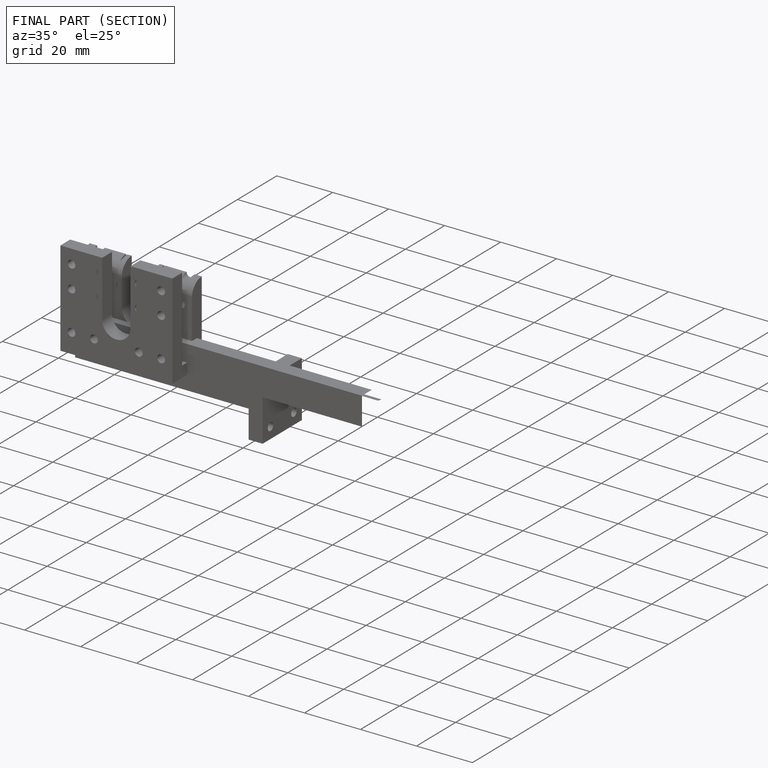
[diagram: finished part — half-section view (interior)]
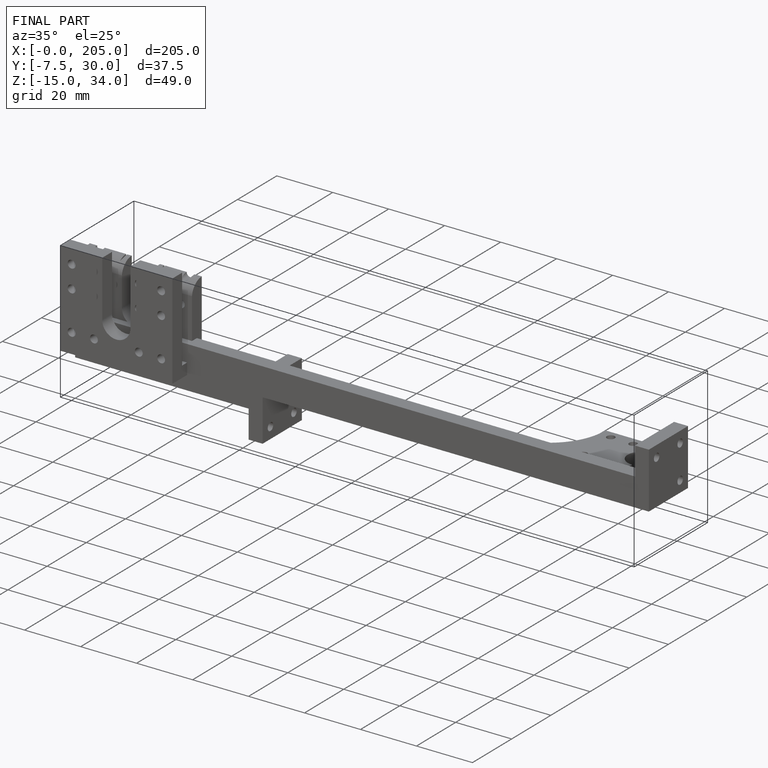
[diagram: finished part — iso view with bounding-box wireframe]
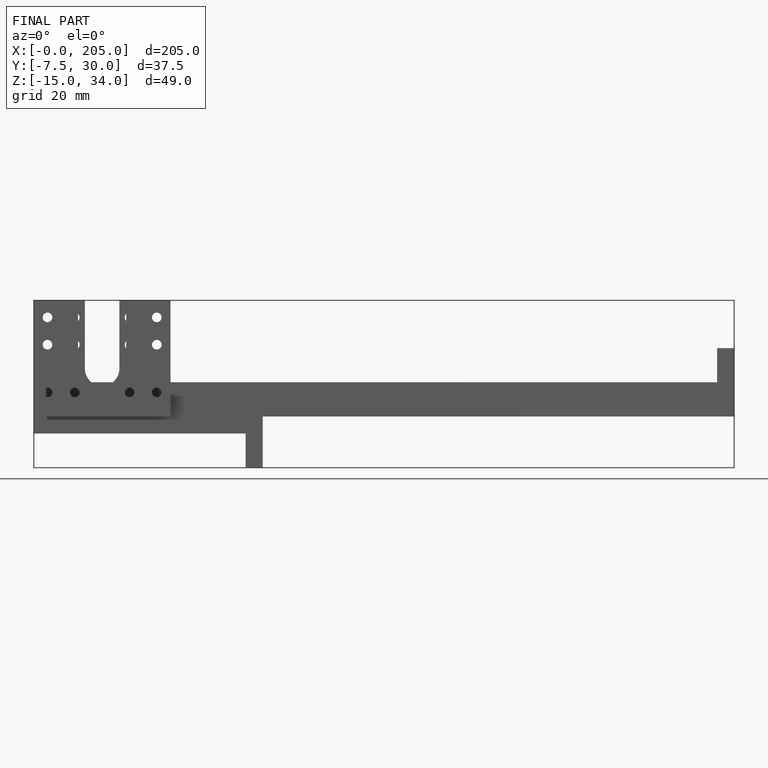
[diagram: finished part — front view with bounding-box wireframe]
